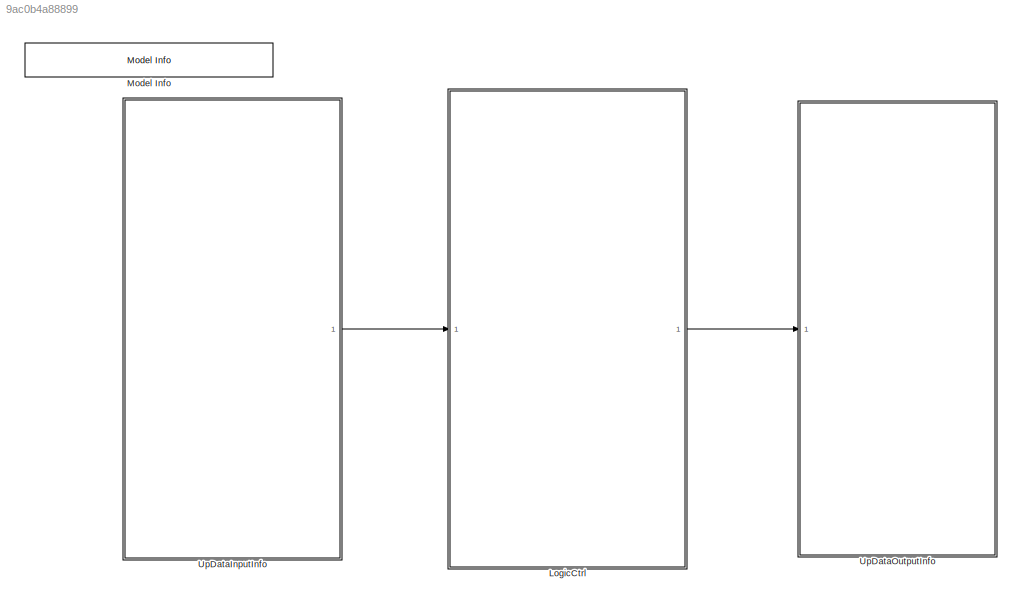
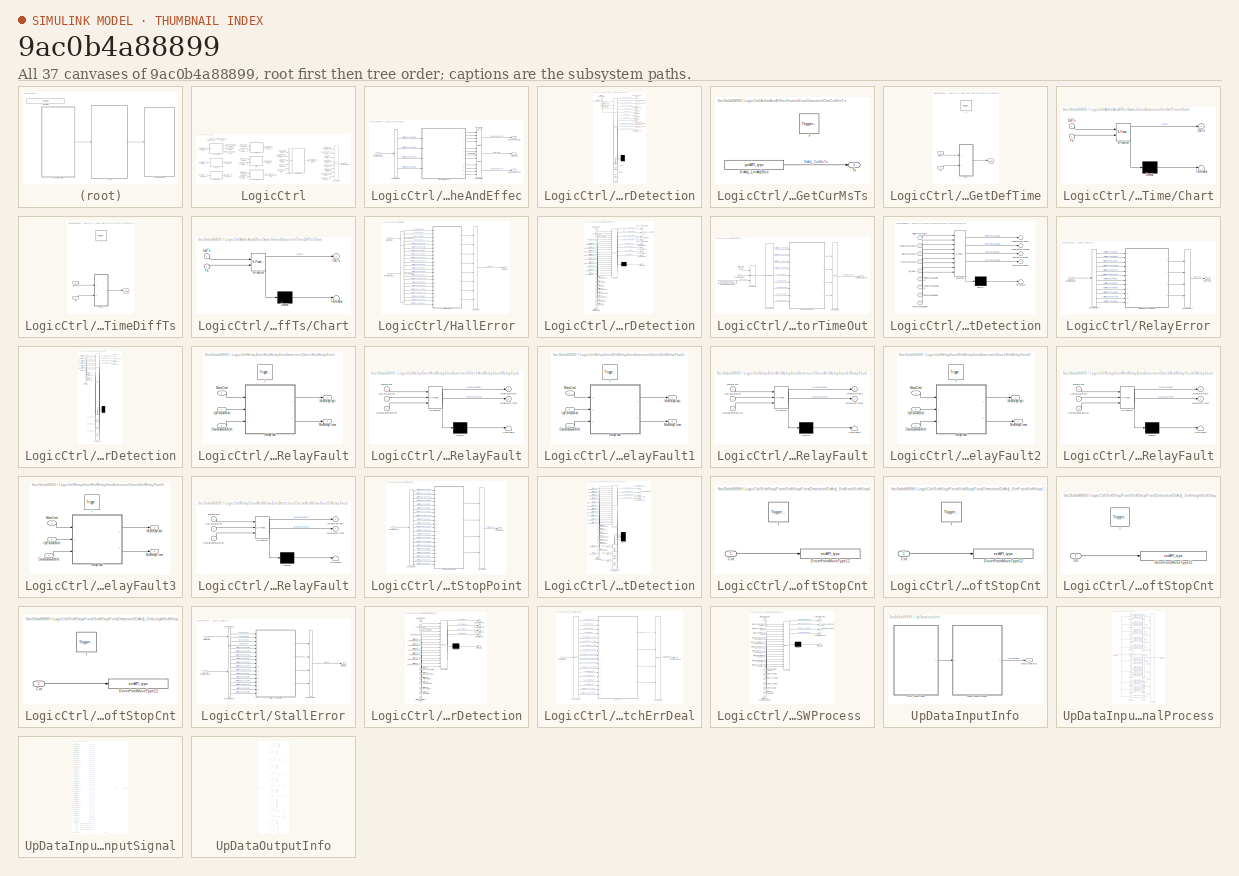
[diagram: thumbnail index - all 37 canvases of the model, root first then tree order]
MODEL slx_9ac0b4a88899
KIND model
BLOCK [SubSystem] LogicCtrl
  Ports = [1, 1]
  RequestExecContextInheritance = off
BLOCK [SubSystem] LogicCtrl/AdheAndEffec
  AttributesFormatString = %<Description>
  Description = 硬线开关粘连与有效检测
  Ports = [1, 3]
  RequestExecContextInheritance = off
BLOCK [BusCreator] LogicCtrl/AdheAndEffec/Bus Creator
  DisplayOption = bar
  InheritFromInputs = on
  Inputs = 4
  Ports = [4, 1]
BLOCK [BusCreator] LogicCtrl/AdheAndEffec/Bus Creator1
  DisplayOption = bar
  InheritFromInputs = on
  Inputs = 4
  Ports = [4, 1]
BLOCK [BusCreator] LogicCtrl/AdheAndEffec/Bus Creator2
  DisplayOption = bar
  InheritFromInputs = on
  Inputs = 4
  Ports = [4, 1]
BLOCK [BusSelector] LogicCtrl/AdheAndEffec/Bus Selector
  OutputAsBus = off
  OutputSignals = SwitchInCmd.MtrCtrlFault_PaHeightSwitch,SwitchInCmd.MtrCtrlFault_PaLengthSwitch,SwitchInCmd.MtrCtrlFault_PaBackSwitch,SwitchInCmd.MtrCtrlFault_PaFrontSwitch
  Ports = [1, 4]
BLOCK [Inport] LogicCtrl/AdheAndEffec/InputSignalBus
  IconDisplay = Port number
BLOCK [Outport] LogicCtrl/AdheAndEffec/SwAdhesionFault
  IconDisplay = Port number
BLOCK [Outport] LogicCtrl/AdheAndEffec/SwAdhesionType
  IconDisplay = Port number
  Port = 3
BLOCK [Outport] LogicCtrl/AdheAndEffec/SwitchCmd
  IconDisplay = Port number
  Port = 2
BLOCK [SubSystem] LogicCtrl/AdheAndEffec/SwitchErrorDetection
  ErrorFcn = Stateflow.Translate.translate
  PermitHierarchicalResolution = ExplicitOnly
  Ports = [4, 12]
  RequestExecContextInheritance = off
  SFBlockType = Chart
  TreatAsAtomicUnit = on
BLOCK [Demux] LogicCtrl/AdheAndEffec/SwitchErrorDetection/ Demux 
  Outputs = 3
  Ports = [1, 3]
BLOCK [S-Function] LogicCtrl/AdheAndEffec/SwitchErrorDetection/ SFunction 
  EnableBusSupport = on
  FunctionName = sf_sfun
  Parameters = CAL_ManualSwValid_90s,FALSE,TRUE
  PortCounts = [7 17]
  Ports = [7, 17]
  SFcnIsStateOwnerBlock = off
  SFunctionDeploymentMode = off
  Tag = Stateflow S-Function APPL_PaFaultDetection 8
BLOCK [Outport] LogicCtrl/AdheAndEffec/SwitchErrorDetection/BackSwAdhesionFault
  IconDisplay = Port number
  Port = 3
BLOCK [Outport] LogicCtrl/AdheAndEffec/SwitchErrorDetection/BackSwCmd
  IconDisplay = Port number
  Port = 7
BLOCK [Outport] LogicCtrl/AdheAndEffec/SwitchErrorDetection/BackSwDownAdhesionFault
  IconDisplay = Port number
  Port = 12
BLOCK [Outport] LogicCtrl/AdheAndEffec/SwitchErrorDetection/BackSwUpAdhesionFault
  IconDisplay = Port number
  Port = 11
BLOCK [Outport] LogicCtrl/AdheAndEffec/SwitchErrorDetection/FrontSwAdhesionFault
  IconDisplay = Port number
  Port = 4
BLOCK [Outport] LogicCtrl/AdheAndEffec/SwitchErrorDetection/FrontSwCmd
  IconDisplay = Port number
  Port = 8
BLOCK [SubSystem] LogicCtrl/AdheAndEffec/SwitchErrorDetection/GetCurMsTs
  Ports = [0, 1, 0, 1]
  PreDeleteFcn = Stateflow.SLINSF.SimulinkMan.removePreDeleteFcn
  RequestExecContextInheritance = off
  UndoDeleteFcn = Stateflow.SLINSF.SimulinkMan.restorePreDeleteFcn
BLOCK [Reference] LogicCtrl/AdheAndEffec/SwitchErrorDetection/GetCurMsTs/DrAdj_LenAdjSize  REF=DareLib/Dare/getAPI_type
  Ports = [0, 1]
  SourceBlock = DareLib/Dare/getAPI_type
  SourceProductName = Dare Library
  SourceType = Dare Custom
BLOCK [Outport] LogicCtrl/AdheAndEffec/SwitchErrorDetection/GetCurMsTs/Ts
  IconDisplay = Port number
BLOCK [TriggerPort] LogicCtrl/AdheAndEffec/SwitchErrorDetection/GetCurMsTs/f
  CopyFcn = Stateflow.SLINSF.SimulinkMan.removeBlockPreDeleteFcn
  Ports = []
  PreDeleteFcn = Stateflow.SLINSF.SimulinkMan.unsafePredeleteFcn
  StatesWhenEnabling = held
  TriggerType = function-call
  VariantControl = (inherit)
BLOCK [SubSystem] LogicCtrl/AdheAndEffec/SwitchErrorDetection/GetDefTime
  Ports = [2, 1, 0, 1]
  PreDeleteFcn = Stateflow.SLINSF.SimulinkMan.removePreDeleteFcn
  RequestExecContextInheritance = off
  UndoDeleteFcn = Stateflow.SLINSF.SimulinkMan.restorePreDeleteFcn
BLOCK [SubSystem] LogicCtrl/AdheAndEffec/SwitchErrorDetection/GetDefTime/Chart
  ErrorFcn = Stateflow.Translate.translate
  PermitHierarchicalResolution = ExplicitOnly
  Ports = [2, 1]
  RequestExecContextInheritance = off
  SFBlockType = Chart
  TreatAsAtomicUnit = on
BLOCK [Demux] LogicCtrl/AdheAndEffec/SwitchErrorDetection/GetDefTime/Chart/ Demux 
  Outputs = 1
  Ports = [1, 1]
BLOCK [S-Function] LogicCtrl/AdheAndEffec/SwitchErrorDetection/GetDefTime/Chart/ SFunction 
  EnableBusSupport = off
  FunctionName = sf_sfun
  PortCounts = [2 2]
  Ports = [2, 2]
  SFcnIsStateOwnerBlock = off
  SFunctionDeploymentMode = off
  Tag = Stateflow S-Function APPL_PaFaultDetection 36
BLOCK [Terminator] LogicCtrl/AdheAndEffec/SwitchErrorDetection/GetDefTime/Chart/ Terminator 
BLOCK [Inport] LogicCtrl/AdheAndEffec/SwitchErrorDetection/GetDefTime/Chart/DefTs
  IconDisplay = Port number
BLOCK [Outport] LogicCtrl/AdheAndEffec/SwitchErrorDetection/GetDefTime/Chart/OutTs
  IconDisplay = Port number
BLOCK [Inport] LogicCtrl/AdheAndEffec/SwitchErrorDetection/GetDefTime/Chart/Ts
  IconDisplay = Port number
  Port = 2
BLOCK [Inport] LogicCtrl/AdheAndEffec/SwitchErrorDetection/GetDefTime/DefTs
  IconDisplay = Port number
BLOCK [Outport] LogicCtrl/AdheAndEffec/SwitchErrorDetection/GetDefTime/OutTs
  IconDisplay = Port number
BLOCK [Inport] LogicCtrl/AdheAndEffec/SwitchErrorDetection/GetDefTime/Ts
  IconDisplay = Port number
  Port = 2
BLOCK [TriggerPort] LogicCtrl/AdheAndEffec/SwitchErrorDetection/GetDefTime/f
  CopyFcn = Stateflow.SLINSF.SimulinkMan.removeBlockPreDeleteFcn
  Ports = []
  PreDeleteFcn = Stateflow.SLINSF.SimulinkMan.unsafePredeleteFcn
  StatesWhenEnabling = held
  TriggerType = function-call
  VariantControl = (inherit)
BLOCK [Outport] LogicCtrl/AdheAndEffec/SwitchErrorDetection/HeightSwAdhesionFault
  IconDisplay = Port number
BLOCK [Outport] LogicCtrl/AdheAndEffec/SwitchErrorDetection/HeightSwCmd
  IconDisplay = Port number
  Port = 5
BLOCK [Outport] LogicCtrl/AdheAndEffec/SwitchErrorDetection/LengthSwAdhesionFault
  IconDisplay = Port number
  Port = 2
BLOCK [Outport] LogicCtrl/AdheAndEffec/SwitchErrorDetection/LengthSwCmd
  IconDisplay = Port number
  Port = 6
BLOCK [Outport] LogicCtrl/AdheAndEffec/SwitchErrorDetection/LengthSwDownAdhesionFault
  IconDisplay = Port number
  Port = 10
BLOCK [Outport] LogicCtrl/AdheAndEffec/SwitchErrorDetection/LengthSwUpAdhesionFault
  IconDisplay = Port number
  Port = 9
BLOCK [Inport] LogicCtrl/AdheAndEffec/SwitchErrorDetection/MtrCtrlFault_DRBackSwitch
  IconDisplay = Port number
  Port = 3
BLOCK [Inport] LogicCtrl/AdheAndEffec/SwitchErrorDetection/MtrCtrlFault_DRFrontSwitch
  IconDisplay = Port number
  Port = 4
BLOCK [Inport] LogicCtrl/AdheAndEffec/SwitchErrorDetection/MtrCtrlFault_DRHeightSwitch
  IconDisplay = Port number
BLOCK [Inport] LogicCtrl/AdheAndEffec/SwitchErrorDetection/MtrCtrlFault_DRLengthSwitch
  IconDisplay = Port number
  Port = 2
BLOCK [SubSystem] LogicCtrl/AdheAndEffec/SwitchErrorDetection/TimeDiffTs
  Ports = [2, 1, 0, 1]
  PreDeleteFcn = Stateflow.SLINSF.SimulinkMan.removePreDeleteFcn
  RequestExecContextInheritance = off
  UndoDeleteFcn = Stateflow.SLINSF.SimulinkMan.restorePreDeleteFcn
BLOCK [SubSystem] LogicCtrl/AdheAndEffec/SwitchErrorDetection/TimeDiffTs/Chart
  ErrorFcn = Stateflow.Translate.translate
  PermitHierarchicalResolution = ExplicitOnly
  Ports = [2, 1]
  RequestExecContextInheritance = off
  SFBlockType = Chart
  TreatAsAtomicUnit = on
BLOCK [Demux] LogicCtrl/AdheAndEffec/SwitchErrorDetection/TimeDiffTs/Chart/ Demux 
  Outputs = 1
  Ports = [1, 1]
BLOCK [S-Function] LogicCtrl/AdheAndEffec/SwitchErrorDetection/TimeDiffTs/Chart/ SFunction 
  EnableBusSupport = off
  FunctionName = sf_sfun
  PortCounts = [2 2]
  Ports = [2, 2]
  SFcnIsStateOwnerBlock = off
  SFunctionDeploymentMode = off
  Tag = Stateflow S-Function APPL_PaFaultDetection 35
BLOCK [Terminator] LogicCtrl/AdheAndEffec/SwitchErrorDetection/TimeDiffTs/Chart/ Terminator 
BLOCK [Outport] LogicCtrl/AdheAndEffec/SwitchErrorDetection/TimeDiffTs/Chart/OutTs
  IconDisplay = Port number
BLOCK [Inport] LogicCtrl/AdheAndEffec/SwitchErrorDetection/TimeDiffTs/Chart/Ts
  IconDisplay = Port number
  Port = 2
BLOCK [Inport] LogicCtrl/AdheAndEffec/SwitchErrorDetection/TimeDiffTs/Chart/lastTs
  IconDisplay = Port number
BLOCK [Outport] LogicCtrl/AdheAndEffec/SwitchErrorDetection/TimeDiffTs/OutTs
  IconDisplay = Port number
BLOCK [Inport] LogicCtrl/AdheAndEffec/SwitchErrorDetection/TimeDiffTs/Ts
  IconDisplay = Port number
  Port = 2
BLOCK [TriggerPort] LogicCtrl/AdheAndEffec/SwitchErrorDetection/TimeDiffTs/f
  CopyFcn = Stateflow.SLINSF.SimulinkMan.removeBlockPreDeleteFcn
  Ports = []
  PreDeleteFcn = Stateflow.SLINSF.SimulinkMan.unsafePredeleteFcn
  StatesWhenEnabling = held
  TriggerType = function-call
  VariantControl = (inherit)
BLOCK [Inport] LogicCtrl/AdheAndEffec/SwitchErrorDetection/TimeDiffTs/lastTs
  IconDisplay = Port number
BLOCK [BusCreator] LogicCtrl/Bus Creator6
  DisplayOption = bar
  InheritFromInputs = on
  Inputs = 8
  Ports = [8, 1]
BLOCK [BusCreator] LogicCtrl/Bus Creator7
  DisplayOption = bar
  InheritFromInputs = on
  Inputs = 5
  Ports = [5, 1]
BLOCK [From] LogicCtrl/From
  GotoTag = SwAdhesionType
BLOCK [From] LogicCtrl/From1
  GotoTag = SwitchCmd
BLOCK [From] LogicCtrl/From10
  GotoTag = HarSwitchReq
BLOCK [From] LogicCtrl/From11
  GotoTag = HallFault
BLOCK [From] LogicCtrl/From12
  GotoTag = RelayFault
BLOCK [From] LogicCtrl/From13
  GotoTag = SoftStopFault
BLOCK [From] LogicCtrl/From14
  GotoTag = SwitchCmd
BLOCK [From] LogicCtrl/From15
  GotoTag = SwAdhesionFault
BLOCK [From] LogicCtrl/From16
  GotoTag = StallFault
BLOCK [From] LogicCtrl/From17
  GotoTag = RelayFault
BLOCK [From] LogicCtrl/From18
  GotoTag = SwitchCmd
BLOCK [From] LogicCtrl/From19
  GotoTag = InputSignalBus
BLOCK [From] LogicCtrl/From2
  GotoTag = InputSignalBus
BLOCK [From] LogicCtrl/From20
  GotoTag = MotorTimeOutFault
BLOCK [From] LogicCtrl/From21
  GotoTag = InputSignalBus
BLOCK [From] LogicCtrl/From3
  GotoTag = SwitchCmd
BLOCK [From] LogicCtrl/From4
  GotoTag = InputSignalBus
BLOCK [From] LogicCtrl/From5
  GotoTag = InputSignalBus
BLOCK [From] LogicCtrl/From6
  GotoTag = InputSignalBus
BLOCK [From] LogicCtrl/From7
  GotoTag = InputSignalBus
BLOCK [From] LogicCtrl/From8
  GotoTag = StallFault
BLOCK [From] LogicCtrl/From9
  GotoTag = SwAdhesionFault
BLOCK [Goto] LogicCtrl/Goto
  GotoTag = SwAdhesionFault
BLOCK [Goto] LogicCtrl/Goto1
  GotoTag = InputSignalBus
BLOCK [Goto] LogicCtrl/Goto12
  GotoTag = SwitchCmd
BLOCK [Goto] LogicCtrl/Goto13
  GotoTag = StallFault
BLOCK [Goto] LogicCtrl/Goto14
  GotoTag = HarSwitchReq
BLOCK [Goto] LogicCtrl/Goto2
  GotoTag = MotorTimeOutFault
BLOCK [Goto] LogicCtrl/Goto3
  GotoTag = SwAdhesionType
BLOCK [Goto] LogicCtrl/Goto5
  GotoTag = HallFault
BLOCK [Goto] LogicCtrl/Goto6
  GotoTag = RelayFault
BLOCK [Goto] LogicCtrl/Goto7
  GotoTag = SoftStopFault
BLOCK [SubSystem] LogicCtrl/HallError
  AttributesFormatString = %<Description>
  Description = 电机霍尔故障检测
  Ports = [2, 1]
  RequestExecContextInheritance = off
BLOCK [BusCreator] LogicCtrl/HallError/Bus Creator3
  DisplayOption = bar
  InheritFromInputs = on
  Inputs = 8
  Ports = [8, 1]
BLOCK [BusSelector] LogicCtrl/HallError/Bus Selector4
  OutputAsBus = off
  OutputSignals = HeightSwCmd,LengthSwCmd,BackSwCmd,FrontSwCmd
  Ports = [1, 4]
BLOCK [BusSelector] LogicCtrl/HallError/Bus Selector5
  OutputAsBus = off
  OutputSignals = RelayVolt.MtrCtrlFault_PaHeightUpVolt,RelayVolt.MtrCtrlFault_PaHeightDownVolt,RelayVolt.MtrCtrlFault_PaLengthForwardVolt,RelayVolt.MtrCtrlFault_PaLengthBackwardVolt,RelayVolt.MtrCtrlFault_PaBackForwardVolt,RelayVolt.MtrCtrlFault_PaBackBackwardVolt,RelayVolt.MtrCtrlFault_PaFrontUpVolt,RelayVolt.MtrCtrlFault_PaFrontDownVolt,HallCnt.MtrCtrlFault_PaHeightHallCnt,HallCnt.MtrCtrlFault_PaLengthHallCnt,Ha...<+285ch>
  Ports = [1, 18]
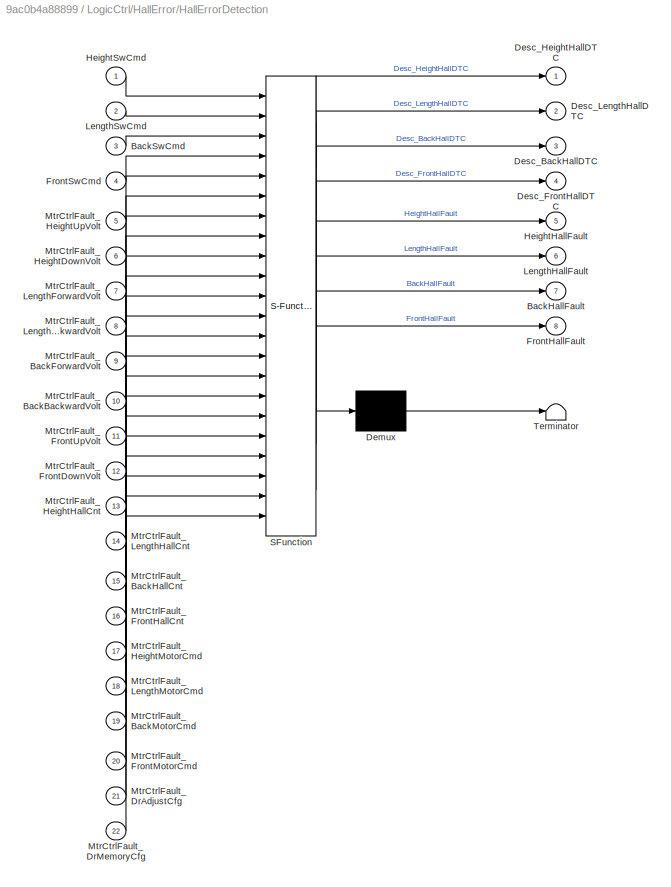
BLOCK [SubSystem] LogicCtrl/HallError/HallErrorDetection
  ErrorFcn = Stateflow.Translate.translate
  PermitHierarchicalResolution = ExplicitOnly
  Ports = [22, 8]
  RequestExecContextInheritance = off
  SFBlockType = Chart
  TreatAsAtomicUnit = on
BLOCK [Demux] LogicCtrl/HallError/HallErrorDetection/ Demux 
  Outputs = 1
  Ports = [1, 1]
BLOCK [S-Function] LogicCtrl/HallError/HallErrorDetection/ SFunction 
  EnableBusSupport = on
  FunctionName = sf_sfun
  Parameters = CAL_MotorHallInvalid_2s,FALSE,TRUE
  PortCounts = [22 9]
  Ports = [22, 9]
  SFcnIsStateOwnerBlock = off
  SFunctionDeploymentMode = off
  Tag = Stateflow S-Function APPL_PaFaultDetection 9
BLOCK [Terminator] LogicCtrl/HallError/HallErrorDetection/ Terminator 
BLOCK [Outport] LogicCtrl/HallError/HallErrorDetection/BackHallFault
  IconDisplay = Port number
  Port = 7
BLOCK [Inport] LogicCtrl/HallError/HallErrorDetection/BackSwCmd
  IconDisplay = Port number
  Port = 3
BLOCK [Outport] LogicCtrl/HallError/HallErrorDetection/Desc_BackHallDTC
  IconDisplay = Port number
  Port = 3
BLOCK [Outport] LogicCtrl/HallError/HallErrorDetection/Desc_FrontHallDTC
  IconDisplay = Port number
  Port = 4
BLOCK [Outport] LogicCtrl/HallError/HallErrorDetection/Desc_HeightHallDTC
  IconDisplay = Port number
BLOCK [Outport] LogicCtrl/HallError/HallErrorDetection/Desc_LengthHallDTC
  IconDisplay = Port number
  Port = 2
BLOCK [Outport] LogicCtrl/HallError/HallErrorDetection/FrontHallFault
  IconDisplay = Port number
  Port = 8
BLOCK [Inport] LogicCtrl/HallError/HallErrorDetection/FrontSwCmd
  IconDisplay = Port number
  Port = 4
BLOCK [Outport] LogicCtrl/HallError/HallErrorDetection/HeightHallFault
  IconDisplay = Port number
  Port = 5
BLOCK [Inport] LogicCtrl/HallError/HallErrorDetection/HeightSwCmd
  IconDisplay = Port number
BLOCK [Outport] LogicCtrl/HallError/HallErrorDetection/LengthHallFault
  IconDisplay = Port number
  Port = 6
BLOCK [Inport] LogicCtrl/HallError/HallErrorDetection/LengthSwCmd
  IconDisplay = Port number
  Port = 2
BLOCK [Inport] LogicCtrl/HallError/HallErrorDetection/MtrCtrlFault_BackBackwardVolt
  IconDisplay = Port number
  Port = 10
BLOCK [Inport] LogicCtrl/HallError/HallErrorDetection/MtrCtrlFault_BackForwardVolt
  IconDisplay = Port number
  Port = 9
BLOCK [Inport] LogicCtrl/HallError/HallErrorDetection/MtrCtrlFault_BackHallCnt
  IconDisplay = Port number
  Port = 15
BLOCK [Inport] LogicCtrl/HallError/HallErrorDetection/MtrCtrlFault_BackMotorCmd
  IconDisplay = Port number
  Port = 19
BLOCK [Inport] LogicCtrl/HallError/HallErrorDetection/MtrCtrlFault_DrAdjustCfg
  IconDisplay = Port number
  Port = 21
BLOCK [Inport] LogicCtrl/HallError/HallErrorDetection/MtrCtrlFault_DrMemoryCfg
  IconDisplay = Port number
  Port = 22
BLOCK [Inport] LogicCtrl/HallError/HallErrorDetection/MtrCtrlFault_FrontDownVolt
  IconDisplay = Port number
  Port = 12
BLOCK [Inport] LogicCtrl/HallError/HallErrorDetection/MtrCtrlFault_FrontHallCnt
  IconDisplay = Port number
  Port = 16
BLOCK [Inport] LogicCtrl/HallError/HallErrorDetection/MtrCtrlFault_FrontMotorCmd
  IconDisplay = Port number
  Port = 20
BLOCK [Inport] LogicCtrl/HallError/HallErrorDetection/MtrCtrlFault_FrontUpVolt
  IconDisplay = Port number
  Port = 11
BLOCK [Inport] LogicCtrl/HallError/HallErrorDetection/MtrCtrlFault_HeightDownVolt
  IconDisplay = Port number
  Port = 6
BLOCK [Inport] LogicCtrl/HallError/HallErrorDetection/MtrCtrlFault_HeightHallCnt
  IconDisplay = Port number
  Port = 13
BLOCK [Inport] LogicCtrl/HallError/HallErrorDetection/MtrCtrlFault_HeightMotorCmd
  IconDisplay = Port number
  Port = 17
BLOCK [Inport] LogicCtrl/HallError/HallErrorDetection/MtrCtrlFault_HeightUpVolt
  IconDisplay = Port number
  Port = 5
BLOCK [Inport] LogicCtrl/HallError/HallErrorDetection/MtrCtrlFault_LengthBackwardVolt
  IconDisplay = Port number
  Port = 8
BLOCK [Inport] LogicCtrl/HallError/HallErrorDetection/MtrCtrlFault_LengthForwardVolt
  IconDisplay = Port number
  Port = 7
BLOCK [Inport] LogicCtrl/HallError/HallErrorDetection/MtrCtrlFault_LengthHallCnt
  IconDisplay = Port number
  Port = 14
BLOCK [Inport] LogicCtrl/HallError/HallErrorDetection/MtrCtrlFault_LengthMotorCmd
  IconDisplay = Port number
  Port = 18
BLOCK [Outport] LogicCtrl/HallError/HallFault
  IconDisplay = Port number
BLOCK [Inport] LogicCtrl/HallError/InputSignalBus
  IconDisplay = Port number
  Port = 2
BLOCK [Inport] LogicCtrl/HallError/SwitchCmd
  IconDisplay = Port number
BLOCK [Inport] LogicCtrl/InputSignalBus
  IconDisplay = Port number
BLOCK [SubSystem] LogicCtrl/MotorTimeOut
  AttributesFormatString = %<Description>
  Description = 电机运行超时检测
  Ports = [2, 1]
  RequestExecContextInheritance = off
BLOCK [BusCreator] LogicCtrl/MotorTimeOut/Bus Creator
  DisplayOption = bar
  InheritFromInputs = on
  Inputs = 3
  Ports = [3, 1]
BLOCK [BusCreator] LogicCtrl/MotorTimeOut/Bus Creator1
  DisplayOption = bar
  InheritFromInputs = on
  Inputs = 4
  Ports = [4, 1]
BLOCK [BusSelector] LogicCtrl/MotorTimeOut/Bus Selector
  OutputAsBus = off
  OutputSignals = InputSignalBus.MotorCmd.MtrCtrlFault_PaHeightMotorCmd,InputSignalBus.MotorCmd.MtrCtrlFault_PaLengthMotorCmd,InputSignalBus.MotorCmd.MtrCtrlFault_PaBackMotorCmd,InputSignalBus.MotorCmd.MtrCtrlFault_PaFrontMotorCmd,EN_NULL,SwitchCmd.HeightSwCmd,SwitchCmd.LengthSwCmd,SwitchCmd.BackSwCmd,SwitchCmd.FrontSwCmd
  Ports = [1, 9]
BLOCK [Reference] LogicCtrl/MotorTimeOut/Enumerated Constant  REF=simulink/Sources/Enumerated
Constant
  Ports = [0, 1]
  SourceBlock = simulink/Sources/Enumerated\nConstant
  SourceProductBaseCode = SL
  SourceProductName = Simulink
  SourceType = Enumerated Constant
BLOCK [Inport] LogicCtrl/MotorTimeOut/InputSignalBus
  IconDisplay = Port number
  Port = 2
BLOCK [SubSystem] LogicCtrl/MotorTimeOut/MotorTimeOutDetection
  ErrorFcn = Stateflow.Translate.translate
  PermitHierarchicalResolution = ExplicitOnly
  Ports = [9, 4]
  RequestExecContextInheritance = off
  SFBlockType = Chart
  TreatAsAtomicUnit = on
BLOCK [Demux] LogicCtrl/MotorTimeOut/MotorTimeOutDetection/ Demux 
  Outputs = 1
  Ports = [1, 1]
BLOCK [S-Function] LogicCtrl/MotorTimeOut/MotorTimeOutDetection/ SFunction 
  EnableBusSupport = on
  FunctionName = sf_sfun
  Parameters = CAL_MotorMaxRunTime_60s,FALSE,TRUE
  PortCounts = [9 5]
  Ports = [9, 5]
  SFcnIsStateOwnerBlock = off
  SFunctionDeploymentMode = off
  Tag = Stateflow S-Function APPL_PaFaultDetection 16
BLOCK [Terminator] LogicCtrl/MotorTimeOut/MotorTimeOutDetection/ Terminator 
BLOCK [Inport] LogicCtrl/MotorTimeOut/MotorTimeOutDetection/BackManualAdjSw
  IconDisplay = Port number
  Port = 8
BLOCK [Inport] LogicCtrl/MotorTimeOut/MotorTimeOutDetection/BackMotorCmd
  IconDisplay = Port number
  Port = 3
BLOCK [Outport] LogicCtrl/MotorTimeOut/MotorTimeOutDetection/BackTimeOutFlag
  IconDisplay = Port number
  Port = 3
BLOCK [Inport] LogicCtrl/MotorTimeOut/MotorTimeOutDetection/EN_NULL
  IconDisplay = Port number
  Port = 5
BLOCK [Inport] LogicCtrl/MotorTimeOut/MotorTimeOutDetection/FrontManualAdjSw
  IconDisplay = Port number
  Port = 9
BLOCK [Inport] LogicCtrl/MotorTimeOut/MotorTimeOutDetection/FrontMotorCmd
  IconDisplay = Port number
  Port = 4
BLOCK [Outport] LogicCtrl/MotorTimeOut/MotorTimeOutDetection/FrontTimeOutFlag
  IconDisplay = Port number
  Port = 4
BLOCK [Inport] LogicCtrl/MotorTimeOut/MotorTimeOutDetection/HeightManualAdjSw
  IconDisplay = Port number
  Port = 6
BLOCK [Inport] LogicCtrl/MotorTimeOut/MotorTimeOutDetection/HeightMotorCmd
  IconDisplay = Port number
BLOCK [Outport] LogicCtrl/MotorTimeOut/MotorTimeOutDetection/HeightTimeOutFlag
  IconDisplay = Port number
BLOCK [Inport] LogicCtrl/MotorTimeOut/MotorTimeOutDetection/LengthManualAdjSw
  IconDisplay = Port number
  Port = 7
BLOCK [Inport] LogicCtrl/MotorTimeOut/MotorTimeOutDetection/LengthMotorCmd
  IconDisplay = Port number
  Port = 2
BLOCK [Outport] LogicCtrl/MotorTimeOut/MotorTimeOutDetection/LengthTimeOutFlag
  IconDisplay = Port number
  Port = 2
BLOCK [Outport] LogicCtrl/MotorTimeOut/MotorTimeOutFault
  IconDisplay = Port number
BLOCK [Inport] LogicCtrl/MotorTimeOut/SwitchCmd
  IconDisplay = Port number
BLOCK [Outport] LogicCtrl/OutputSignalBus
  IconDisplay = Port number
BLOCK [SubSystem] LogicCtrl/RelayError
  AttributesFormatString = %<Description>
  Description = 继电器粘连故障检测
  Ports = [1, 1]
  RequestExecContextInheritance = off
BLOCK [BusCreator] LogicCtrl/RelayError/Bus Creator4
  DisplayOption = bar
  InheritFromInputs = on
  Inputs = 4
  Ports = [4, 1]
BLOCK [BusSelector] LogicCtrl/RelayError/Bus Selector6
  OutputAsBus = off
  OutputSignals = RelayVolt.MtrCtrlFault_PaHeightUpVolt,RelayVolt.MtrCtrlFault_PaHeightDownVolt,RelayVolt.MtrCtrlFault_PaLengthForwardVolt,RelayVolt.MtrCtrlFault_PaLengthBackwardVolt,RelayVolt.MtrCtrlFault_PaBackForwardVolt,RelayVolt.MtrCtrlFault_PaBackBackwardVolt,RelayVolt.MtrCtrlFault_PaFrontUpVolt,RelayVolt.MtrCtrlFault_PaFrontDownVolt,MotorCmd.MtrCtrlFault_PaHeightMotorCmd,MotorCmd.MtrCtrlFault_PaLengthMotorCm...<+76ch>
  Ports = [1, 12]
BLOCK [Inport] LogicCtrl/RelayError/InputSignalBus
  IconDisplay = Port number
BLOCK [SubSystem] LogicCtrl/RelayError/MidRelayErrorDetection
  ErrorFcn = Stateflow.Translate.translate
  PermitHierarchicalResolution = ExplicitOnly
  Ports = [12, 4]
  RequestExecContextInheritance = off
  SFBlockType = Chart
  TreatAsAtomicUnit = on
BLOCK [Demux] LogicCtrl/RelayError/MidRelayErrorDetection/ Demux 
  Ports = [1, 4]
BLOCK [S-Function] LogicCtrl/RelayError/MidRelayErrorDetection/ SFunction 
  EnableBusSupport = on
  FunctionName = sf_sfun
  PortCounts = [20 17]
  Ports = [20, 17]
  SFcnIsStateOwnerBlock = off
  SFunctionDeploymentMode = off
  Tag = Stateflow S-Function APPL_PaFaultDetection 3
BLOCK [Outport] LogicCtrl/RelayError/MidRelayErrorDetection/BackMidRelayFault
  IconDisplay = Port number
  Port = 3
BLOCK [SubSystem] LogicCtrl/RelayError/MidRelayErrorDetection/CheckMidRelayFault
  Ports = [3, 2, 0, 1]
  PreDeleteFcn = Stateflow.SLINSF.SimulinkMan.removePreDeleteFcn
  RequestExecContextInheritance = off
  UndoDeleteFcn = Stateflow.SLINSF.SimulinkMan.restorePreDeleteFcn
BLOCK [Inport] LogicCtrl/RelayError/MidRelayErrorDetection/CheckMidRelayFault/DownBackwardVolt
  IconDisplay = Port number
  OutDataTypeStr = uint8
  Port = 3
  PortDimensions = 1
  SignalType = real
  VarSizeSig = No
BLOCK [Outport] LogicCtrl/RelayError/MidRelayErrorDetection/CheckMidRelayFault/MidRelayFault
  IconDisplay = Port number
  OutDataTypeStr = uint8
BLOCK [Outport] LogicCtrl/RelayError/MidRelayErrorDetection/CheckMidRelayFault/MidRelayTimer
  IconDisplay = Port number
  OutDataTypeStr = uint8
  Port = 2
BLOCK [Inport] LogicCtrl/RelayError/MidRelayErrorDetection/CheckMidRelayFault/MotorCmd
  IconDisplay = Port number
  OutDataTypeStr = uint8
  PortDimensions = 1
  SignalType = real
  VarSizeSig = No
BLOCK [SubSystem] LogicCtrl/RelayError/MidRelayErrorDetection/CheckMidRelayFault/RelayFault
  ErrorFcn = Stateflow.Translate.translate
  PermitHierarchicalResolution = ExplicitOnly
  Ports = [3, 2]
  RequestExecContextInheritance = off
  SFBlockType = Chart
  TreatAsAtomicUnit = on
BLOCK [Demux] LogicCtrl/RelayError/MidRelayErrorDetection/CheckMidRelayFault/RelayFault/ Demux 
  Outputs = 1
  Ports = [1, 1]
BLOCK [S-Function] LogicCtrl/RelayError/MidRelayErrorDetection/CheckMidRelayFault/RelayFault/ SFunction 
  EnableBusSupport = off
  FunctionName = sf_sfun
  Parameters = CAL_MotorRelayErr_2s,D_Relay_DownBackFault,D_Relay_UpFrontFault,FALSE,TRUE
  PortCounts = [3 3]
  Ports = [3, 3]
  SFcnIsStateOwnerBlock = off
  SFunctionDeploymentMode = off
  Tag = Stateflow S-Function APPL_PaFaultDetection 4
BLOCK [Terminator] LogicCtrl/RelayError/MidRelayErrorDetection/CheckMidRelayFault/RelayFault/ Terminator 
BLOCK [Inport] LogicCtrl/RelayError/MidRelayErrorDetection/CheckMidRelayFault/RelayFault/DownBackwardVolt
  IconDisplay = Port number
  Port = 3
BLOCK [Outport] LogicCtrl/RelayError/MidRelayErrorDetection/CheckMidRelayFault/RelayFault/MidRelayFault
  IconDisplay = Port number
BLOCK [Outport] LogicCtrl/RelayError/MidRelayErrorDetection/CheckMidRelayFault/RelayFault/MidRelayTimer
  IconDisplay = Port number
  Port = 2
BLOCK [Inport] LogicCtrl/RelayError/MidRelayErrorDetection/CheckMidRelayFault/RelayFault/MotorCmd
  IconDisplay = Port number
BLOCK [Inport] LogicCtrl/RelayError/MidRelayErrorDetection/CheckMidRelayFault/RelayFault/UpForwardVolt
  IconDisplay = Port number
  Port = 2
BLOCK [Inport] LogicCtrl/RelayError/MidRelayErrorDetection/CheckMidRelayFault/UpForwardVolt
  IconDisplay = Port number
  OutDataTypeStr = uint8
  Port = 2
  PortDimensions = 1
  SignalType = real
  VarSizeSig = No
BLOCK [TriggerPort] LogicCtrl/RelayError/MidRelayErrorDetection/CheckMidRelayFault/f
  CopyFcn = Stateflow.SLINSF.SimulinkMan.removeBlockPreDeleteFcn
  Ports = []
  PreDeleteFcn = Stateflow.SLINSF.SimulinkMan.unsafePredeleteFcn
  StatesWhenEnabling = held
  TriggerType = function-call
  VariantControl = (inherit)
BLOCK [SubSystem] LogicCtrl/RelayError/MidRelayErrorDetection/CheckMidRelayFault1
  Ports = [3, 2, 0, 1]
  PreDeleteFcn = Stateflow.SLINSF.SimulinkMan.removePreDeleteFcn
  RequestExecContextInheritance = off
  UndoDeleteFcn = Stateflow.SLINSF.SimulinkMan.restorePreDeleteFcn
BLOCK [Inport] LogicCtrl/RelayError/MidRelayErrorDetection/CheckMidRelayFault1/DownBackwardVolt
  IconDisplay = Port number
  OutDataTypeStr = uint8
  Port = 3
  PortDimensions = 1
  SignalType = real
  VarSizeSig = No
BLOCK [Outport] LogicCtrl/RelayError/MidRelayErrorDetection/CheckMidRelayFault1/MidRelayFault
  IconDisplay = Port number
  OutDataTypeStr = uint8
BLOCK [Outport] LogicCtrl/RelayError/MidRelayErrorDetection/CheckMidRelayFault1/MidRelayTimer
  IconDisplay = Port number
  OutDataTypeStr = uint8
  Port = 2
BLOCK [Inport] LogicCtrl/RelayError/MidRelayErrorDetection/CheckMidRelayFault1/MotorCmd
  IconDisplay = Port number
  OutDataTypeStr = uint8
  PortDimensions = 1
  SignalType = real
  VarSizeSig = No
BLOCK [SubSystem] LogicCtrl/RelayError/MidRelayErrorDetection/CheckMidRelayFault1/RelayFault
  ErrorFcn = Stateflow.Translate.translate
  PermitHierarchicalResolution = ExplicitOnly
  Ports = [3, 2]
  RequestExecContextInheritance = off
  SFBlockType = Chart
  TreatAsAtomicUnit = on
BLOCK [Demux] LogicCtrl/RelayError/MidRelayErrorDetection/CheckMidRelayFault1/RelayFault/ Demux 
  Outputs = 1
  Ports = [1, 1]
BLOCK [S-Function] LogicCtrl/RelayError/MidRelayErrorDetection/CheckMidRelayFault1/RelayFault/ SFunction 
  EnableBusSupport = off
  FunctionName = sf_sfun
  Parameters = CAL_MotorRelayErr_2s,D_Relay_DownBackFault,D_Relay_UpFrontFault,FALSE,TRUE
  PortCounts = [3 3]
  Ports = [3, 3]
  SFcnIsStateOwnerBlock = off
  SFunctionDeploymentMode = off
  Tag = Stateflow S-Function APPL_PaFaultDetection 13
BLOCK [Terminator] LogicCtrl/RelayError/MidRelayErrorDetection/CheckMidRelayFault1/RelayFault/ Terminator 
BLOCK [Inport] LogicCtrl/RelayError/MidRelayErrorDetection/CheckMidRelayFault1/RelayFault/DownBackwardVolt
  IconDisplay = Port number
  Port = 3
BLOCK [Outport] LogicCtrl/RelayError/MidRelayErrorDetection/CheckMidRelayFault1/RelayFault/MidRelayFault
  IconDisplay = Port number
BLOCK [Outport] LogicCtrl/RelayError/MidRelayErrorDetection/CheckMidRelayFault1/RelayFault/MidRelayTimer
  IconDisplay = Port number
  Port = 2
BLOCK [Inport] LogicCtrl/RelayError/MidRelayErrorDetection/CheckMidRelayFault1/RelayFault/MotorCmd
  IconDisplay = Port number
BLOCK [Inport] LogicCtrl/RelayError/MidRelayErrorDetection/CheckMidRelayFault1/RelayFault/UpForwardVolt
  IconDisplay = Port number
  Port = 2
BLOCK [Inport] LogicCtrl/RelayError/MidRelayErrorDetection/CheckMidRelayFault1/UpForwardVolt
  IconDisplay = Port number
  OutDataTypeStr = uint8
  Port = 2
  PortDimensions = 1
  SignalType = real
  VarSizeSig = No
BLOCK [TriggerPort] LogicCtrl/RelayError/MidRelayErrorDetection/CheckMidRelayFault1/f
  CopyFcn = Stateflow.SLINSF.SimulinkMan.removeBlockPreDeleteFcn
  Ports = []
  PreDeleteFcn = Stateflow.SLINSF.SimulinkMan.unsafePredeleteFcn
  StatesWhenEnabling = held
  TriggerType = function-call
  VariantControl = (inherit)
BLOCK [SubSystem] LogicCtrl/RelayError/MidRelayErrorDetection/CheckMidRelayFault2
  Ports = [3, 2, 0, 1]
  PreDeleteFcn = Stateflow.SLINSF.SimulinkMan.removePreDeleteFcn
  RequestExecContextInheritance = off
  UndoDeleteFcn = Stateflow.SLINSF.SimulinkMan.restorePreDeleteFcn
BLOCK [Inport] LogicCtrl/RelayError/MidRelayErrorDetection/CheckMidRelayFault2/DownBackwardVolt
  IconDisplay = Port number
  OutDataTypeStr = uint8
  Port = 3
  PortDimensions = 1
  SignalType = real
  VarSizeSig = No
BLOCK [Outport] LogicCtrl/RelayError/MidRelayErrorDetection/CheckMidRelayFault2/MidRelayFault
  IconDisplay = Port number
  OutDataTypeStr = uint8
BLOCK [Outport] LogicCtrl/RelayError/MidRelayErrorDetection/CheckMidRelayFault2/MidRelayTimer
  IconDisplay = Port number
  OutDataTypeStr = uint8
  Port = 2
BLOCK [Inport] LogicCtrl/RelayError/MidRelayErrorDetection/CheckMidRelayFault2/MotorCmd
  IconDisplay = Port number
  OutDataTypeStr = uint8
  PortDimensions = 1
  SignalType = real
  VarSizeSig = No
BLOCK [SubSystem] LogicCtrl/RelayError/MidRelayErrorDetection/CheckMidRelayFault2/RelayFault
  ErrorFcn = Stateflow.Translate.translate
  PermitHierarchicalResolution = ExplicitOnly
  Ports = [3, 2]
  RequestExecContextInheritance = off
  SFBlockType = Chart
  TreatAsAtomicUnit = on
BLOCK [Demux] LogicCtrl/RelayError/MidRelayErrorDetection/CheckMidRelayFault2/RelayFault/ Demux 
  Outputs = 1
  Ports = [1, 1]
BLOCK [S-Function] LogicCtrl/RelayError/MidRelayErrorDetection/CheckMidRelayFault2/RelayFault/ SFunction 
  EnableBusSupport = off
  FunctionName = sf_sfun
  Parameters = CAL_MotorRelayErr_2s,D_Relay_DownBackFault,D_Relay_UpFrontFault,FALSE,TRUE
  PortCounts = [3 3]
  Ports = [3, 3]
  SFcnIsStateOwnerBlock = off
  SFunctionDeploymentMode = off
  Tag = Stateflow S-Function APPL_PaFaultDetection 14
BLOCK [Terminator] LogicCtrl/RelayError/MidRelayErrorDetection/CheckMidRelayFault2/RelayFault/ Terminator 
BLOCK [Inport] LogicCtrl/RelayError/MidRelayErrorDetection/CheckMidRelayFault2/RelayFault/DownBackwardVolt
  IconDisplay = Port number
  Port = 3
BLOCK [Outport] LogicCtrl/RelayError/MidRelayErrorDetection/CheckMidRelayFault2/RelayFault/MidRelayFault
  IconDisplay = Port number
BLOCK [Outport] LogicCtrl/RelayError/MidRelayErrorDetection/CheckMidRelayFault2/RelayFault/MidRelayTimer
  IconDisplay = Port number
  Port = 2
BLOCK [Inport] LogicCtrl/RelayError/MidRelayErrorDetection/CheckMidRelayFault2/RelayFault/MotorCmd
  IconDisplay = Port number
BLOCK [Inport] LogicCtrl/RelayError/MidRelayErrorDetection/CheckMidRelayFault2/RelayFault/UpForwardVolt
  IconDisplay = Port number
  Port = 2
BLOCK [Inport] LogicCtrl/RelayError/MidRelayErrorDetection/CheckMidRelayFault2/UpForwardVolt
  IconDisplay = Port number
  OutDataTypeStr = uint8
  Port = 2
  PortDimensions = 1
  SignalType = real
  VarSizeSig = No
BLOCK [TriggerPort] LogicCtrl/RelayError/MidRelayErrorDetection/CheckMidRelayFault2/f
  CopyFcn = Stateflow.SLINSF.SimulinkMan.removeBlockPreDeleteFcn
  Ports = []
  PreDeleteFcn = Stateflow.SLINSF.SimulinkMan.unsafePredeleteFcn
  StatesWhenEnabling = held
  TriggerType = function-call
  VariantControl = (inherit)
BLOCK [SubSystem] LogicCtrl/RelayError/MidRelayErrorDetection/CheckMidRelayFault3
  Ports = [3, 2, 0, 1]
  PreDeleteFcn = Stateflow.SLINSF.SimulinkMan.removePreDeleteFcn
  RequestExecContextInheritance = off
  UndoDeleteFcn = Stateflow.SLINSF.SimulinkMan.restorePreDeleteFcn
BLOCK [Inport] LogicCtrl/RelayError/MidRelayErrorDetection/CheckMidRelayFault3/DownBackwardVolt
  IconDisplay = Port number
  OutDataTypeStr = uint8
  Port = 3
  PortDimensions = 1
  SignalType = real
  VarSizeSig = No
BLOCK [Outport] LogicCtrl/RelayError/MidRelayErrorDetection/CheckMidRelayFault3/MidRelayFault
  IconDisplay = Port number
  OutDataTypeStr = uint8
BLOCK [Outport] LogicCtrl/RelayError/MidRelayErrorDetection/CheckMidRelayFault3/MidRelayTimer
  IconDisplay = Port number
  OutDataTypeStr = uint8
  Port = 2
BLOCK [Inport] LogicCtrl/RelayError/MidRelayErrorDetection/CheckMidRelayFault3/MotorCmd
  IconDisplay = Port number
  OutDataTypeStr = uint8
  PortDimensions = 1
  SignalType = real
  VarSizeSig = No
BLOCK [SubSystem] LogicCtrl/RelayError/MidRelayErrorDetection/CheckMidRelayFault3/RelayFault
  ErrorFcn = Stateflow.Translate.translate
  PermitHierarchicalResolution = ExplicitOnly
  Ports = [3, 2]
  RequestExecContextInheritance = off
  SFBlockType = Chart
  TreatAsAtomicUnit = on
BLOCK [Demux] LogicCtrl/RelayError/MidRelayErrorDetection/CheckMidRelayFault3/RelayFault/ Demux 
  Outputs = 1
  Ports = [1, 1]
BLOCK [S-Function] LogicCtrl/RelayError/MidRelayErrorDetection/CheckMidRelayFault3/RelayFault/ SFunction 
  EnableBusSupport = off
  FunctionName = sf_sfun
  Parameters = CAL_MotorRelayErr_2s,D_Relay_DownBackFault,D_Relay_UpFrontFault,FALSE,TRUE
  PortCounts = [3 3]
  Ports = [3, 3]
  SFcnIsStateOwnerBlock = off
  SFunctionDeploymentMode = off
  Tag = Stateflow S-Function APPL_PaFaultDetection 15
BLOCK [Terminator] LogicCtrl/RelayError/MidRelayErrorDetection/CheckMidRelayFault3/RelayFault/ Terminator 
BLOCK [Inport] LogicCtrl/RelayError/MidRelayErrorDetection/CheckMidRelayFault3/RelayFault/DownBackwardVolt
  IconDisplay = Port number
  Port = 3
BLOCK [Outport] LogicCtrl/RelayError/MidRelayErrorDetection/CheckMidRelayFault3/RelayFault/MidRelayFault
  IconDisplay = Port number
BLOCK [Outport] LogicCtrl/RelayError/MidRelayErrorDetection/CheckMidRelayFault3/RelayFault/MidRelayTimer
  IconDisplay = Port number
  Port = 2
BLOCK [Inport] LogicCtrl/RelayError/MidRelayErrorDetection/CheckMidRelayFault3/RelayFault/MotorCmd
  IconDisplay = Port number
BLOCK [Inport] LogicCtrl/RelayError/MidRelayErrorDetection/CheckMidRelayFault3/RelayFault/UpForwardVolt
  IconDisplay = Port number
  Port = 2
BLOCK [Inport] LogicCtrl/RelayError/MidRelayErrorDetection/CheckMidRelayFault3/UpForwardVolt
  IconDisplay = Port number
  OutDataTypeStr = uint8
  Port = 2
  PortDimensions = 1
  SignalType = real
  VarSizeSig = No
BLOCK [TriggerPort] LogicCtrl/RelayError/MidRelayErrorDetection/CheckMidRelayFault3/f
  CopyFcn = Stateflow.SLINSF.SimulinkMan.removeBlockPreDeleteFcn
  Ports = []
  PreDeleteFcn = Stateflow.SLINSF.SimulinkMan.unsafePredeleteFcn
  StatesWhenEnabling = held
  TriggerType = function-call
  VariantControl = (inherit)
BLOCK [Outport] LogicCtrl/RelayError/MidRelayErrorDetection/FrontMidRelayFault
  IconDisplay = Port number
  Port = 4
BLOCK [Outport] LogicCtrl/RelayError/MidRelayErrorDetection/HeightMidRelayFault
  IconDisplay = Port number
BLOCK [Outport] LogicCtrl/RelayError/MidRelayErrorDetection/LengthMidRelayFault
  IconDisplay = Port number
  Port = 2
BLOCK [Inport] LogicCtrl/RelayError/MidRelayErrorDetection/MtrCtrlFault_BackBackwardVolt
  IconDisplay = Port number
  Port = 6
BLOCK [Inport] LogicCtrl/RelayError/MidRelayErrorDetection/MtrCtrlFault_BackForwardVolt
  IconDisplay = Port number
  Port = 5
BLOCK [Inport] LogicCtrl/RelayError/MidRelayErrorDetection/MtrCtrlFault_BackMotorCmd
  IconDisplay = Port number
  Port = 11
BLOCK [Inport] LogicCtrl/RelayError/MidRelayErrorDetection/MtrCtrlFault_FrontDownVolt
  IconDisplay = Port number
  Port = 8
BLOCK [Inport] LogicCtrl/RelayError/MidRelayErrorDetection/MtrCtrlFault_FrontMotorCmd
  IconDisplay = Port number
  Port = 12
BLOCK [Inport] LogicCtrl/RelayError/MidRelayErrorDetection/MtrCtrlFault_FrontUpVolt
  IconDisplay = Port number
  Port = 7
BLOCK [Inport] LogicCtrl/RelayError/MidRelayErrorDetection/MtrCtrlFault_HeightDownVolt
  IconDisplay = Port number
  Port = 2
BLOCK [Inport] LogicCtrl/RelayError/MidRelayErrorDetection/MtrCtrlFault_HeightMotorCmd
  IconDisplay = Port number
  Port = 9
BLOCK [Inport] LogicCtrl/RelayError/MidRelayErrorDetection/MtrCtrlFault_HeightUpVolt
  IconDisplay = Port number
BLOCK [Inport] LogicCtrl/RelayError/MidRelayErrorDetection/MtrCtrlFault_LengthBackwardVolt
  IconDisplay = Port number
  Port = 4
BLOCK [Inport] LogicCtrl/RelayError/MidRelayErrorDetection/MtrCtrlFault_LengthForwardVolt
  IconDisplay = Port number
  Port = 3
BLOCK [Inport] LogicCtrl/RelayError/MidRelayErrorDetection/MtrCtrlFault_LengthMotorCmd
  IconDisplay = Port number
  Port = 10
BLOCK [Outport] LogicCtrl/RelayError/RelayFault
  IconDisplay = Port number
BLOCK [SubSystem] LogicCtrl/SoftStopPoint
  AttributesFormatString = %<Description>
  Description = 软止点检测
  Ports = [1, 1]
  RequestExecContextInheritance = off
BLOCK [BusCreator] LogicCtrl/SoftStopPoint/Bus Creator5
  DisplayOption = bar
  InheritFromInputs = on
  Inputs = 4
  Ports = [4, 1]
BLOCK [BusSelector] LogicCtrl/SoftStopPoint/Bus Selector7
  OutputAsBus = off
  OutputSignals = MotorCmd.MtrCtrlFault_PaHeightMotorCmd,MotorCmd.MtrCtrlFault_PaLengthMotorCmd,MotorCmd.MtrCtrlFault_PaBackMotorCmd,MotorCmd.MtrCtrlFault_PaFrontMotorCmd,SoftStopCnt.MtrCtrlFault_PaMotorSoftStopCntMax,SoftStopCnt.MtrCtrlFault_PaHeightSoftStopCnt,SoftStopCnt.MtrCtrlFault_PaLengthSoftStopCnt,SoftStopCnt.MtrCtrlFault_PaBackSoftStopCnt,SoftStopCnt.MtrCtrlFault_PaFrontSoftStopCnt,StopPosi.MtrCtrlFault_P...<+435ch>
  Ports = [1, 21]
BLOCK [Inport] LogicCtrl/SoftStopPoint/InputSignalBus
  IconDisplay = Port number
BLOCK [Outport] LogicCtrl/SoftStopPoint/SoftStopFault
  IconDisplay = Port number
BLOCK [SubSystem] LogicCtrl/SoftStopPoint/SoftStopPointDetection
  ErrorFcn = Stateflow.Translate.translate
  PermitHierarchicalResolution = ExplicitOnly
  Ports = [21, 4]
  RequestExecContextInheritance = off
  SFBlockType = Chart
  TreatAsAtomicUnit = on
BLOCK [Demux] LogicCtrl/SoftStopPoint/SoftStopPointDetection/ Demux 
  Ports = [1, 4]
BLOCK [S-Function] LogicCtrl/SoftStopPoint/SoftStopPointDetection/ SFunction 
  EnableBusSupport = on
  FunctionName = sf_sfun
  Parameters = D_DrSoftStopDef_B,D_DrSoftStopDef_F,D_DrSoftStopDef_H,D_DrSoftStopDef_L,FALSE,TRUE
  PortCounts = [21 9]
  Ports = [21, 9]
  SFcnIsStateOwnerBlock = off
  SFunctionDeploymentMode = off
  Tag = Stateflow S-Function APPL_PaFaultDetection 33
BLOCK [Outport] LogicCtrl/SoftStopPoint/SoftStopPointDetection/BackSoftStopFault
  IconDisplay = Port number
  Port = 3
BLOCK [SubSystem] LogicCtrl/SoftStopPoint/SoftStopPointDetection/DrAdj_SetBackSoftStopCnt
  Ports = [1, 0, 0, 1]
  PreDeleteFcn = Stateflow.SLINSF.SimulinkMan.removePreDeleteFcn
  RequestExecContextInheritance = off
  UndoDeleteFcn = Stateflow.SLINSF.SimulinkMan.restorePreDeleteFcn
BLOCK [Inport] LogicCtrl/SoftStopPoint/SoftStopPointDetection/DrAdj_SetBackSoftStopCnt/Cnt
  IconDisplay = Port number
BLOCK [Reference] LogicCtrl/SoftStopPoint/SoftStopPointDetection/DrAdj_SetBackSoftStopCnt/DriverFrontMoveType12  REF=DareLib/Dare/setAPI_type
  AttributesFormatString = %<g_funcname>
  Ports = [1]
  SourceBlock = DareLib/Dare/setAPI_type
  SourceProductName = Dare Library
  SourceType = Dare Custom
BLOCK [TriggerPort] LogicCtrl/SoftStopPoint/SoftStopPointDetection/DrAdj_SetBackSoftStopCnt/f
  CopyFcn = Stateflow.SLINSF.SimulinkMan.removeBlockPreDeleteFcn
  Ports = []
  PreDeleteFcn = Stateflow.SLINSF.SimulinkMan.unsafePredeleteFcn
  StatesWhenEnabling = held
  TriggerType = function-call
  VariantControl = (inherit)
BLOCK [SubSystem] LogicCtrl/SoftStopPoint/SoftStopPointDetection/DrAdj_SetFrontSoftStopCnt
  Ports = [1, 0, 0, 1]
  PreDeleteFcn = Stateflow.SLINSF.SimulinkMan.removePreDeleteFcn
  RequestExecContextInheritance = off
  UndoDeleteFcn = Stateflow.SLINSF.SimulinkMan.restorePreDeleteFcn
BLOCK [Inport] LogicCtrl/SoftStopPoint/SoftStopPointDetection/DrAdj_SetFrontSoftStopCnt/Cnt
  IconDisplay = Port number
BLOCK [Reference] LogicCtrl/SoftStopPoint/SoftStopPointDetection/DrAdj_SetFrontSoftStopCnt/DriverFrontMoveType12  REF=DareLib/Dare/setAPI_type
  AttributesFormatString = %<g_funcname>
  Ports = [1]
  SourceBlock = DareLib/Dare/setAPI_type
  SourceProductName = Dare Library
  SourceType = Dare Custom
BLOCK [TriggerPort] LogicCtrl/SoftStopPoint/SoftStopPointDetection/DrAdj_SetFrontSoftStopCnt/f
  CopyFcn = Stateflow.SLINSF.SimulinkMan.removeBlockPreDeleteFcn
  Ports = []
  PreDeleteFcn = Stateflow.SLINSF.SimulinkMan.unsafePredeleteFcn
  StatesWhenEnabling = held
  TriggerType = function-call
  VariantControl = (inherit)
BLOCK [SubSystem] LogicCtrl/SoftStopPoint/SoftStopPointDetection/DrAdj_SetHeightSoftStopCnt
  Ports = [1, 0, 0, 1]
  PreDeleteFcn = Stateflow.SLINSF.SimulinkMan.removePreDeleteFcn
  RequestExecContextInheritance = off
  UndoDeleteFcn = Stateflow.SLINSF.SimulinkMan.restorePreDeleteFcn
BLOCK [Inport] LogicCtrl/SoftStopPoint/SoftStopPointDetection/DrAdj_SetHeightSoftStopCnt/Cnt
  IconDisplay = Port number
BLOCK [Reference] LogicCtrl/SoftStopPoint/SoftStopPointDetection/DrAdj_SetHeightSoftStopCnt/DriverFrontMoveType12  REF=DareLib/Dare/setAPI_type
  AttributesFormatString = %<g_funcname>
  Ports = [1]
  SourceBlock = DareLib/Dare/setAPI_type
  SourceProductName = Dare Library
  SourceType = Dare Custom
BLOCK [TriggerPort] LogicCtrl/SoftStopPoint/SoftStopPointDetection/DrAdj_SetHeightSoftStopCnt/f
  CopyFcn = Stateflow.SLINSF.SimulinkMan.removeBlockPreDeleteFcn
  Ports = []
  PreDeleteFcn = Stateflow.SLINSF.SimulinkMan.unsafePredeleteFcn
  StatesWhenEnabling = held
  TriggerType = function-call
  VariantControl = (inherit)
BLOCK [SubSystem] LogicCtrl/SoftStopPoint/SoftStopPointDetection/DrAdj_SetLengthSoftStopCnt
  Ports = [1, 0, 0, 1]
  PreDeleteFcn = Stateflow.SLINSF.SimulinkMan.removePreDeleteFcn
  RequestExecContextInheritance = off
  UndoDeleteFcn = Stateflow.SLINSF.SimulinkMan.restorePreDeleteFcn
BLOCK [Inport] LogicCtrl/SoftStopPoint/SoftStopPointDetection/DrAdj_SetLengthSoftStopCnt/Cnt
  IconDisplay = Port number
BLOCK [Reference] LogicCtrl/SoftStopPoint/SoftStopPointDetection/DrAdj_SetLengthSoftStopCnt/DriverFrontMoveType12  REF=DareLib/Dare/setAPI_type
  AttributesFormatString = %<g_funcname>
  Ports = [1]
  SourceBlock = DareLib/Dare/setAPI_type
  SourceProductName = Dare Library
  SourceType = Dare Custom
BLOCK [TriggerPort] LogicCtrl/SoftStopPoint/SoftStopPointDetection/DrAdj_SetLengthSoftStopCnt/f
  CopyFcn = Stateflow.SLINSF.SimulinkMan.removeBlockPreDeleteFcn
  Ports = []
  PreDeleteFcn = Stateflow.SLINSF.SimulinkMan.unsafePredeleteFcn
  StatesWhenEnabling = held
  TriggerType = function-call
  VariantControl = (inherit)
BLOCK [Outport] LogicCtrl/SoftStopPoint/SoftStopPointDetection/FrontSoftStopFault
  IconDisplay = Port number
  Port = 4
BLOCK [Outport] LogicCtrl/SoftStopPoint/SoftStopPointDetection/HeightSoftStopFault
  IconDisplay = Port number
BLOCK [Outport] LogicCtrl/SoftStopPoint/SoftStopPointDetection/LengthSoftStopFault
  IconDisplay = Port number
  Port = 2
BLOCK [Inport] LogicCtrl/SoftStopPoint/SoftStopPointDetection/MtrCtrlFault_BackHallCnt
  IconDisplay = Port number
  Port = 20
BLOCK [Inport] LogicCtrl/SoftStopPoint/SoftStopPointDetection/MtrCtrlFault_BackMotorCmd
  IconDisplay = Port number
  Port = 3
BLOCK [Inport] LogicCtrl/SoftStopPoint/SoftStopPointDetection/MtrCtrlFault_BackMotorSize
  IconDisplay = Port number
  Port = 16
BLOCK [Inport] LogicCtrl/SoftStopPoint/SoftStopPointDetection/MtrCtrlFault_BackSoftStopCnt
  IconDisplay = Port number
  Port = 8
BLOCK [Inport] LogicCtrl/SoftStopPoint/SoftStopPointDetection/MtrCtrlFault_BackStopPosi
  IconDisplay = Port number
  Port = 12
BLOCK [Inport] LogicCtrl/SoftStopPoint/SoftStopPointDetection/MtrCtrlFault_FrontHallCnt
  IconDisplay = Port number
  Port = 21
BLOCK [Inport] LogicCtrl/SoftStopPoint/SoftStopPointDetection/MtrCtrlFault_FrontMotorCmd
  IconDisplay = Port number
  Port = 4
BLOCK [Inport] LogicCtrl/SoftStopPoint/SoftStopPointDetection/MtrCtrlFault_FrontMotorSize
  IconDisplay = Port number
  Port = 17
BLOCK [Inport] LogicCtrl/SoftStopPoint/SoftStopPointDetection/MtrCtrlFault_FrontSoftStopCnt
  IconDisplay = Port number
  Port = 9
BLOCK [Inport] LogicCtrl/SoftStopPoint/SoftStopPointDetection/MtrCtrlFault_FrontStopPosi
  IconDisplay = Port number
  Port = 13
BLOCK [Inport] LogicCtrl/SoftStopPoint/SoftStopPointDetection/MtrCtrlFault_HeightHallCnt
  IconDisplay = Port number
  Port = 18
BLOCK [Inport] LogicCtrl/SoftStopPoint/SoftStopPointDetection/MtrCtrlFault_HeightMotorCmd
  IconDisplay = Port number
BLOCK [Inport] LogicCtrl/SoftStopPoint/SoftStopPointDetection/MtrCtrlFault_HeightMotorSize
  IconDisplay = Port number
  Port = 14
BLOCK [Inport] LogicCtrl/SoftStopPoint/SoftStopPointDetection/MtrCtrlFault_HeightSoftStopCnt
  IconDisplay = Port number
  Port = 6
BLOCK [Inport] LogicCtrl/SoftStopPoint/SoftStopPointDetection/MtrCtrlFault_HeightStopPosi
  IconDisplay = Port number
  Port = 10
BLOCK [Inport] LogicCtrl/SoftStopPoint/SoftStopPointDetection/MtrCtrlFault_LengthHallCnt
  IconDisplay = Port number
  Port = 19
BLOCK [Inport] LogicCtrl/SoftStopPoint/SoftStopPointDetection/MtrCtrlFault_LengthMotorCmd
  IconDisplay = Port number
  Port = 2
BLOCK [Inport] LogicCtrl/SoftStopPoint/SoftStopPointDetection/MtrCtrlFault_LengthMotorSize
  IconDisplay = Port number
  Port = 15
BLOCK [Inport] LogicCtrl/SoftStopPoint/SoftStopPointDetection/MtrCtrlFault_LengthSoftStopCnt
  IconDisplay = Port number
  Port = 7
BLOCK [Inport] LogicCtrl/SoftStopPoint/SoftStopPointDetection/MtrCtrlFault_LengthStopPosi
  IconDisplay = Port number
  Port = 11
BLOCK [Inport] LogicCtrl/SoftStopPoint/SoftStopPointDetection/MtrCtrlFault_MotorSoftStopCntMax
  IconDisplay = Port number
  Port = 5
BLOCK [SubSystem] LogicCtrl/StallError
  AttributesFormatString = %<Description>
  Description = 电机堵转故障检测
  Ports = [2, 1]
  RequestExecContextInheritance = off
BLOCK [BusCreator] LogicCtrl/StallError/Bus Creator1
  DisplayOption = bar
  InheritFromInputs = on
  Inputs = 4
  Ports = [4, 1]
BLOCK [BusSelector] LogicCtrl/StallError/Bus Selector2
  OutputAsBus = off
  OutputSignals = HeightSwCmd,LengthSwCmd,BackSwCmd,FrontSwCmd
  Ports = [1, 4]
BLOCK [BusSelector] LogicCtrl/StallError/Bus Selector3
  OutputAsBus = off
  OutputSignals = MotorCmd.MtrCtrlFault_PaHeightMotorCmd,MotorCmd.MtrCtrlFault_PaLengthMotorCmd,MotorCmd.MtrCtrlFault_PaBackMotorCmd,MotorCmd.MtrCtrlFault_PaFrontMotorCmd,OverCurrentFlag.MtrCtrlFault_PaHeightCurrentOverFlag,OverCurrentFlag.MtrCtrlFault_PaLengthCurrentOverFlag,OverCurrentFlag.MtrCtrlFault_PaBackCurrentOverFlag,OverCurrentFlag.MtrCtrlFault_PaFrontCurrentOverFlag,HallCnt.MtrCtrlFault_PaHeightHallCnt,H...<+137ch>
  Ports = [1, 13]
BLOCK [Inport] LogicCtrl/StallError/InputSignalBus
  IconDisplay = Port number
  Port = 2
BLOCK [SubSystem] LogicCtrl/StallError/StallErrorDetection
  ErrorFcn = Stateflow.Translate.translate
  PermitHierarchicalResolution = ExplicitOnly
  Ports = [17, 4]
  RequestExecContextInheritance = off
  SFBlockType = Chart
  TreatAsAtomicUnit = on
BLOCK [Demux] LogicCtrl/StallError/StallErrorDetection/ Demux 
  Outputs = 1
  Ports = [1, 1]
BLOCK [S-Function] LogicCtrl/StallError/StallErrorDetection/ SFunction 
  EnableBusSupport = on
  FunctionName = sf_sfun
  Parameters = CAL_LockErrNoTime_30ms,CAL_MotorStall_750ms,D_StallCurrent
  PortCounts = [17 5]
  Ports = [17, 5]
  SFcnIsStateOwnerBlock = off
  SFunctionDeploymentMode = off
  Tag = Stateflow S-Function APPL_PaFaultDetection 10
BLOCK [Terminator] LogicCtrl/StallError/StallErrorDetection/ Terminator 
BLOCK [Outport] LogicCtrl/StallError/StallErrorDetection/BackStallFault
  IconDisplay = Port number
  Port = 3
BLOCK [Inport] LogicCtrl/StallError/StallErrorDetection/BackSwCmd
  IconDisplay = Port number
  Port = 3
BLOCK [Outport] LogicCtrl/StallError/StallErrorDetection/FrontStallFault
  IconDisplay = Port number
  Port = 4
BLOCK [Inport] LogicCtrl/StallError/StallErrorDetection/FrontSwCmd
  IconDisplay = Port number
  Port = 4
BLOCK [Outport] LogicCtrl/StallError/StallErrorDetection/HeightStallFault
  IconDisplay = Port number
BLOCK [Inport] LogicCtrl/StallError/StallErrorDetection/HeightSwCmd
  IconDisplay = Port number
BLOCK [Outport] LogicCtrl/StallError/StallErrorDetection/LengthStallFault
  IconDisplay = Port number
  Port = 2
BLOCK [Inport] LogicCtrl/StallError/StallErrorDetection/LengthSwCmd
  IconDisplay = Port number
  Port = 2
BLOCK [Inport] LogicCtrl/StallError/StallErrorDetection/MtrCtrlFault_BackCurrentOverFlag
  IconDisplay = Port number
  Port = 11
BLOCK [Inport] LogicCtrl/StallError/StallErrorDetection/MtrCtrlFault_BackHallCnt
  IconDisplay = Port number
  Port = 15
BLOCK [Inport] LogicCtrl/StallError/StallErrorDetection/MtrCtrlFault_BackMotorCmd
  IconDisplay = Port number
  Port = 7
BLOCK [Inport] LogicCtrl/StallError/StallErrorDetection/MtrCtrlFault_FrontCurrentOverFlag
  IconDisplay = Port number
  Port = 12
BLOCK [Inport] LogicCtrl/StallError/StallErrorDetection/MtrCtrlFault_FrontHallCnt
  IconDisplay = Port number
  Port = 16
BLOCK [Inport] LogicCtrl/StallError/StallErrorDetection/MtrCtrlFault_FrontMotorCmd
  IconDisplay = Port number
  Port = 8
BLOCK [Inport] LogicCtrl/StallError/StallErrorDetection/MtrCtrlFault_HeightCurrentOverFlag
  IconDisplay = Port number
  Port = 9
BLOCK [Inport] LogicCtrl/StallError/StallErrorDetection/MtrCtrlFault_HeightHallCnt
  IconDisplay = Port number
  Port = 13
BLOCK [Inport] LogicCtrl/StallError/StallErrorDetection/MtrCtrlFault_HeightMotorCmd
  IconDisplay = Port number
  Port = 5
BLOCK [Inport] LogicCtrl/StallError/StallErrorDetection/MtrCtrlFault_LengthCurrentOverFlag
  IconDisplay = Port number
  Port = 10
BLOCK [Inport] LogicCtrl/StallError/StallErrorDetection/MtrCtrlFault_LengthHallCnt
  IconDisplay = Port number
  Port = 14
BLOCK [Inport] LogicCtrl/StallError/StallErrorDetection/MtrCtrlFault_LengthMotorCmd
  IconDisplay = Port number
  Port = 6
BLOCK [Inport] LogicCtrl/StallError/StallErrorDetection/MtrCtrl_PowerModeStatus
  IconDisplay = Port number
  Port = 17
BLOCK [Outport] LogicCtrl/StallError/StallFault
  IconDisplay = Port number
BLOCK [Inport] LogicCtrl/StallError/SwitchCmd
  IconDisplay = Port number
BLOCK [SubSystem] LogicCtrl/SwitchErrDeal
  AttributesFormatString = %<Description>
  Description = 硬线开关故障处理
  Ports = [1, 1]
  RequestExecContextInheritance = off
BLOCK [SubSystem] LogicCtrl/SwitchErrDeal/ SWProcess 
  ErrorFcn = Stateflow.Translate.translate
  PermitHierarchicalResolution = ExplicitOnly
  Ports = [18, 4]
  RequestExecContextInheritance = off
  SFBlockType = Chart
  TreatAsAtomicUnit = on
BLOCK [Demux] LogicCtrl/SwitchErrDeal/ SWProcess / Demux 
  Outputs = 1
  Ports = [1, 1]
BLOCK [S-Function] LogicCtrl/SwitchErrDeal/ SWProcess / SFunction 
  EnableBusSupport = on
  FunctionName = sf_sfun
  Parameters = FALSE,TRUE
  PortCounts = [18 5]
  Ports = [18, 5]
  SFcnIsStateOwnerBlock = off
  SFunctionDeploymentMode = off
  Tag = Stateflow S-Function APPL_PaFaultDetection 1
BLOCK [Terminator] LogicCtrl/SwitchErrDeal/ SWProcess / Terminator 
BLOCK [Outport] LogicCtrl/SwitchErrDeal/ SWProcess /CurrentBackSwCmd
  IconDisplay = Port number
  Port = 3
BLOCK [Outport] LogicCtrl/SwitchErrDeal/ SWProcess /CurrentFrontSwCmd
  IconDisplay = Port number
  Port = 4
BLOCK [Outport] LogicCtrl/SwitchErrDeal/ SWProcess /CurrentHeightSwCmd
  IconDisplay = Port number
BLOCK [Outport] LogicCtrl/SwitchErrDeal/ SWProcess /CurrentLengthSwCmd
  IconDisplay = Port number
  Port = 2
BLOCK [Inport] LogicCtrl/SwitchErrDeal/ SWProcess /DrMtr_BackRelayAdhesionErr
  IconDisplay = Port number
  Port = 7
BLOCK [Inport] LogicCtrl/SwitchErrDeal/ SWProcess /DrMtr_BackStallErr
  IconDisplay = Port number
  Port = 15
BLOCK [Inport] LogicCtrl/SwitchErrDeal/ SWProcess /DrMtr_BackSwitchAdheErr
  IconDisplay = Port number
  Port = 11
BLOCK [Inport] LogicCtrl/SwitchErrDeal/ SWProcess /DrMtr_BackSwitchCmd
  IconDisplay = Port number
  Port = 3
BLOCK [Inport] LogicCtrl/SwitchErrDeal/ SWProcess /DrMtr_FrontRelayAdhesionErr
  IconDisplay = Port number
  Port = 8
BLOCK [Inport] LogicCtrl/SwitchErrDeal/ SWProcess /DrMtr_FrontStallErr
  IconDisplay = Port number
  Port = 16
BLOCK [Inport] LogicCtrl/SwitchErrDeal/ SWProcess /DrMtr_FrontSwitchAdheErr
  IconDisplay = Port number
  Port = 12
BLOCK [Inport] LogicCtrl/SwitchErrDeal/ SWProcess /DrMtr_FrontSwitchCmd
  IconDisplay = Port number
  Port = 4
BLOCK [Inport] LogicCtrl/SwitchErrDeal/ SWProcess /DrMtr_HeightRelayAdhesionErr
  IconDisplay = Port number
  Port = 5
BLOCK [Inport] LogicCtrl/SwitchErrDeal/ SWProcess /DrMtr_HeightStallErr
  IconDisplay = Port number
  Port = 13
BLOCK [Inport] LogicCtrl/SwitchErrDeal/ SWProcess /DrMtr_HeightSwitchAdheErr
  IconDisplay = Port number
  Port = 9
BLOCK [Inport] LogicCtrl/SwitchErrDeal/ SWProcess /DrMtr_HeightSwitchCmd
  IconDisplay = Port number
BLOCK [Inport] LogicCtrl/SwitchErrDeal/ SWProcess /DrMtr_LengthRelayAdhesionErr
  IconDisplay = Port number
  Port = 6
BLOCK [Inport] LogicCtrl/SwitchErrDeal/ SWProcess /DrMtr_LengthStallErr
  IconDisplay = Port number
  Port = 14
BLOCK [Inport] LogicCtrl/SwitchErrDeal/ SWProcess /DrMtr_LengthSwitchAdheErr
  IconDisplay = Port number
  Port = 10
BLOCK [Inport] LogicCtrl/SwitchErrDeal/ SWProcess /DrMtr_LengthSwitchCmd
  IconDisplay = Port number
  Port = 2
BLOCK [Inport] LogicCtrl/SwitchErrDeal/ SWProcess /MtrCtrlFault_DrAdjustCfg
  IconDisplay = Port number
  Port = 17
BLOCK [Inport] LogicCtrl/SwitchErrDeal/ SWProcess /MtrCtrlFault_PowerModeStatus
  IconDisplay = Port number
  Port = 18
BLOCK [BusCreator] LogicCtrl/SwitchErrDeal/Bus Creator7
  DisplayOption = bar
  InheritFromInputs = on
  Inputs = 4
  Ports = [4, 1]
BLOCK [BusSelector] LogicCtrl/SwitchErrDeal/Bus Selector1
  OutputAsBus = off
  OutputSignals = SwitchCmd.HeightSwCmd,SwitchCmd.LengthSwCmd,SwitchCmd.BackSwCmd,SwitchCmd.FrontSwCmd,RelayFault.HeightMidRelayFault,RelayFault.LengthMidRelayFault,RelayFault.BackMidRelayFault,RelayFault.FrontMidRelayFault,SwAdhesionFault.HeightSwAdhesionFault,SwAdhesionFault.LengthSwAdhesionFault,SwAdhesionFault.BackSwAdhesionFault,SwAdhesionFault.FrontSwAdhesionFault,StallFault.HeightStallFault,StallFault.Length...<+156ch>
  Ports = [1, 18]
BLOCK [Outport] LogicCtrl/SwitchErrDeal/HarSwitchReqOut
  IconDisplay = Port number
BLOCK [Inport] LogicCtrl/SwitchErrDeal/SwitchErrInput
  IconDisplay = Port number
BLOCK [Reference] Model Info  REF=simulink/Model-Wide
Utilities/Model Info
  Ports = []
  SourceBlock = simulink/Model-Wide\nUtilities/Model Info
  SourceProductBaseCode = SL
  SourceProductName = Simulink
  SourceType = CMBlock
BLOCK [SubSystem] UpDataInputInfo
  Ports = [0, 1]
  Priority = 0
  RTWFcnNameOpts = Use subsystem name
  RTWFileName = WiperCtrl
  RTWSystemCode = Nonreusable function
  RequestExecContextInheritance = off
  TreatAsAtomicUnit = on
BLOCK [Outport] UpDataInputInfo/InputSignalBus
  IconDisplay = Port number
BLOCK [SubSystem] UpDataInputInfo/InputSignalProcess
  AttributesFormatString = %<Description>
  Description = 数据处理
  Ports = [1, 1]
  RTWFcnNameOpts = Use subsystem name
  RTWSystemCode = Nonreusable function
  RequestExecContextInheritance = off
BLOCK [BusCreator] UpDataInputInfo/InputSignalProcess/Bus Creator
  DisplayOption = bar
  InheritFromInputs = on
  Inputs = 4
  Ports = [4, 1]
BLOCK [BusCreator] UpDataInputInfo/InputSignalProcess/Bus Creator1
  DisplayOption = bar
  InheritFromInputs = on
  Inputs = 4
  Ports = [4, 1]
BLOCK [BusCreator] UpDataInputInfo/InputSignalProcess/Bus Creator10
  DisplayOption = bar
  InheritFromInputs = on
  Inputs = 2
  Ports = [2, 1]
BLOCK [BusCreator] UpDataInputInfo/InputSignalProcess/Bus Creator2
  DisplayOption = bar
  InheritFromInputs = on
  Inputs = 4
  Ports = [4, 1]
BLOCK [BusCreator] UpDataInputInfo/InputSignalProcess/Bus Creator3
  DisplayOption = bar
  InheritFromInputs = on
  Inputs = 4
  Ports = [4, 1]
BLOCK [BusCreator] UpDataInputInfo/InputSignalProcess/Bus Creator4
  DisplayOption = bar
  InheritFromInputs = on
  Inputs = 5
  Ports = [5, 1]
BLOCK [BusCreator] UpDataInputInfo/InputSignalProcess/Bus Creator5
  DisplayOption = bar
  InheritFromInputs = on
  Inputs = 8
  Ports = [8, 1]
BLOCK [BusCreator] UpDataInputInfo/InputSignalProcess/Bus Creator6
  DisplayOption = bar
  InheritFromInputs = on
  Inputs = 4
  Ports = [4, 1]
BLOCK [BusCreator] UpDataInputInfo/InputSignalProcess/Bus Creator7
  DisplayOption = bar
  InheritFromInputs = on
  Inputs = 4
  Ports = [4, 1]
BLOCK [BusCreator] UpDataInputInfo/InputSignalProcess/Bus Creator8
  DisplayOption = bar
  InheritFromInputs = on
  Inputs = 11
  Ports = [11, 1]
BLOCK [BusCreator] UpDataInputInfo/InputSignalProcess/Bus Creator9
  DisplayOption = bar
  InheritFromInputs = on
  Inputs = 4
  Ports = [4, 1]
BLOCK [BusSelector] UpDataInputInfo/InputSignalProcess/Bus Selector
  OutputAsBus = off
  OutputSignals = MtrCtrlFault_PaHeightMotorCmd,MtrCtrlFault_PaLengthMotorCmd,MtrCtrlFault_PaBackMotorCmd,MtrCtrlFault_PaFrontMotorCmd
  Ports = [1, 4]
BLOCK [BusSelector] UpDataInputInfo/InputSignalProcess/Bus Selector1
  OutputAsBus = off
  OutputSignals = MtrCtrlFault_PaHeightHallCnt,MtrCtrlFault_PaLengthHallCnt,MtrCtrlFault_PaBackHallCnt,MtrCtrlFault_PaFrontHallCnt
  Ports = [1, 4]
BLOCK [BusSelector] UpDataInputInfo/InputSignalProcess/Bus Selector10
  OutputAsBus = off
  OutputSignals = MtrCtrlFault_PaHeightMotorSize,MtrCtrlFault_PaLengthMotorSize,MtrCtrlFault_PaBackMotorSize,MtrCtrlFault_PaFrontMotorSize
  Ports = [1, 4]
BLOCK [BusSelector] UpDataInputInfo/InputSignalProcess/Bus Selector11
  OutputAsBus = off
  OutputSignals = MtrCtrlFault_PaAdjustCfg,MtrCtrlFault_PaMemoryCfg
  Ports = [1, 2]
BLOCK [BusSelector] UpDataInputInfo/InputSignalProcess/Bus Selector2
  OutputAsBus = off
  OutputSignals = MtrCtrlFault_PaHeightLearnFlag,MtrCtrlFault_PaLengthLearnFlag,MtrCtrlFault_PaBackLearnFlag,MtrCtrlFault_PaFrontLearnFlag
  Ports = [1, 4]
BLOCK [BusSelector] UpDataInputInfo/InputSignalProcess/Bus Selector3
  OutputAsBus = off
  OutputSignals = MtrCtrlFault_PaPowerModeStatus
  Ports = [1, 1]
BLOCK [BusSelector] UpDataInputInfo/InputSignalProcess/Bus Selector4
  OutputAsBus = off
  OutputSignals = MtrCtrlFault_PaPowerModeStatus
  Ports = [1, 1]
BLOCK [BusSelector] UpDataInputInfo/InputSignalProcess/Bus Selector5
  OutputAsBus = off
  OutputSignals = MtrCtrlFault_PaMotorSoftStopCntMax,MtrCtrlFault_PaHeightSoftStopCnt,MtrCtrlFault_PaLengthSoftStopCnt,MtrCtrlFault_PaBackSoftStopCnt,MtrCtrlFault_PaFrontSoftStopCnt
  Ports = [1, 5]
BLOCK [BusSelector] UpDataInputInfo/InputSignalProcess/Bus Selector6
  OutputAsBus = off
  OutputSignals = MtrCtrlFault_PaHeightUpVolt,MtrCtrlFault_PaHeightDownVolt,MtrCtrlFault_PaLengthForwardVolt,MtrCtrlFault_PaLengthBackwardVolt,MtrCtrlFault_PaBackForwardVolt,MtrCtrlFault_PaBackBackwardVolt,MtrCtrlFault_PaFrontUpVolt,MtrCtrlFault_PaFrontDownVolt
  Ports = [1, 8]
BLOCK [BusSelector] UpDataInputInfo/InputSignalProcess/Bus Selector7
  OutputAsBus = off
  OutputSignals = MtrCtrlFault_PaHeightSwitch,MtrCtrlFault_PaLengthSwitch,MtrCtrlFault_PaBackSwitch,MtrCtrlFault_PaFrontSwitch
  Ports = [1, 4]
BLOCK [BusSelector] UpDataInputInfo/InputSignalProcess/Bus Selector8
  OutputAsBus = off
  OutputSignals = MtrCtrlFault_PaHeightCurrentOverFlag,MtrCtrlFault_PaLengthCurrentOverFlag,MtrCtrlFault_PaBackCurrentOverFlag,MtrCtrlFault_PaFrontCurrentOverFlag
  Ports = [1, 4]
BLOCK [BusSelector] UpDataInputInfo/InputSignalProcess/Bus Selector9
  OutputAsBus = off
  OutputSignals = MtrCtrlFault_PaHeightStopPosi,MtrCtrlFault_PaLengthStopPosi,MtrCtrlFault_PaBackStopPosi,MtrCtrlFault_PaFrontStopPosi
  Ports = [1, 4]
BLOCK [Outport] UpDataInputInfo/InputSignalProcess/InputSignalBus
  IconDisplay = Port number
BLOCK [Inport] UpDataInputInfo/InputSignalProcess/Rte_SignalBUs
  IconDisplay = Port number
BLOCK [SubSystem] UpDataInputInfo/RTE_InputSignal
  AttributesFormatString = %<Description>
  Description = 接口自动生成
  Ports = [0, 1]
  RTWFcnNameOpts = Use subsystem name
  RTWSystemCode = Nonreusable function
  RequestExecContextInheritance = off
  TreatAsAtomicUnit = on
BLOCK [BusCreator] UpDataInputInfo/RTE_InputSignal/Bus Creator5
  DisplayOption = bar
  InheritFromInputs = on
  Inputs = 44
  Ports = [44, 1]
BLOCK [Reference] UpDataInputInfo/RTE_InputSignal/MtrCtrlFault_PaAdjustCfg  REF=DareLib/Dare/getAPI_type
  AttributesFormatString = %<g_funcname>
  Ports = [0, 1]
  SourceBlock = DareLib/Dare/getAPI_type
  SourceProductName = Dare Library
  SourceType = Dare Custom
BLOCK [Reference] UpDataInputInfo/RTE_InputSignal/MtrCtrlFault_PaBackBackwardVolt  REF=DareLib/Dare/getAPI_type
  AttributesFormatString = %<g_funcname>
  Ports = [0, 1]
  SourceBlock = DareLib/Dare/getAPI_type
  SourceProductName = Dare Library
  SourceType = Dare Custom
BLOCK [Reference] UpDataInputInfo/RTE_InputSignal/MtrCtrlFault_PaBackCurrentOverFlag  REF=DareLib/Dare/getAPI_type
  AttributesFormatString = %<g_funcname>
  Ports = [0, 1]
  SourceBlock = DareLib/Dare/getAPI_type
  SourceProductName = Dare Library
  SourceType = Dare Custom
BLOCK [Reference] UpDataInputInfo/RTE_InputSignal/MtrCtrlFault_PaBackForwardVolt  REF=DareLib/Dare/getAPI_type
  AttributesFormatString = %<g_funcname>
  Ports = [0, 1]
  SourceBlock = DareLib/Dare/getAPI_type
  SourceProductName = Dare Library
  SourceType = Dare Custom
BLOCK [Reference] UpDataInputInfo/RTE_InputSignal/MtrCtrlFault_PaBackHallCnt  REF=DareLib/Dare/getAPI_type
  AttributesFormatString = %<g_funcname>
  Ports = [0, 1]
  SourceBlock = DareLib/Dare/getAPI_type
  SourceProductName = Dare Library
  SourceType = Dare Custom
BLOCK [Reference] UpDataInputInfo/RTE_InputSignal/MtrCtrlFault_PaBackLearnFlag  REF=DareLib/Dare/getAPI_type
  AttributesFormatString = %<g_funcname>
  Ports = [0, 1]
  SourceBlock = DareLib/Dare/getAPI_type
  SourceProductName = Dare Library
  SourceType = Dare Custom
BLOCK [Reference] UpDataInputInfo/RTE_InputSignal/MtrCtrlFault_PaBackMotorCmd  REF=DareLib/Dare/getAPI_type
  AttributesFormatString = %<g_funcname>
  Ports = [0, 1]
  SourceBlock = DareLib/Dare/getAPI_type
  SourceProductName = Dare Library
  SourceType = Dare Custom
BLOCK [Reference] UpDataInputInfo/RTE_InputSignal/MtrCtrlFault_PaBackMotorSize  REF=DareLib/Dare/getAPI_type
  AttributesFormatString = %<g_funcname>
  Ports = [0, 1]
  SourceBlock = DareLib/Dare/getAPI_type
  SourceProductName = Dare Library
  SourceType = Dare Custom
BLOCK [Reference] UpDataInputInfo/RTE_InputSignal/MtrCtrlFault_PaBackSoftStopCnt  REF=DareLib/Dare/getAPI_type
  AttributesFormatString = %<g_funcname>
  Ports = [0, 1]
  SourceBlock = DareLib/Dare/getAPI_type
  SourceProductName = Dare Library
  SourceType = Dare Custom
BLOCK [Reference] UpDataInputInfo/RTE_InputSignal/MtrCtrlFault_PaBackStopPosi  REF=DareLib/Dare/getAPI_type
  AttributesFormatString = %<g_funcname>
  Ports = [0, 1]
  SourceBlock = DareLib/Dare/getAPI_type
  SourceProductName = Dare Library
  SourceType = Dare Custom
BLOCK [Reference] UpDataInputInfo/RTE_InputSignal/MtrCtrlFault_PaBackSwitch  REF=DareLib/Dare/getAPI_type
  AttributesFormatString = %<g_funcname>
  Ports = [0, 1]
  SourceBlock = DareLib/Dare/getAPI_type
  SourceProductName = Dare Library
  SourceType = Dare Custom
BLOCK [Reference] UpDataInputInfo/RTE_InputSignal/MtrCtrlFault_PaFrontCurrentOverFlag  REF=DareLib/Dare/getAPI_type
  AttributesFormatString = %<g_funcname>
  Ports = [0, 1]
  SourceBlock = DareLib/Dare/getAPI_type
  SourceProductName = Dare Library
  SourceType = Dare Custom
BLOCK [Reference] UpDataInputInfo/RTE_InputSignal/MtrCtrlFault_PaFrontDownVolt  REF=DareLib/Dare/getAPI_type
  AttributesFormatString = %<g_funcname>
  Ports = [0, 1]
  SourceBlock = DareLib/Dare/getAPI_type
  SourceProductName = Dare Library
  SourceType = Dare Custom
BLOCK [Reference] UpDataInputInfo/RTE_InputSignal/MtrCtrlFault_PaFrontHallCnt  REF=DareLib/Dare/getAPI_type
  AttributesFormatString = %<g_funcname>
  Ports = [0, 1]
  SourceBlock = DareLib/Dare/getAPI_type
  SourceProductName = Dare Library
  SourceType = Dare Custom
BLOCK [Reference] UpDataInputInfo/RTE_InputSignal/MtrCtrlFault_PaFrontLearnFlag  REF=DareLib/Dare/getAPI_type
  AttributesFormatString = %<g_funcname>
  Ports = [0, 1]
  SourceBlock = DareLib/Dare/getAPI_type
  SourceProductName = Dare Library
  SourceType = Dare Custom
BLOCK [Reference] UpDataInputInfo/RTE_InputSignal/MtrCtrlFault_PaFrontMotorCmd  REF=DareLib/Dare/getAPI_type
  AttributesFormatString = %<g_funcname>
  Ports = [0, 1]
  SourceBlock = DareLib/Dare/getAPI_type
  SourceProductName = Dare Library
  SourceType = Dare Custom
BLOCK [Reference] UpDataInputInfo/RTE_InputSignal/MtrCtrlFault_PaFrontMotorSize  REF=DareLib/Dare/getAPI_type
  AttributesFormatString = %<g_funcname>
  Ports = [0, 1]
  SourceBlock = DareLib/Dare/getAPI_type
  SourceProductName = Dare Library
  SourceType = Dare Custom
BLOCK [Reference] UpDataInputInfo/RTE_InputSignal/MtrCtrlFault_PaFrontSoftStopCnt  REF=DareLib/Dare/getAPI_type
  AttributesFormatString = %<g_funcname>
  Ports = [0, 1]
  SourceBlock = DareLib/Dare/getAPI_type
  SourceProductName = Dare Library
  SourceType = Dare Custom
BLOCK [Reference] UpDataInputInfo/RTE_InputSignal/MtrCtrlFault_PaFrontStopPosi  REF=DareLib/Dare/getAPI_type
  AttributesFormatString = %<g_funcname>
  Ports = [0, 1]
  SourceBlock = DareLib/Dare/getAPI_type
  SourceProductName = Dare Library
  SourceType = Dare Custom
BLOCK [Reference] UpDataInputInfo/RTE_InputSignal/MtrCtrlFault_PaFrontSwitch  REF=DareLib/Dare/getAPI_type
  AttributesFormatString = %<g_funcname>
  Ports = [0, 1]
  SourceBlock = DareLib/Dare/getAPI_type
  SourceProductName = Dare Library
  SourceType = Dare Custom
BLOCK [Reference] UpDataInputInfo/RTE_InputSignal/MtrCtrlFault_PaFrontUpVolt  REF=DareLib/Dare/getAPI_type
  AttributesFormatString = %<g_funcname>
  Ports = [0, 1]
  SourceBlock = DareLib/Dare/getAPI_type
  SourceProductName = Dare Library
  SourceType = Dare Custom
BLOCK [Reference] UpDataInputInfo/RTE_InputSignal/MtrCtrlFault_PaHeightCurrentOverFlag  REF=DareLib/Dare/getAPI_type
  AttributesFormatString = %<g_funcname>
  Ports = [0, 1]
  SourceBlock = DareLib/Dare/getAPI_type
  SourceProductName = Dare Library
  SourceType = Dare Custom
BLOCK [Reference] UpDataInputInfo/RTE_InputSignal/MtrCtrlFault_PaHeightDownVolt  REF=DareLib/Dare/getAPI_type
  AttributesFormatString = %<g_funcname>
  Ports = [0, 1]
  SourceBlock = DareLib/Dare/getAPI_type
  SourceProductName = Dare Library
  SourceType = Dare Custom
BLOCK [Reference] UpDataInputInfo/RTE_InputSignal/MtrCtrlFault_PaHeightHallCnt  REF=DareLib/Dare/getAPI_type
  AttributesFormatString = %<g_funcname>
  Ports = [0, 1]
  SourceBlock = DareLib/Dare/getAPI_type
  SourceProductName = Dare Library
  SourceType = Dare Custom
BLOCK [Reference] UpDataInputInfo/RTE_InputSignal/MtrCtrlFault_PaHeightLearnFlag  REF=DareLib/Dare/getAPI_type
  AttributesFormatString = %<g_funcname>
  Ports = [0, 1]
  SourceBlock = DareLib/Dare/getAPI_type
  SourceProductName = Dare Library
  SourceType = Dare Custom
BLOCK [Reference] UpDataInputInfo/RTE_InputSignal/MtrCtrlFault_PaHeightMotorCmd  REF=DareLib/Dare/getAPI_type
  AttributesFormatString = %<g_funcname>
  Ports = [0, 1]
  SourceBlock = DareLib/Dare/getAPI_type
  SourceProductName = Dare Library
  SourceType = Dare Custom
BLOCK [Reference] UpDataInputInfo/RTE_InputSignal/MtrCtrlFault_PaHeightMotorSize  REF=DareLib/Dare/getAPI_type
  AttributesFormatString = %<g_funcname>
  Ports = [0, 1]
  SourceBlock = DareLib/Dare/getAPI_type
  SourceProductName = Dare Library
  SourceType = Dare Custom
BLOCK [Reference] UpDataInputInfo/RTE_InputSignal/MtrCtrlFault_PaHeightSoftStopCnt  REF=DareLib/Dare/getAPI_type
  AttributesFormatString = %<g_funcname>
  Ports = [0, 1]
  SourceBlock = DareLib/Dare/getAPI_type
  SourceProductName = Dare Library
  SourceType = Dare Custom
BLOCK [Reference] UpDataInputInfo/RTE_InputSignal/MtrCtrlFault_PaHeightStopPosi  REF=DareLib/Dare/getAPI_type
  AttributesFormatString = %<g_funcname>
  Ports = [0, 1]
  SourceBlock = DareLib/Dare/getAPI_type
  SourceProductName = Dare Library
  SourceType = Dare Custom
BLOCK [Reference] UpDataInputInfo/RTE_InputSignal/MtrCtrlFault_PaHeightSwitch  REF=DareLib/Dare/getAPI_type
  AttributesFormatString = %<g_funcname>
  Ports = [0, 1]
  SourceBlock = DareLib/Dare/getAPI_type
  SourceProductName = Dare Library
  SourceType = Dare Custom
BLOCK [Reference] UpDataInputInfo/RTE_InputSignal/MtrCtrlFault_PaHeightUpVolt  REF=DareLib/Dare/getAPI_type
  AttributesFormatString = %<g_funcname>
  Ports = [0, 1]
  SourceBlock = DareLib/Dare/getAPI_type
  SourceProductName = Dare Library
  SourceType = Dare Custom
BLOCK [Reference] UpDataInputInfo/RTE_InputSignal/MtrCtrlFault_PaLengthBackwardVolt  REF=DareLib/Dare/getAPI_type
  AttributesFormatString = %<g_funcname>
  Ports = [0, 1]
  SourceBlock = DareLib/Dare/getAPI_type
  SourceProductName = Dare Library
  SourceType = Dare Custom
BLOCK [Reference] UpDataInputInfo/RTE_InputSignal/MtrCtrlFault_PaLengthCurrentOverFlag  REF=DareLib/Dare/getAPI_type
  AttributesFormatString = %<g_funcname>
  Ports = [0, 1]
  SourceBlock = DareLib/Dare/getAPI_type
  SourceProductName = Dare Library
  SourceType = Dare Custom
BLOCK [Reference] UpDataInputInfo/RTE_InputSignal/MtrCtrlFault_PaLengthForwardVolt  REF=DareLib/Dare/getAPI_type
  AttributesFormatString = %<g_funcname>
  Ports = [0, 1]
  SourceBlock = DareLib/Dare/getAPI_type
  SourceProductName = Dare Library
  SourceType = Dare Custom
BLOCK [Reference] UpDataInputInfo/RTE_InputSignal/MtrCtrlFault_PaLengthHallCnt  REF=DareLib/Dare/getAPI_type
  AttributesFormatString = %<g_funcname>
  Ports = [0, 1]
  SourceBlock = DareLib/Dare/getAPI_type
  SourceProductName = Dare Library
  SourceType = Dare Custom
BLOCK [Reference] UpDataInputInfo/RTE_InputSignal/MtrCtrlFault_PaLengthLearnFlag  REF=DareLib/Dare/getAPI_type
  AttributesFormatString = %<g_funcname>
  Ports = [0, 1]
  SourceBlock = DareLib/Dare/getAPI_type
  SourceProductName = Dare Library
  SourceType = Dare Custom
BLOCK [Reference] UpDataInputInfo/RTE_InputSignal/MtrCtrlFault_PaLengthMotorCmd  REF=DareLib/Dare/getAPI_type
  AttributesFormatString = %<g_funcname>
  Ports = [0, 1]
  SourceBlock = DareLib/Dare/getAPI_type
  SourceProductName = Dare Library
  SourceType = Dare Custom
BLOCK [Reference] UpDataInputInfo/RTE_InputSignal/MtrCtrlFault_PaLengthMotorSize  REF=DareLib/Dare/getAPI_type
  AttributesFormatString = %<g_funcname>
  Ports = [0, 1]
  SourceBlock = DareLib/Dare/getAPI_type
  SourceProductName = Dare Library
  SourceType = Dare Custom
BLOCK [Reference] UpDataInputInfo/RTE_InputSignal/MtrCtrlFault_PaLengthSoftStopCnt  REF=DareLib/Dare/getAPI_type
  AttributesFormatString = %<g_funcname>
  Ports = [0, 1]
  SourceBlock = DareLib/Dare/getAPI_type
  SourceProductName = Dare Library
  SourceType = Dare Custom
BLOCK [Reference] UpDataInputInfo/RTE_InputSignal/MtrCtrlFault_PaLengthStopPosi  REF=DareLib/Dare/getAPI_type
  AttributesFormatString = %<g_funcname>
  Ports = [0, 1]
  SourceBlock = DareLib/Dare/getAPI_type
  SourceProductName = Dare Library
  SourceType = Dare Custom
BLOCK [Reference] UpDataInputInfo/RTE_InputSignal/MtrCtrlFault_PaLengthSwitch  REF=DareLib/Dare/getAPI_type
  AttributesFormatString = %<g_funcname>
  Ports = [0, 1]
  SourceBlock = DareLib/Dare/getAPI_type
  SourceProductName = Dare Library
  SourceType = Dare Custom
BLOCK [Reference] UpDataInputInfo/RTE_InputSignal/MtrCtrlFault_PaMemoryCfg  REF=DareLib/Dare/getAPI_type
  AttributesFormatString = %<g_funcname>
  Ports = [0, 1]
  SourceBlock = DareLib/Dare/getAPI_type
  SourceProductName = Dare Library
  SourceType = Dare Custom
BLOCK [Reference] UpDataInputInfo/RTE_InputSignal/MtrCtrlFault_PaMotorSoftStopCntMax  REF=DareLib/Dare/getAPI_type
  AttributesFormatString = %<g_funcname>
  Ports = [0, 1]
  SourceBlock = DareLib/Dare/getAPI_type
  SourceProductName = Dare Library
  SourceType = Dare Custom
BLOCK [Reference] UpDataInputInfo/RTE_InputSignal/MtrCtrlFault_PaPowerModeStatus  REF=DareLib/Dare/getAPI_type
  AttributesFormatString = %<g_funcname>
  Ports = [0, 1]
  SourceBlock = DareLib/Dare/getAPI_type
  SourceProductName = Dare Library
  SourceType = Dare Custom
BLOCK [Outport] UpDataInputInfo/RTE_InputSignal/RTE_SignalBus
  IconDisplay = Port number
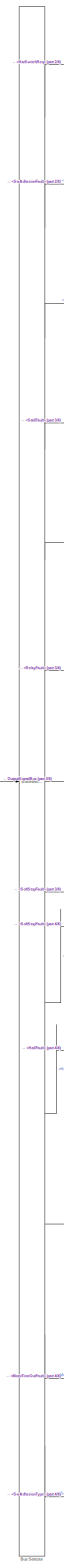
[diagram: UpDataOutputInfo - part 1/4, left side, full height]
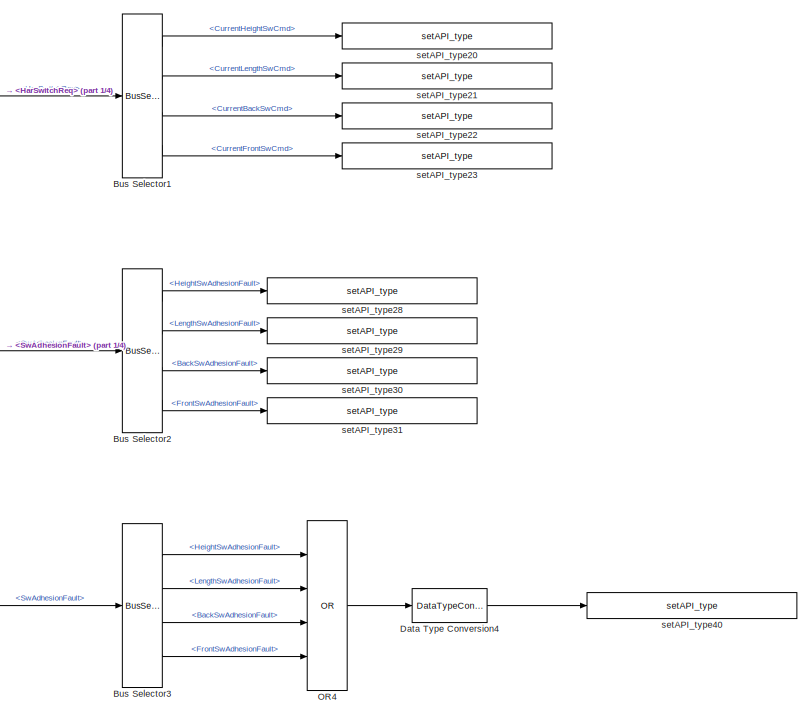
[diagram: UpDataOutputInfo - part 2/4, top center region]
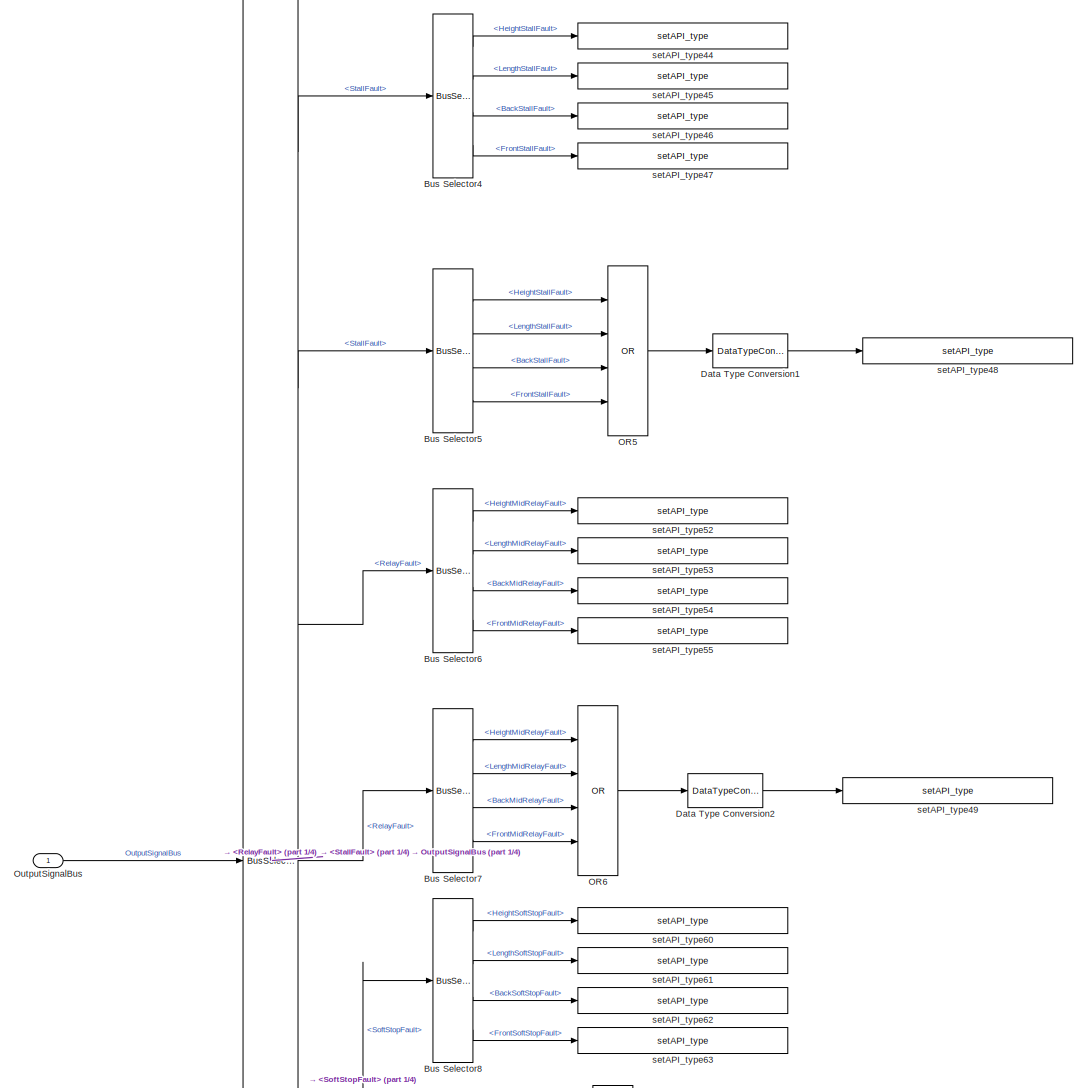
[diagram: UpDataOutputInfo - part 3/4, full width, middle band]
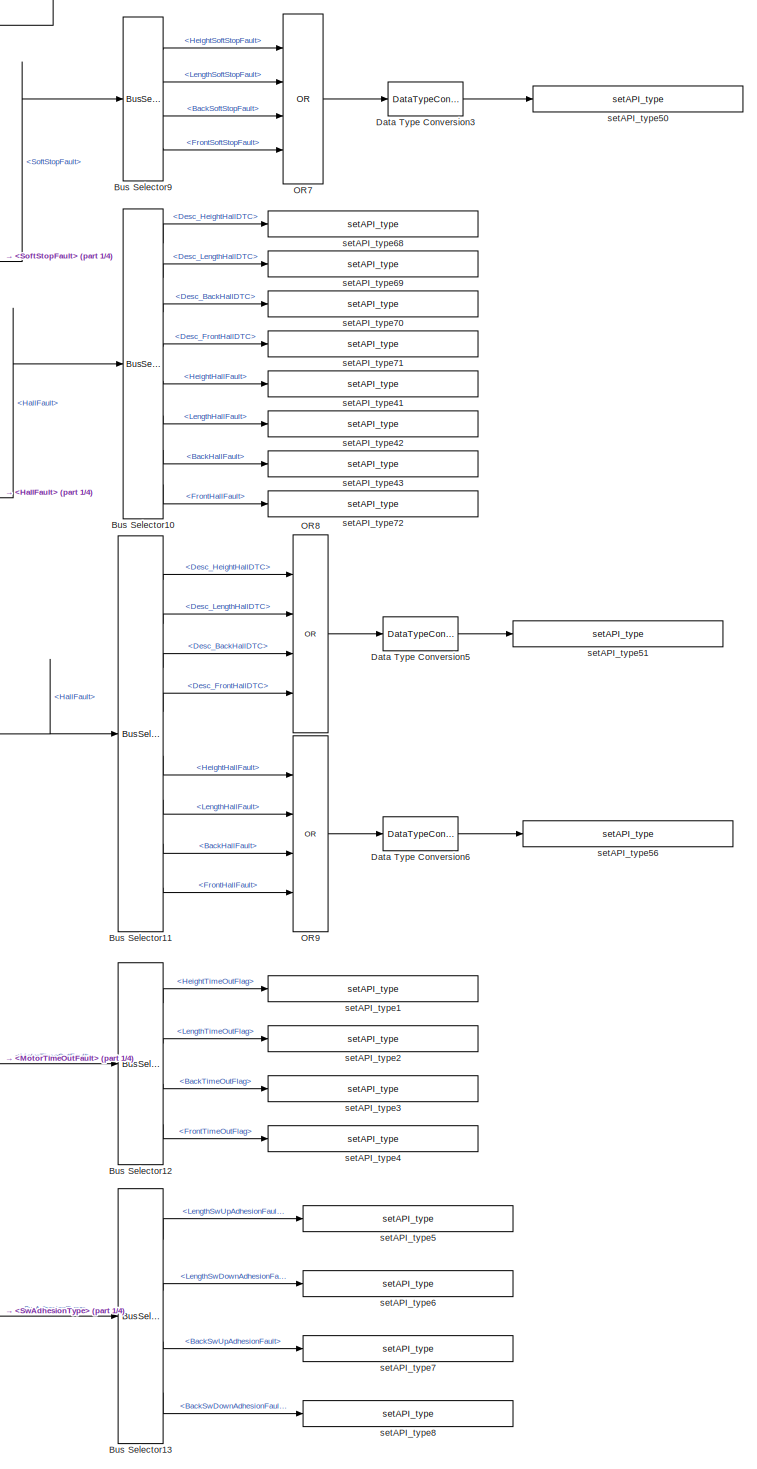
[diagram: UpDataOutputInfo - part 4/4, bottom center region]
BLOCK [SubSystem] UpDataOutputInfo
  Ports = [1]
  Priority = 2
  RTWFcnNameOpts = Use subsystem name
  RTWFileName = WiperCtrl
  RTWSystemCode = Nonreusable function
  RequestExecContextInheritance = off
  TreatAsAtomicUnit = on
BLOCK [BusSelector] UpDataOutputInfo/Bus Selector
  OutputAsBus = off
  OutputSignals = HarSwitchReq,SwAdhesionFault,SwAdhesionFault,StallFault,StallFault,RelayFault,RelayFault,SoftStopFault,SoftStopFault,HallFault,HallFault,MotorTimeOutFault,SwAdhesionType
  Ports = [1, 13]
BLOCK [BusSelector] UpDataOutputInfo/Bus Selector1
  OutputAsBus = off
  OutputSignals = CurrentHeightSwCmd,CurrentLengthSwCmd,CurrentBackSwCmd,CurrentFrontSwCmd
  Ports = [1, 4]
BLOCK [BusSelector] UpDataOutputInfo/Bus Selector10
  OutputAsBus = off
  OutputSignals = Desc_HeightHallDTC,Desc_LengthHallDTC,Desc_BackHallDTC,Desc_FrontHallDTC,HeightHallFault,LengthHallFault,BackHallFault,FrontHallFault
  Ports = [1, 8]
BLOCK [BusSelector] UpDataOutputInfo/Bus Selector11
  OutputAsBus = off
  OutputSignals = Desc_HeightHallDTC,Desc_LengthHallDTC,Desc_BackHallDTC,Desc_FrontHallDTC,HeightHallFault,LengthHallFault,BackHallFault,FrontHallFault
  Ports = [1, 8]
BLOCK [BusSelector] UpDataOutputInfo/Bus Selector12
  OutputAsBus = off
  OutputSignals = HeightTimeOutFlag,LengthTimeOutFlag,BackTimeOutFlag,FrontTimeOutFlag
  Ports = [1, 4]
BLOCK [BusSelector] UpDataOutputInfo/Bus Selector13
  OutputAsBus = off
  OutputSignals = LengthSwUpAdhesionFault,LengthSwDownAdhesionFault,BackSwUpAdhesionFault,BackSwDownAdhesionFault
  Ports = [1, 4]
BLOCK [BusSelector] UpDataOutputInfo/Bus Selector2
  OutputAsBus = off
  OutputSignals = HeightSwAdhesionFault,LengthSwAdhesionFault,BackSwAdhesionFault,FrontSwAdhesionFault
  Ports = [1, 4]
BLOCK [BusSelector] UpDataOutputInfo/Bus Selector3
  OutputAsBus = off
  OutputSignals = HeightSwAdhesionFault,LengthSwAdhesionFault,BackSwAdhesionFault,FrontSwAdhesionFault
  Ports = [1, 4]
BLOCK [BusSelector] UpDataOutputInfo/Bus Selector4
  OutputAsBus = off
  OutputSignals = HeightStallFault,LengthStallFault,BackStallFault,FrontStallFault
  Ports = [1, 4]
BLOCK [BusSelector] UpDataOutputInfo/Bus Selector5
  OutputAsBus = off
  OutputSignals = HeightStallFault,LengthStallFault,BackStallFault,FrontStallFault
  Ports = [1, 4]
BLOCK [BusSelector] UpDataOutputInfo/Bus Selector6
  OutputAsBus = off
  OutputSignals = HeightMidRelayFault,LengthMidRelayFault,BackMidRelayFault,FrontMidRelayFault
  Ports = [1, 4]
BLOCK [BusSelector] UpDataOutputInfo/Bus Selector7
  OutputAsBus = off
  OutputSignals = HeightMidRelayFault,LengthMidRelayFault,BackMidRelayFault,FrontMidRelayFault
  Ports = [1, 4]
BLOCK [BusSelector] UpDataOutputInfo/Bus Selector8
  OutputAsBus = off
  OutputSignals = HeightSoftStopFault,LengthSoftStopFault,BackSoftStopFault,FrontSoftStopFault
  Ports = [1, 4]
BLOCK [BusSelector] UpDataOutputInfo/Bus Selector9
  OutputAsBus = off
  OutputSignals = HeightSoftStopFault,LengthSoftStopFault,BackSoftStopFault,FrontSoftStopFault
  Ports = [1, 4]
BLOCK [DataTypeConversion] UpDataOutputInfo/Data Type Conversion1
  OutDataTypeStr = uint8
  RndMeth = Floor
  SaturateOnIntegerOverflow = off
BLOCK [DataTypeConversion] UpDataOutputInfo/Data Type Conversion2
  OutDataTypeStr = uint8
  RndMeth = Floor
  SaturateOnIntegerOverflow = off
BLOCK [DataTypeConversion] UpDataOutputInfo/Data Type Conversion3
  OutDataTypeStr = uint8
  RndMeth = Floor
  SaturateOnIntegerOverflow = off
BLOCK [DataTypeConversion] UpDataOutputInfo/Data Type Conversion4
  OutDataTypeStr = uint8
  RndMeth = Floor
  SaturateOnIntegerOverflow = off
BLOCK [DataTypeConversion] UpDataOutputInfo/Data Type Conversion5
  OutDataTypeStr = uint8
  RndMeth = Floor
  SaturateOnIntegerOverflow = off
BLOCK [DataTypeConversion] UpDataOutputInfo/Data Type Conversion6
  OutDataTypeStr = uint8
  RndMeth = Floor
  SaturateOnIntegerOverflow = off
BLOCK [Logic] UpDataOutputInfo/OR4
  AllPortsSameDT = off
  Inputs = 4
  Operator = OR
  OutDataTypeStr = boolean
  Ports = [4, 1]
BLOCK [Logic] UpDataOutputInfo/OR5
  AllPortsSameDT = off
  Inputs = 4
  Operator = OR
  OutDataTypeStr = boolean
  Ports = [4, 1]
BLOCK [Logic] UpDataOutputInfo/OR6
  AllPortsSameDT = off
  Inputs = 4
  Operator = OR
  OutDataTypeStr = boolean
  Ports = [4, 1]
BLOCK [Logic] UpDataOutputInfo/OR7
  AllPortsSameDT = off
  Inputs = 4
  Operator = OR
  OutDataTypeStr = boolean
  Ports = [4, 1]
BLOCK [Logic] UpDataOutputInfo/OR8
  AllPortsSameDT = off
  Inputs = 4
  Operator = OR
  OutDataTypeStr = boolean
  Ports = [4, 1]
BLOCK [Logic] UpDataOutputInfo/OR9
  AllPortsSameDT = off
  Inputs = 4
  Operator = OR
  OutDataTypeStr = boolean
  Ports = [4, 1]
BLOCK [Inport] UpDataOutputInfo/OutputSignalBus
  IconDisplay = Port number
BLOCK [Reference] UpDataOutputInfo/setAPI_type1  REF=DareLib/Dare/setAPI_type
  AttributesFormatString = %<g_funcname>
  Ports = [1]
  SourceBlock = DareLib/Dare/setAPI_type
  SourceProductName = Dare Library
  SourceType = Dare Custom
BLOCK [Reference] UpDataOutputInfo/setAPI_type2  REF=DareLib/Dare/setAPI_type
  AttributesFormatString = %<g_funcname>
  Ports = [1]
  SourceBlock = DareLib/Dare/setAPI_type
  SourceProductName = Dare Library
  SourceType = Dare Custom
BLOCK [Reference] UpDataOutputInfo/setAPI_type20  REF=DareLib/Dare/setAPI_type
  AttributesFormatString = %<g_funcname>
  Ports = [1]
  SourceBlock = DareLib/Dare/setAPI_type
  SourceProductName = Dare Library
  SourceType = Dare Custom
BLOCK [Reference] UpDataOutputInfo/setAPI_type21  REF=DareLib/Dare/setAPI_type
  AttributesFormatString = %<g_funcname>
  Ports = [1]
  SourceBlock = DareLib/Dare/setAPI_type
  SourceProductName = Dare Library
  SourceType = Dare Custom
BLOCK [Reference] UpDataOutputInfo/setAPI_type22  REF=DareLib/Dare/setAPI_type
  AttributesFormatString = %<g_funcname>
  Ports = [1]
  SourceBlock = DareLib/Dare/setAPI_type
  SourceProductName = Dare Library
  SourceType = Dare Custom
BLOCK [Reference] UpDataOutputInfo/setAPI_type23  REF=DareLib/Dare/setAPI_type
  AttributesFormatString = %<g_funcname>
  Ports = [1]
  SourceBlock = DareLib/Dare/setAPI_type
  SourceProductName = Dare Library
  SourceType = Dare Custom
BLOCK [Reference] UpDataOutputInfo/setAPI_type28  REF=DareLib/Dare/setAPI_type
  AttributesFormatString = %<g_funcname>
  Ports = [1]
  SourceBlock = DareLib/Dare/setAPI_type
  SourceProductName = Dare Library
  SourceType = Dare Custom
BLOCK [Reference] UpDataOutputInfo/setAPI_type29  REF=DareLib/Dare/setAPI_type
  AttributesFormatString = %<g_funcname>
  Ports = [1]
  SourceBlock = DareLib/Dare/setAPI_type
  SourceProductName = Dare Library
  SourceType = Dare Custom
BLOCK [Reference] UpDataOutputInfo/setAPI_type3  REF=DareLib/Dare/setAPI_type
  AttributesFormatString = %<g_funcname>
  Ports = [1]
  SourceBlock = DareLib/Dare/setAPI_type
  SourceProductName = Dare Library
  SourceType = Dare Custom
BLOCK [Reference] UpDataOutputInfo/setAPI_type30  REF=DareLib/Dare/setAPI_type
  AttributesFormatString = %<g_funcname>
  Ports = [1]
  SourceBlock = DareLib/Dare/setAPI_type
  SourceProductName = Dare Library
  SourceType = Dare Custom
BLOCK [Reference] UpDataOutputInfo/setAPI_type31  REF=DareLib/Dare/setAPI_type
  AttributesFormatString = %<g_funcname>
  Ports = [1]
  SourceBlock = DareLib/Dare/setAPI_type
  SourceProductName = Dare Library
  SourceType = Dare Custom
BLOCK [Reference] UpDataOutputInfo/setAPI_type4  REF=DareLib/Dare/setAPI_type
  AttributesFormatString = %<g_funcname>
  Ports = [1]
  SourceBlock = DareLib/Dare/setAPI_type
  SourceProductName = Dare Library
  SourceType = Dare Custom
BLOCK [Reference] UpDataOutputInfo/setAPI_type40  REF=DareLib/Dare/setAPI_type
  AttributesFormatString = %<g_funcname>
  Ports = [1]
  SourceBlock = DareLib/Dare/setAPI_type
  SourceProductName = Dare Library
  SourceType = Dare Custom
BLOCK [Reference] UpDataOutputInfo/setAPI_type41  REF=DareLib/Dare/setAPI_type
  AttributesFormatString = %<g_funcname>
  Ports = [1]
  SourceBlock = DareLib/Dare/setAPI_type
  SourceProductName = Dare Library
  SourceType = Dare Custom
BLOCK [Reference] UpDataOutputInfo/setAPI_type42  REF=DareLib/Dare/setAPI_type
  AttributesFormatString = %<g_funcname>
  Ports = [1]
  SourceBlock = DareLib/Dare/setAPI_type
  SourceProductName = Dare Library
  SourceType = Dare Custom
BLOCK [Reference] UpDataOutputInfo/setAPI_type43  REF=DareLib/Dare/setAPI_type
  AttributesFormatString = %<g_funcname>
  Ports = [1]
  SourceBlock = DareLib/Dare/setAPI_type
  SourceProductName = Dare Library
  SourceType = Dare Custom
BLOCK [Reference] UpDataOutputInfo/setAPI_type44  REF=DareLib/Dare/setAPI_type
  AttributesFormatString = %<g_funcname>
  Ports = [1]
  SourceBlock = DareLib/Dare/setAPI_type
  SourceProductName = Dare Library
  SourceType = Dare Custom
BLOCK [Reference] UpDataOutputInfo/setAPI_type45  REF=DareLib/Dare/setAPI_type
  AttributesFormatString = %<g_funcname>
  Ports = [1]
  SourceBlock = DareLib/Dare/setAPI_type
  SourceProductName = Dare Library
  SourceType = Dare Custom
BLOCK [Reference] UpDataOutputInfo/setAPI_type46  REF=DareLib/Dare/setAPI_type
  AttributesFormatString = %<g_funcname>
  Ports = [1]
  SourceBlock = DareLib/Dare/setAPI_type
  SourceProductName = Dare Library
  SourceType = Dare Custom
BLOCK [Reference] UpDataOutputInfo/setAPI_type47  REF=DareLib/Dare/setAPI_type
  AttributesFormatString = %<g_funcname>
  Ports = [1]
  SourceBlock = DareLib/Dare/setAPI_type
  SourceProductName = Dare Library
  SourceType = Dare Custom
BLOCK [Reference] UpDataOutputInfo/setAPI_type48  REF=DareLib/Dare/setAPI_type
  AttributesFormatString = %<g_funcname>
  Ports = [1]
  SourceBlock = DareLib/Dare/setAPI_type
  SourceProductName = Dare Library
  SourceType = Dare Custom
BLOCK [Reference] UpDataOutputInfo/setAPI_type49  REF=DareLib/Dare/setAPI_type
  AttributesFormatString = %<g_funcname>
  Ports = [1]
  SourceBlock = DareLib/Dare/setAPI_type
  SourceProductName = Dare Library
  SourceType = Dare Custom
BLOCK [Reference] UpDataOutputInfo/setAPI_type5  REF=DareLib/Dare/setAPI_type
  AttributesFormatString = %<g_funcname>
  Ports = [1]
  SourceBlock = DareLib/Dare/setAPI_type
  SourceProductName = Dare Library
  SourceType = Dare Custom
BLOCK [Reference] UpDataOutputInfo/setAPI_type50  REF=DareLib/Dare/setAPI_type
  AttributesFormatString = %<g_funcname>
  Ports = [1]
  SourceBlock = DareLib/Dare/setAPI_type
  SourceProductName = Dare Library
  SourceType = Dare Custom
BLOCK [Reference] UpDataOutputInfo/setAPI_type51  REF=DareLib/Dare/setAPI_type
  AttributesFormatString = %<g_funcname>
  Ports = [1]
  SourceBlock = DareLib/Dare/setAPI_type
  SourceProductName = Dare Library
  SourceType = Dare Custom
BLOCK [Reference] UpDataOutputInfo/setAPI_type52  REF=DareLib/Dare/setAPI_type
  AttributesFormatString = %<g_funcname>
  Ports = [1]
  SourceBlock = DareLib/Dare/setAPI_type
  SourceProductName = Dare Library
  SourceType = Dare Custom
BLOCK [Reference] UpDataOutputInfo/setAPI_type53  REF=DareLib/Dare/setAPI_type
  AttributesFormatString = %<g_funcname>
  Ports = [1]
  SourceBlock = DareLib/Dare/setAPI_type
  SourceProductName = Dare Library
  SourceType = Dare Custom
BLOCK [Reference] UpDataOutputInfo/setAPI_type54  REF=DareLib/Dare/setAPI_type
  AttributesFormatString = %<g_funcname>
  Ports = [1]
  SourceBlock = DareLib/Dare/setAPI_type
  SourceProductName = Dare Library
  SourceType = Dare Custom
BLOCK [Reference] UpDataOutputInfo/setAPI_type55  REF=DareLib/Dare/setAPI_type
  AttributesFormatString = %<g_funcname>
  Ports = [1]
  SourceBlock = DareLib/Dare/setAPI_type
  SourceProductName = Dare Library
  SourceType = Dare Custom
BLOCK [Reference] UpDataOutputInfo/setAPI_type56  REF=DareLib/Dare/setAPI_type
  AttributesFormatString = %<g_funcname>
  Ports = [1]
  SourceBlock = DareLib/Dare/setAPI_type
  SourceProductName = Dare Library
  SourceType = Dare Custom
BLOCK [Reference] UpDataOutputInfo/setAPI_type6  REF=DareLib/Dare/setAPI_type
  AttributesFormatString = %<g_funcname>
  Ports = [1]
  SourceBlock = DareLib/Dare/setAPI_type
  SourceProductName = Dare Library
  SourceType = Dare Custom
BLOCK [Reference] UpDataOutputInfo/setAPI_type60  REF=DareLib/Dare/setAPI_type
  AttributesFormatString = %<g_funcname>
  Ports = [1]
  SourceBlock = DareLib/Dare/setAPI_type
  SourceProductName = Dare Library
  SourceType = Dare Custom
BLOCK [Reference] UpDataOutputInfo/setAPI_type61  REF=DareLib/Dare/setAPI_type
  AttributesFormatString = %<g_funcname>
  Ports = [1]
  SourceBlock = DareLib/Dare/setAPI_type
  SourceProductName = Dare Library
  SourceType = Dare Custom
BLOCK [Reference] UpDataOutputInfo/setAPI_type62  REF=DareLib/Dare/setAPI_type
  AttributesFormatString = %<g_funcname>
  Ports = [1]
  SourceBlock = DareLib/Dare/setAPI_type
  SourceProductName = Dare Library
  SourceType = Dare Custom
BLOCK [Reference] UpDataOutputInfo/setAPI_type63  REF=DareLib/Dare/setAPI_type
  AttributesFormatString = %<g_funcname>
  Ports = [1]
  SourceBlock = DareLib/Dare/setAPI_type
  SourceProductName = Dare Library
  SourceType = Dare Custom
BLOCK [Reference] UpDataOutputInfo/setAPI_type68  REF=DareLib/Dare/setAPI_type
  AttributesFormatString = %<g_funcname>
  Ports = [1]
  SourceBlock = DareLib/Dare/setAPI_type
  SourceProductName = Dare Library
  SourceType = Dare Custom
BLOCK [Reference] UpDataOutputInfo/setAPI_type69  REF=DareLib/Dare/setAPI_type
  AttributesFormatString = %<g_funcname>
  Ports = [1]
  SourceBlock = DareLib/Dare/setAPI_type
  SourceProductName = Dare Library
  SourceType = Dare Custom
BLOCK [Reference] UpDataOutputInfo/setAPI_type7  REF=DareLib/Dare/setAPI_type
  AttributesFormatString = %<g_funcname>
  Ports = [1]
  SourceBlock = DareLib/Dare/setAPI_type
  SourceProductName = Dare Library
  SourceType = Dare Custom
BLOCK [Reference] UpDataOutputInfo/setAPI_type70  REF=DareLib/Dare/setAPI_type
  AttributesFormatString = %<g_funcname>
  Ports = [1]
  SourceBlock = DareLib/Dare/setAPI_type
  SourceProductName = Dare Library
  SourceType = Dare Custom
BLOCK [Reference] UpDataOutputInfo/setAPI_type71  REF=DareLib/Dare/setAPI_type
  AttributesFormatString = %<g_funcname>
  Ports = [1]
  SourceBlock = DareLib/Dare/setAPI_type
  SourceProductName = Dare Library
  SourceType = Dare Custom
BLOCK [Reference] UpDataOutputInfo/setAPI_type72  REF=DareLib/Dare/setAPI_type
  AttributesFormatString = %<g_funcname>
  Ports = [1]
  SourceBlock = DareLib/Dare/setAPI_type
  SourceProductName = Dare Library
  SourceType = Dare Custom
BLOCK [Reference] UpDataOutputInfo/setAPI_type8  REF=DareLib/Dare/setAPI_type
  AttributesFormatString = %<g_funcname>
  Ports = [1]
  SourceBlock = DareLib/Dare/setAPI_type
  SourceProductName = Dare Library
  SourceType = Dare Custom
LINE LogicCtrl/AdheAndEffec/Bus Creator1:1 -> LogicCtrl/AdheAndEffec/SwAdhesionType:1
LINE LogicCtrl/AdheAndEffec/Bus Creator2:1 -> LogicCtrl/AdheAndEffec/SwAdhesionFault:1
LINE LogicCtrl/AdheAndEffec/Bus Creator:1 -> LogicCtrl/AdheAndEffec/SwitchCmd:1
LINE LogicCtrl/AdheAndEffec/Bus Selector:1 -> LogicCtrl/AdheAndEffec/SwitchErrorDetection:1
LINE LogicCtrl/AdheAndEffec/Bus Selector:2 -> LogicCtrl/AdheAndEffec/SwitchErrorDetection:2
LINE LogicCtrl/AdheAndEffec/Bus Selector:3 -> LogicCtrl/AdheAndEffec/SwitchErrorDetection:3
LINE LogicCtrl/AdheAndEffec/Bus Selector:4 -> LogicCtrl/AdheAndEffec/SwitchErrorDetection:4
LINE LogicCtrl/AdheAndEffec/InputSignalBus:1 -> LogicCtrl/AdheAndEffec/Bus Selector:1
LINE LogicCtrl/AdheAndEffec/SwitchErrorDetection:1 -> LogicCtrl/AdheAndEffec/Bus Creator2:1
LINE LogicCtrl/AdheAndEffec/SwitchErrorDetection:10 -> LogicCtrl/AdheAndEffec/Bus Creator1:2
LINE LogicCtrl/AdheAndEffec/SwitchErrorDetection:11 -> LogicCtrl/AdheAndEffec/Bus Creator1:3
LINE LogicCtrl/AdheAndEffec/SwitchErrorDetection:12 -> LogicCtrl/AdheAndEffec/Bus Creator1:4
LINE LogicCtrl/AdheAndEffec/SwitchErrorDetection:2 -> LogicCtrl/AdheAndEffec/Bus Creator2:2
LINE LogicCtrl/AdheAndEffec/SwitchErrorDetection:3 -> LogicCtrl/AdheAndEffec/Bus Creator2:3
LINE LogicCtrl/AdheAndEffec/SwitchErrorDetection:4 -> LogicCtrl/AdheAndEffec/Bus Creator2:4
LINE LogicCtrl/AdheAndEffec/SwitchErrorDetection:5 -> LogicCtrl/AdheAndEffec/Bus Creator:1
LINE LogicCtrl/AdheAndEffec/SwitchErrorDetection:6 -> LogicCtrl/AdheAndEffec/Bus Creator:2
LINE LogicCtrl/AdheAndEffec/SwitchErrorDetection:7 -> LogicCtrl/AdheAndEffec/Bus Creator:3
LINE LogicCtrl/AdheAndEffec/SwitchErrorDetection:8 -> LogicCtrl/AdheAndEffec/Bus Creator:4
LINE LogicCtrl/AdheAndEffec/SwitchErrorDetection:9 -> LogicCtrl/AdheAndEffec/Bus Creator1:1
LINE LogicCtrl/AdheAndEffec:1 -> LogicCtrl/Goto:1
LINE LogicCtrl/AdheAndEffec:2 -> LogicCtrl/Goto12:1
LINE LogicCtrl/AdheAndEffec:3 -> LogicCtrl/Goto3:1
LINE LogicCtrl/Bus Creator6:1 -> LogicCtrl/OutputSignalBus:1
LINE LogicCtrl/Bus Creator7:1 -> LogicCtrl/SwitchErrDeal:1
LINE LogicCtrl/From10:1 -> LogicCtrl/Bus Creator6:1
LINE LogicCtrl/From11:1 -> LogicCtrl/Bus Creator6:4
LINE LogicCtrl/From12:1 -> LogicCtrl/Bus Creator6:5
LINE LogicCtrl/From13:1 -> LogicCtrl/Bus Creator6:6
LINE LogicCtrl/From14:1 -> LogicCtrl/Bus Creator7:1
LINE LogicCtrl/From15:1 -> LogicCtrl/Bus Creator7:2
LINE LogicCtrl/From16:1 -> LogicCtrl/Bus Creator7:3
LINE LogicCtrl/From17:1 -> LogicCtrl/Bus Creator7:4
LINE LogicCtrl/From18:1 -> LogicCtrl/MotorTimeOut:1
LINE LogicCtrl/From19:1 -> LogicCtrl/MotorTimeOut:2
LINE LogicCtrl/From1:1 -> LogicCtrl/StallError:1
LINE LogicCtrl/From20:1 -> LogicCtrl/Bus Creator6:7
LINE LogicCtrl/From21:1 -> LogicCtrl/Bus Creator7:5
LINE LogicCtrl/From2:1 -> LogicCtrl/StallError:2
LINE LogicCtrl/From3:1 -> LogicCtrl/HallError:1
LINE LogicCtrl/From4:1 -> LogicCtrl/HallError:2
LINE LogicCtrl/From5:1 -> LogicCtrl/RelayError:1
LINE LogicCtrl/From6:1 -> LogicCtrl/SoftStopPoint:1
LINE LogicCtrl/From7:1 -> LogicCtrl/AdheAndEffec:1
LINE LogicCtrl/From8:1 -> LogicCtrl/Bus Creator6:3
LINE LogicCtrl/From9:1 -> LogicCtrl/Bus Creator6:2
LINE LogicCtrl/From:1 -> LogicCtrl/Bus Creator6:8
LINE LogicCtrl/HallError/Bus Creator3:1 -> LogicCtrl/HallError/HallFault:1
LINE LogicCtrl/HallError/Bus Selector4:1 -> LogicCtrl/HallError/HallErrorDetection:1
LINE LogicCtrl/HallError/Bus Selector4:2 -> LogicCtrl/HallError/HallErrorDetection:2
LINE LogicCtrl/HallError/Bus Selector4:3 -> LogicCtrl/HallError/HallErrorDetection:3
LINE LogicCtrl/HallError/Bus Selector4:4 -> LogicCtrl/HallError/HallErrorDetection:4
LINE LogicCtrl/HallError/Bus Selector5:1 -> LogicCtrl/HallError/HallErrorDetection:5
LINE LogicCtrl/HallError/Bus Selector5:10 -> LogicCtrl/HallError/HallErrorDetection:14
LINE LogicCtrl/HallError/Bus Selector5:11 -> LogicCtrl/HallError/HallErrorDetection:15
LINE LogicCtrl/HallError/Bus Selector5:12 -> LogicCtrl/HallError/HallErrorDetection:16
LINE LogicCtrl/HallError/Bus Selector5:13 -> LogicCtrl/HallError/HallErrorDetection:17
LINE LogicCtrl/HallError/Bus Selector5:14 -> LogicCtrl/HallError/HallErrorDetection:18
LINE LogicCtrl/HallError/Bus Selector5:15 -> LogicCtrl/HallError/HallErrorDetection:19
LINE LogicCtrl/HallError/Bus Selector5:16 -> LogicCtrl/HallError/HallErrorDetection:20
LINE LogicCtrl/HallError/Bus Selector5:17 -> LogicCtrl/HallError/HallErrorDetection:21
LINE LogicCtrl/HallError/Bus Selector5:18 -> LogicCtrl/HallError/HallErrorDetection:22
LINE LogicCtrl/HallError/Bus Selector5:2 -> LogicCtrl/HallError/HallErrorDetection:6
LINE LogicCtrl/HallError/Bus Selector5:3 -> LogicCtrl/HallError/HallErrorDetection:7
LINE LogicCtrl/HallError/Bus Selector5:4 -> LogicCtrl/HallError/HallErrorDetection:8
LINE LogicCtrl/HallError/Bus Selector5:5 -> LogicCtrl/HallError/HallErrorDetection:9
LINE LogicCtrl/HallError/Bus Selector5:6 -> LogicCtrl/HallError/HallErrorDetection:10
LINE LogicCtrl/HallError/Bus Selector5:7 -> LogicCtrl/HallError/HallErrorDetection:11
LINE LogicCtrl/HallError/Bus Selector5:8 -> LogicCtrl/HallError/HallErrorDetection:12
LINE LogicCtrl/HallError/Bus Selector5:9 -> LogicCtrl/HallError/HallErrorDetection:13
LINE LogicCtrl/HallError/HallErrorDetection:1 -> LogicCtrl/HallError/Bus Creator3:1
LINE LogicCtrl/HallError/HallErrorDetection:2 -> LogicCtrl/HallError/Bus Creator3:2
LINE LogicCtrl/HallError/HallErrorDetection:3 -> LogicCtrl/HallError/Bus Creator3:3
LINE LogicCtrl/HallError/HallErrorDetection:4 -> LogicCtrl/HallError/Bus Creator3:4
LINE LogicCtrl/HallError/HallErrorDetection:5 -> LogicCtrl/HallError/Bus Creator3:5
LINE LogicCtrl/HallError/HallErrorDetection:6 -> LogicCtrl/HallError/Bus Creator3:6
LINE LogicCtrl/HallError/HallErrorDetection:7 -> LogicCtrl/HallError/Bus Creator3:7
LINE LogicCtrl/HallError/HallErrorDetection:8 -> LogicCtrl/HallError/Bus Creator3:8
LINE LogicCtrl/HallError/InputSignalBus:1 -> LogicCtrl/HallError/Bus Selector5:1
LINE LogicCtrl/HallError/SwitchCmd:1 -> LogicCtrl/HallError/Bus Selector4:1
LINE LogicCtrl/HallError:1 -> LogicCtrl/Goto5:1
LINE LogicCtrl/InputSignalBus:1 -> LogicCtrl/Goto1:1
LINE LogicCtrl/MotorTimeOut/Bus Creator1:1 -> LogicCtrl/MotorTimeOut/MotorTimeOutFault:1
LINE LogicCtrl/MotorTimeOut/Bus Creator:1 -> LogicCtrl/MotorTimeOut/Bus Selector:1
LINE LogicCtrl/MotorTimeOut/Bus Selector:1 -> LogicCtrl/MotorTimeOut/MotorTimeOutDetection:1
LINE LogicCtrl/MotorTimeOut/Bus Selector:2 -> LogicCtrl/MotorTimeOut/MotorTimeOutDetection:2
LINE LogicCtrl/MotorTimeOut/Bus Selector:3 -> LogicCtrl/MotorTimeOut/MotorTimeOutDetection:3
LINE LogicCtrl/MotorTimeOut/Bus Selector:4 -> LogicCtrl/MotorTimeOut/MotorTimeOutDetection:4
LINE LogicCtrl/MotorTimeOut/Bus Selector:5 -> LogicCtrl/MotorTimeOut/MotorTimeOutDetection:5
LINE LogicCtrl/MotorTimeOut/Bus Selector:6 -> LogicCtrl/MotorTimeOut/MotorTimeOutDetection:6
LINE LogicCtrl/MotorTimeOut/Bus Selector:7 -> LogicCtrl/MotorTimeOut/MotorTimeOutDetection:7
LINE LogicCtrl/MotorTimeOut/Bus Selector:8 -> LogicCtrl/MotorTimeOut/MotorTimeOutDetection:8
LINE LogicCtrl/MotorTimeOut/Bus Selector:9 -> LogicCtrl/MotorTimeOut/MotorTimeOutDetection:9
LINE LogicCtrl/MotorTimeOut/Enumerated Constant:1 -> LogicCtrl/MotorTimeOut/Bus Creator:3
LINE LogicCtrl/MotorTimeOut/InputSignalBus:1 -> LogicCtrl/MotorTimeOut/Bus Creator:2
LINE LogicCtrl/MotorTimeOut/MotorTimeOutDetection:1 -> LogicCtrl/MotorTimeOut/Bus Creator1:1
LINE LogicCtrl/MotorTimeOut/MotorTimeOutDetection:2 -> LogicCtrl/MotorTimeOut/Bus Creator1:2
LINE LogicCtrl/MotorTimeOut/MotorTimeOutDetection:3 -> LogicCtrl/MotorTimeOut/Bus Creator1:3
LINE LogicCtrl/MotorTimeOut/MotorTimeOutDetection:4 -> LogicCtrl/MotorTimeOut/Bus Creator1:4
LINE LogicCtrl/MotorTimeOut/SwitchCmd:1 -> LogicCtrl/MotorTimeOut/Bus Creator:1
LINE LogicCtrl/MotorTimeOut:1 -> LogicCtrl/Goto2:1
LINE LogicCtrl/RelayError/Bus Creator4:1 -> LogicCtrl/RelayError/RelayFault:1
LINE LogicCtrl/RelayError/Bus Selector6:1 -> LogicCtrl/RelayError/MidRelayErrorDetection:1
LINE LogicCtrl/RelayError/Bus Selector6:10 -> LogicCtrl/RelayError/MidRelayErrorDetection:10
LINE LogicCtrl/RelayError/Bus Selector6:11 -> LogicCtrl/RelayError/MidRelayErrorDetection:11
LINE LogicCtrl/RelayError/Bus Selector6:12 -> LogicCtrl/RelayError/MidRelayErrorDetection:12
LINE LogicCtrl/RelayError/Bus Selector6:2 -> LogicCtrl/RelayError/MidRelayErrorDetection:2
LINE LogicCtrl/RelayError/Bus Selector6:3 -> LogicCtrl/RelayError/MidRelayErrorDetection:3
LINE LogicCtrl/RelayError/Bus Selector6:4 -> LogicCtrl/RelayError/MidRelayErrorDetection:4
LINE LogicCtrl/RelayError/Bus Selector6:5 -> LogicCtrl/RelayError/MidRelayErrorDetection:5
LINE LogicCtrl/RelayError/Bus Selector6:6 -> LogicCtrl/RelayError/MidRelayErrorDetection:6
LINE LogicCtrl/RelayError/Bus Selector6:7 -> LogicCtrl/RelayError/MidRelayErrorDetection:7
LINE LogicCtrl/RelayError/Bus Selector6:8 -> LogicCtrl/RelayError/MidRelayErrorDetection:8
LINE LogicCtrl/RelayError/Bus Selector6:9 -> LogicCtrl/RelayError/MidRelayErrorDetection:9
LINE LogicCtrl/RelayError/InputSignalBus:1 -> LogicCtrl/RelayError/Bus Selector6:1
LINE LogicCtrl/RelayError/MidRelayErrorDetection:1 -> LogicCtrl/RelayError/Bus Creator4:1
LINE LogicCtrl/RelayError/MidRelayErrorDetection:2 -> LogicCtrl/RelayError/Bus Creator4:2
LINE LogicCtrl/RelayError/MidRelayErrorDetection:3 -> LogicCtrl/RelayError/Bus Creator4:3
LINE LogicCtrl/RelayError/MidRelayErrorDetection:4 -> LogicCtrl/RelayError/Bus Creator4:4
LINE LogicCtrl/RelayError:1 -> LogicCtrl/Goto6:1
LINE LogicCtrl/SoftStopPoint/Bus Creator5:1 -> LogicCtrl/SoftStopPoint/SoftStopFault:1
LINE LogicCtrl/SoftStopPoint/Bus Selector7:1 -> LogicCtrl/SoftStopPoint/SoftStopPointDetection:1
LINE LogicCtrl/SoftStopPoint/Bus Selector7:10 -> LogicCtrl/SoftStopPoint/SoftStopPointDetection:10
LINE LogicCtrl/SoftStopPoint/Bus Selector7:11 -> LogicCtrl/SoftStopPoint/SoftStopPointDetection:11
LINE LogicCtrl/SoftStopPoint/Bus Selector7:12 -> LogicCtrl/SoftStopPoint/SoftStopPointDetection:12
LINE LogicCtrl/SoftStopPoint/Bus Selector7:13 -> LogicCtrl/SoftStopPoint/SoftStopPointDetection:13
LINE LogicCtrl/SoftStopPoint/Bus Selector7:14 -> LogicCtrl/SoftStopPoint/SoftStopPointDetection:14
LINE LogicCtrl/SoftStopPoint/Bus Selector7:15 -> LogicCtrl/SoftStopPoint/SoftStopPointDetection:15
LINE LogicCtrl/SoftStopPoint/Bus Selector7:16 -> LogicCtrl/SoftStopPoint/SoftStopPointDetection:16
LINE LogicCtrl/SoftStopPoint/Bus Selector7:17 -> LogicCtrl/SoftStopPoint/SoftStopPointDetection:17
LINE LogicCtrl/SoftStopPoint/Bus Selector7:18 -> LogicCtrl/SoftStopPoint/SoftStopPointDetection:18
LINE LogicCtrl/SoftStopPoint/Bus Selector7:19 -> LogicCtrl/SoftStopPoint/SoftStopPointDetection:19
LINE LogicCtrl/SoftStopPoint/Bus Selector7:2 -> LogicCtrl/SoftStopPoint/SoftStopPointDetection:2
LINE LogicCtrl/SoftStopPoint/Bus Selector7:20 -> LogicCtrl/SoftStopPoint/SoftStopPointDetection:20
LINE LogicCtrl/SoftStopPoint/Bus Selector7:21 -> LogicCtrl/SoftStopPoint/SoftStopPointDetection:21
LINE LogicCtrl/SoftStopPoint/Bus Selector7:3 -> LogicCtrl/SoftStopPoint/SoftStopPointDetection:3
LINE LogicCtrl/SoftStopPoint/Bus Selector7:4 -> LogicCtrl/SoftStopPoint/SoftStopPointDetection:4
LINE LogicCtrl/SoftStopPoint/Bus Selector7:5 -> LogicCtrl/SoftStopPoint/SoftStopPointDetection:5
LINE LogicCtrl/SoftStopPoint/Bus Selector7:6 -> LogicCtrl/SoftStopPoint/SoftStopPointDetection:6
LINE LogicCtrl/SoftStopPoint/Bus Selector7:7 -> LogicCtrl/SoftStopPoint/SoftStopPointDetection:7
LINE LogicCtrl/SoftStopPoint/Bus Selector7:8 -> LogicCtrl/SoftStopPoint/SoftStopPointDetection:8
LINE LogicCtrl/SoftStopPoint/Bus Selector7:9 -> LogicCtrl/SoftStopPoint/SoftStopPointDetection:9
LINE LogicCtrl/SoftStopPoint/InputSignalBus:1 -> LogicCtrl/SoftStopPoint/Bus Selector7:1
LINE LogicCtrl/SoftStopPoint/SoftStopPointDetection:1 -> LogicCtrl/SoftStopPoint/Bus Creator5:1
LINE LogicCtrl/SoftStopPoint/SoftStopPointDetection:2 -> LogicCtrl/SoftStopPoint/Bus Creator5:2
LINE LogicCtrl/SoftStopPoint/SoftStopPointDetection:3 -> LogicCtrl/SoftStopPoint/Bus Creator5:3
LINE LogicCtrl/SoftStopPoint/SoftStopPointDetection:4 -> LogicCtrl/SoftStopPoint/Bus Creator5:4
LINE LogicCtrl/SoftStopPoint:1 -> LogicCtrl/Goto7:1
LINE LogicCtrl/StallError/Bus Creator1:1 -> LogicCtrl/StallError/StallFault:1
LINE LogicCtrl/StallError/Bus Selector2:1 -> LogicCtrl/StallError/StallErrorDetection:1
LINE LogicCtrl/StallError/Bus Selector2:2 -> LogicCtrl/StallError/StallErrorDetection:2
LINE LogicCtrl/StallError/Bus Selector2:3 -> LogicCtrl/StallError/StallErrorDetection:3
LINE LogicCtrl/StallError/Bus Selector2:4 -> LogicCtrl/StallError/StallErrorDetection:4
LINE LogicCtrl/StallError/Bus Selector3:1 -> LogicCtrl/StallError/StallErrorDetection:5
LINE LogicCtrl/StallError/Bus Selector3:10 -> LogicCtrl/StallError/StallErrorDetection:14
LINE LogicCtrl/StallError/Bus Selector3:11 -> LogicCtrl/StallError/StallErrorDetection:15
LINE LogicCtrl/StallError/Bus Selector3:12 -> LogicCtrl/StallError/StallErrorDetection:16
LINE LogicCtrl/StallError/Bus Selector3:13 -> LogicCtrl/StallError/StallErrorDetection:17
LINE LogicCtrl/StallError/Bus Selector3:2 -> LogicCtrl/StallError/StallErrorDetection:6
LINE LogicCtrl/StallError/Bus Selector3:3 -> LogicCtrl/StallError/StallErrorDetection:7
LINE LogicCtrl/StallError/Bus Selector3:4 -> LogicCtrl/StallError/StallErrorDetection:8
LINE LogicCtrl/StallError/Bus Selector3:5 -> LogicCtrl/StallError/StallErrorDetection:9
LINE LogicCtrl/StallError/Bus Selector3:6 -> LogicCtrl/StallError/StallErrorDetection:10
LINE LogicCtrl/StallError/Bus Selector3:7 -> LogicCtrl/StallError/StallErrorDetection:11
LINE LogicCtrl/StallError/Bus Selector3:8 -> LogicCtrl/StallError/StallErrorDetection:12
LINE LogicCtrl/StallError/Bus Selector3:9 -> LogicCtrl/StallError/StallErrorDetection:13
LINE LogicCtrl/StallError/InputSignalBus:1 -> LogicCtrl/StallError/Bus Selector3:1
LINE LogicCtrl/StallError/StallErrorDetection:1 -> LogicCtrl/StallError/Bus Creator1:1
LINE LogicCtrl/StallError/StallErrorDetection:2 -> LogicCtrl/StallError/Bus Creator1:2
LINE LogicCtrl/StallError/StallErrorDetection:3 -> LogicCtrl/StallError/Bus Creator1:3
LINE LogicCtrl/StallError/StallErrorDetection:4 -> LogicCtrl/StallError/Bus Creator1:4
LINE LogicCtrl/StallError/SwitchCmd:1 -> LogicCtrl/StallError/Bus Selector2:1
LINE LogicCtrl/StallError:1 -> LogicCtrl/Goto13:1
LINE LogicCtrl/SwitchErrDeal/ SWProcess :1 -> LogicCtrl/SwitchErrDeal/Bus Creator7:1
LINE LogicCtrl/SwitchErrDeal/ SWProcess :2 -> LogicCtrl/SwitchErrDeal/Bus Creator7:2
LINE LogicCtrl/SwitchErrDeal/ SWProcess :3 -> LogicCtrl/SwitchErrDeal/Bus Creator7:3
LINE LogicCtrl/SwitchErrDeal/ SWProcess :4 -> LogicCtrl/SwitchErrDeal/Bus Creator7:4
LINE LogicCtrl/SwitchErrDeal/Bus Creator7:1 -> LogicCtrl/SwitchErrDeal/HarSwitchReqOut:1
LINE LogicCtrl/SwitchErrDeal/Bus Selector1:1 -> LogicCtrl/SwitchErrDeal/ SWProcess :1
LINE LogicCtrl/SwitchErrDeal/Bus Selector1:10 -> LogicCtrl/SwitchErrDeal/ SWProcess :10
LINE LogicCtrl/SwitchErrDeal/Bus Selector1:11 -> LogicCtrl/SwitchErrDeal/ SWProcess :11
LINE LogicCtrl/SwitchErrDeal/Bus Selector1:12 -> LogicCtrl/SwitchErrDeal/ SWProcess :12
LINE LogicCtrl/SwitchErrDeal/Bus Selector1:13 -> LogicCtrl/SwitchErrDeal/ SWProcess :13
LINE LogicCtrl/SwitchErrDeal/Bus Selector1:14 -> LogicCtrl/SwitchErrDeal/ SWProcess :14
LINE LogicCtrl/SwitchErrDeal/Bus Selector1:15 -> LogicCtrl/SwitchErrDeal/ SWProcess :15
LINE LogicCtrl/SwitchErrDeal/Bus Selector1:16 -> LogicCtrl/SwitchErrDeal/ SWProcess :16
LINE LogicCtrl/SwitchErrDeal/Bus Selector1:17 -> LogicCtrl/SwitchErrDeal/ SWProcess :17
LINE LogicCtrl/SwitchErrDeal/Bus Selector1:18 -> LogicCtrl/SwitchErrDeal/ SWProcess :18
LINE LogicCtrl/SwitchErrDeal/Bus Selector1:2 -> LogicCtrl/SwitchErrDeal/ SWProcess :2
LINE LogicCtrl/SwitchErrDeal/Bus Selector1:3 -> LogicCtrl/SwitchErrDeal/ SWProcess :3
LINE LogicCtrl/SwitchErrDeal/Bus Selector1:4 -> LogicCtrl/SwitchErrDeal/ SWProcess :4
LINE LogicCtrl/SwitchErrDeal/Bus Selector1:5 -> LogicCtrl/SwitchErrDeal/ SWProcess :5
LINE LogicCtrl/SwitchErrDeal/Bus Selector1:6 -> LogicCtrl/SwitchErrDeal/ SWProcess :6
LINE LogicCtrl/SwitchErrDeal/Bus Selector1:7 -> LogicCtrl/SwitchErrDeal/ SWProcess :7
LINE LogicCtrl/SwitchErrDeal/Bus Selector1:8 -> LogicCtrl/SwitchErrDeal/ SWProcess :8
LINE LogicCtrl/SwitchErrDeal/Bus Selector1:9 -> LogicCtrl/SwitchErrDeal/ SWProcess :9
LINE LogicCtrl/SwitchErrDeal/SwitchErrInput:1 -> LogicCtrl/SwitchErrDeal/Bus Selector1:1
LINE LogicCtrl/SwitchErrDeal:1 -> LogicCtrl/Goto14:1
LINE LogicCtrl:1 -> UpDataOutputInfo:1
LINE UpDataInputInfo/InputSignalProcess/Bus Creator10:1 -> UpDataInputInfo/InputSignalProcess/Bus Creator8:11
LINE UpDataInputInfo/InputSignalProcess/Bus Creator1:1 -> UpDataInputInfo/InputSignalProcess/Bus Creator8:4
LINE UpDataInputInfo/InputSignalProcess/Bus Creator2:1 -> UpDataInputInfo/InputSignalProcess/Bus Creator8:2
LINE UpDataInputInfo/InputSignalProcess/Bus Creator3:1 -> UpDataInputInfo/InputSignalProcess/Bus Creator8:3
LINE UpDataInputInfo/InputSignalProcess/Bus Creator4:1 -> UpDataInputInfo/InputSignalProcess/Bus Creator8:7
LINE UpDataInputInfo/InputSignalProcess/Bus Creator5:1 -> UpDataInputInfo/InputSignalProcess/Bus Creator8:8
LINE UpDataInputInfo/InputSignalProcess/Bus Creator6:1 -> UpDataInputInfo/InputSignalProcess/Bus Creator8:9
LINE UpDataInputInfo/InputSignalProcess/Bus Creator7:1 -> UpDataInputInfo/InputSignalProcess/Bus Creator8:10
LINE UpDataInputInfo/InputSignalProcess/Bus Creator8:1 -> UpDataInputInfo/InputSignalProcess/InputSignalBus:1
LINE UpDataInputInfo/InputSignalProcess/Bus Creator9:1 -> UpDataInputInfo/InputSignalProcess/Bus Creator8:5
LINE UpDataInputInfo/InputSignalProcess/Bus Creator:1 -> UpDataInputInfo/InputSignalProcess/Bus Creator8:1
LINE UpDataInputInfo/InputSignalProcess/Bus Selector10:1 -> UpDataInputInfo/InputSignalProcess/Bus Creator9:1
LINE UpDataInputInfo/InputSignalProcess/Bus Selector10:2 -> UpDataInputInfo/InputSignalProcess/Bus Creator9:2
LINE UpDataInputInfo/InputSignalProcess/Bus Selector10:3 -> UpDataInputInfo/InputSignalProcess/Bus Creator9:3
LINE UpDataInputInfo/InputSignalProcess/Bus Selector10:4 -> UpDataInputInfo/InputSignalProcess/Bus Creator9:4
LINE UpDataInputInfo/InputSignalProcess/Bus Selector11:1 -> UpDataInputInfo/InputSignalProcess/Bus Creator10:1
LINE UpDataInputInfo/InputSignalProcess/Bus Selector11:2 -> UpDataInputInfo/InputSignalProcess/Bus Creator10:2
LINE UpDataInputInfo/InputSignalProcess/Bus Selector1:1 -> UpDataInputInfo/InputSignalProcess/Bus Creator2:1
LINE UpDataInputInfo/InputSignalProcess/Bus Selector1:2 -> UpDataInputInfo/InputSignalProcess/Bus Creator2:2
LINE UpDataInputInfo/InputSignalProcess/Bus Selector1:3 -> UpDataInputInfo/InputSignalProcess/Bus Creator2:3
LINE UpDataInputInfo/InputSignalProcess/Bus Selector1:4 -> UpDataInputInfo/InputSignalProcess/Bus Creator2:4
LINE UpDataInputInfo/InputSignalProcess/Bus Selector2:1 -> UpDataInputInfo/InputSignalProcess/Bus Creator3:1
LINE UpDataInputInfo/InputSignalProcess/Bus Selector2:2 -> UpDataInputInfo/InputSignalProcess/Bus Creator3:2
LINE UpDataInputInfo/InputSignalProcess/Bus Selector2:3 -> UpDataInputInfo/InputSignalProcess/Bus Creator3:3
LINE UpDataInputInfo/InputSignalProcess/Bus Selector2:4 -> UpDataInputInfo/InputSignalProcess/Bus Creator3:4
LINE UpDataInputInfo/InputSignalProcess/Bus Selector3:1 -> UpDataInputInfo/InputSignalProcess/Bus Selector4:1
LINE UpDataInputInfo/InputSignalProcess/Bus Selector4:1 -> UpDataInputInfo/InputSignalProcess/Bus Creator8:6
LINE UpDataInputInfo/InputSignalProcess/Bus Selector5:1 -> UpDataInputInfo/InputSignalProcess/Bus Creator4:1
LINE UpDataInputInfo/InputSignalProcess/Bus Selector5:2 -> UpDataInputInfo/InputSignalProcess/Bus Creator4:2
LINE UpDataInputInfo/InputSignalProcess/Bus Selector5:3 -> UpDataInputInfo/InputSignalProcess/Bus Creator4:3
LINE UpDataInputInfo/InputSignalProcess/Bus Selector5:4 -> UpDataInputInfo/InputSignalProcess/Bus Creator4:4
LINE UpDataInputInfo/InputSignalProcess/Bus Selector5:5 -> UpDataInputInfo/InputSignalProcess/Bus Creator4:5
LINE UpDataInputInfo/InputSignalProcess/Bus Selector6:1 -> UpDataInputInfo/InputSignalProcess/Bus Creator5:1
LINE UpDataInputInfo/InputSignalProcess/Bus Selector6:2 -> UpDataInputInfo/InputSignalProcess/Bus Creator5:2
LINE UpDataInputInfo/InputSignalProcess/Bus Selector6:3 -> UpDataInputInfo/InputSignalProcess/Bus Creator5:3
LINE UpDataInputInfo/InputSignalProcess/Bus Selector6:4 -> UpDataInputInfo/InputSignalProcess/Bus Creator5:4
LINE UpDataInputInfo/InputSignalProcess/Bus Selector6:5 -> UpDataInputInfo/InputSignalProcess/Bus Creator5:5
LINE UpDataInputInfo/InputSignalProcess/Bus Selector6:6 -> UpDataInputInfo/InputSignalProcess/Bus Creator5:6
LINE UpDataInputInfo/InputSignalProcess/Bus Selector6:7 -> UpDataInputInfo/InputSignalProcess/Bus Creator5:7
LINE UpDataInputInfo/InputSignalProcess/Bus Selector6:8 -> UpDataInputInfo/InputSignalProcess/Bus Creator5:8
LINE UpDataInputInfo/InputSignalProcess/Bus Selector7:1 -> UpDataInputInfo/InputSignalProcess/Bus Creator6:1
LINE UpDataInputInfo/InputSignalProcess/Bus Selector7:2 -> UpDataInputInfo/InputSignalProcess/Bus Creator6:2
LINE UpDataInputInfo/InputSignalProcess/Bus Selector7:3 -> UpDataInputInfo/InputSignalProcess/Bus Creator6:3
LINE UpDataInputInfo/InputSignalProcess/Bus Selector7:4 -> UpDataInputInfo/InputSignalProcess/Bus Creator6:4
LINE UpDataInputInfo/InputSignalProcess/Bus Selector8:1 -> UpDataInputInfo/InputSignalProcess/Bus Creator7:1
LINE UpDataInputInfo/InputSignalProcess/Bus Selector8:2 -> UpDataInputInfo/InputSignalProcess/Bus Creator7:2
LINE UpDataInputInfo/InputSignalProcess/Bus Selector8:3 -> UpDataInputInfo/InputSignalProcess/Bus Creator7:3
LINE UpDataInputInfo/InputSignalProcess/Bus Selector8:4 -> UpDataInputInfo/InputSignalProcess/Bus Creator7:4
LINE UpDataInputInfo/InputSignalProcess/Bus Selector9:1 -> UpDataInputInfo/InputSignalProcess/Bus Creator1:1
LINE UpDataInputInfo/InputSignalProcess/Bus Selector9:2 -> UpDataInputInfo/InputSignalProcess/Bus Creator1:2
LINE UpDataInputInfo/InputSignalProcess/Bus Selector9:3 -> UpDataInputInfo/InputSignalProcess/Bus Creator1:3
LINE UpDataInputInfo/InputSignalProcess/Bus Selector9:4 -> UpDataInputInfo/InputSignalProcess/Bus Creator1:4
LINE UpDataInputInfo/InputSignalProcess/Bus Selector:1 -> UpDataInputInfo/InputSignalProcess/Bus Creator:1
LINE UpDataInputInfo/InputSignalProcess/Bus Selector:2 -> UpDataInputInfo/InputSignalProcess/Bus Creator:2
LINE UpDataInputInfo/InputSignalProcess/Bus Selector:3 -> UpDataInputInfo/InputSignalProcess/Bus Creator:3
LINE UpDataInputInfo/InputSignalProcess/Bus Selector:4 -> UpDataInputInfo/InputSignalProcess/Bus Creator:4
NET UpDataInputInfo/InputSignalProcess/Rte_SignalBUs:1 -> UpDataInputInfo/InputSignalProcess/Bus Selector10:1, UpDataInputInfo/InputSignalProcess/Bus Selector11:1, UpDataInputInfo/InputSignalProcess/Bus Selector1:1, UpDataInputInfo/InputSignalProcess/Bus Selector2:1, UpDataInputInfo/InputSignalProcess/Bus Selector3:1, UpDataInputInfo/InputSignalProcess/Bus Selector5:1, UpDataInputInfo/InputSignalProcess/Bus Selector6:1, UpDataInputInfo/InputSignalProcess/Bus Selector7:1, UpDataInputInfo/InputSignalProcess/Bus Selector8:1, UpDataInputInfo/InputSignalProcess/Bus Selector9:1, UpDataInputInfo/InputSignalProcess/Bus Selector:1
LINE UpDataInputInfo/InputSignalProcess:1 -> UpDataInputInfo/InputSignalBus:1
LINE UpDataInputInfo/RTE_InputSignal/Bus Creator5:1 -> UpDataInputInfo/RTE_InputSignal/RTE_SignalBus:1
LINE UpDataInputInfo/RTE_InputSignal/MtrCtrlFault_PaAdjustCfg:1 -> UpDataInputInfo/RTE_InputSignal/Bus Creator5:26
LINE UpDataInputInfo/RTE_InputSignal/MtrCtrlFault_PaBackBackwardVolt:1 -> UpDataInputInfo/RTE_InputSignal/Bus Creator5:33
LINE UpDataInputInfo/RTE_InputSignal/MtrCtrlFault_PaBackCurrentOverFlag:1 -> UpDataInputInfo/RTE_InputSignal/Bus Creator5:42
LINE UpDataInputInfo/RTE_InputSignal/MtrCtrlFault_PaBackForwardVolt:1 -> UpDataInputInfo/RTE_InputSignal/Bus Creator5:32
LINE UpDataInputInfo/RTE_InputSignal/MtrCtrlFault_PaBackHallCnt:1 -> UpDataInputInfo/RTE_InputSignal/Bus Creator5:7
LINE UpDataInputInfo/RTE_InputSignal/MtrCtrlFault_PaBackLearnFlag:1 -> UpDataInputInfo/RTE_InputSignal/Bus Creator5:11
LINE UpDataInputInfo/RTE_InputSignal/MtrCtrlFault_PaBackMotorCmd:1 -> UpDataInputInfo/RTE_InputSignal/Bus Creator5:3
LINE UpDataInputInfo/RTE_InputSignal/MtrCtrlFault_PaBackMotorSize:1 -> UpDataInputInfo/RTE_InputSignal/Bus Creator5:19
LINE UpDataInputInfo/RTE_InputSignal/MtrCtrlFault_PaBackSoftStopCnt:1 -> UpDataInputInfo/RTE_InputSignal/Bus Creator5:24
LINE UpDataInputInfo/RTE_InputSignal/MtrCtrlFault_PaBackStopPosi:1 -> UpDataInputInfo/RTE_InputSignal/Bus Creator5:15
LINE UpDataInputInfo/RTE_InputSignal/MtrCtrlFault_PaBackSwitch:1 -> UpDataInputInfo/RTE_InputSignal/Bus Creator5:38
LINE UpDataInputInfo/RTE_InputSignal/MtrCtrlFault_PaFrontCurrentOverFlag:1 -> UpDataInputInfo/RTE_InputSignal/Bus Creator5:43
LINE UpDataInputInfo/RTE_InputSignal/MtrCtrlFault_PaFrontDownVolt:1 -> UpDataInputInfo/RTE_InputSignal/Bus Creator5:35
LINE UpDataInputInfo/RTE_InputSignal/MtrCtrlFault_PaFrontHallCnt:1 -> UpDataInputInfo/RTE_InputSignal/Bus Creator5:8
LINE UpDataInputInfo/RTE_InputSignal/MtrCtrlFault_PaFrontLearnFlag:1 -> UpDataInputInfo/RTE_InputSignal/Bus Creator5:12
LINE UpDataInputInfo/RTE_InputSignal/MtrCtrlFault_PaFrontMotorCmd:1 -> UpDataInputInfo/RTE_InputSignal/Bus Creator5:4
LINE UpDataInputInfo/RTE_InputSignal/MtrCtrlFault_PaFrontMotorSize:1 -> UpDataInputInfo/RTE_InputSignal/Bus Creator5:20
LINE UpDataInputInfo/RTE_InputSignal/MtrCtrlFault_PaFrontSoftStopCnt:1 -> UpDataInputInfo/RTE_InputSignal/Bus Creator5:25
LINE UpDataInputInfo/RTE_InputSignal/MtrCtrlFault_PaFrontStopPosi:1 -> UpDataInputInfo/RTE_InputSignal/Bus Creator5:16
LINE UpDataInputInfo/RTE_InputSignal/MtrCtrlFault_PaFrontSwitch:1 -> UpDataInputInfo/RTE_InputSignal/Bus Creator5:39
LINE UpDataInputInfo/RTE_InputSignal/MtrCtrlFault_PaFrontUpVolt:1 -> UpDataInputInfo/RTE_InputSignal/Bus Creator5:34
LINE UpDataInputInfo/RTE_InputSignal/MtrCtrlFault_PaHeightCurrentOverFlag:1 -> UpDataInputInfo/RTE_InputSignal/Bus Creator5:40
LINE UpDataInputInfo/RTE_InputSignal/MtrCtrlFault_PaHeightDownVolt:1 -> UpDataInputInfo/RTE_InputSignal/Bus Creator5:29
LINE UpDataInputInfo/RTE_InputSignal/MtrCtrlFault_PaHeightHallCnt:1 -> UpDataInputInfo/RTE_InputSignal/Bus Creator5:5
LINE UpDataInputInfo/RTE_InputSignal/MtrCtrlFault_PaHeightLearnFlag:1 -> UpDataInputInfo/RTE_InputSignal/Bus Creator5:9
LINE UpDataInputInfo/RTE_InputSignal/MtrCtrlFault_PaHeightMotorCmd:1 -> UpDataInputInfo/RTE_InputSignal/Bus Creator5:1
LINE UpDataInputInfo/RTE_InputSignal/MtrCtrlFault_PaHeightMotorSize:1 -> UpDataInputInfo/RTE_InputSignal/Bus Creator5:17
LINE UpDataInputInfo/RTE_InputSignal/MtrCtrlFault_PaHeightSoftStopCnt:1 -> UpDataInputInfo/RTE_InputSignal/Bus Creator5:22
LINE UpDataInputInfo/RTE_InputSignal/MtrCtrlFault_PaHeightStopPosi:1 -> UpDataInputInfo/RTE_InputSignal/Bus Creator5:13
LINE UpDataInputInfo/RTE_InputSignal/MtrCtrlFault_PaHeightSwitch:1 -> UpDataInputInfo/RTE_InputSignal/Bus Creator5:36
LINE UpDataInputInfo/RTE_InputSignal/MtrCtrlFault_PaHeightUpVolt:1 -> UpDataInputInfo/RTE_InputSignal/Bus Creator5:28
LINE UpDataInputInfo/RTE_InputSignal/MtrCtrlFault_PaLengthBackwardVolt:1 -> UpDataInputInfo/RTE_InputSignal/Bus Creator5:31
LINE UpDataInputInfo/RTE_InputSignal/MtrCtrlFault_PaLengthCurrentOverFlag:1 -> UpDataInputInfo/RTE_InputSignal/Bus Creator5:41
LINE UpDataInputInfo/RTE_InputSignal/MtrCtrlFault_PaLengthForwardVolt:1 -> UpDataInputInfo/RTE_InputSignal/Bus Creator5:30
LINE UpDataInputInfo/RTE_InputSignal/MtrCtrlFault_PaLengthHallCnt:1 -> UpDataInputInfo/RTE_InputSignal/Bus Creator5:6
LINE UpDataInputInfo/RTE_InputSignal/MtrCtrlFault_PaLengthLearnFlag:1 -> UpDataInputInfo/RTE_InputSignal/Bus Creator5:10
LINE UpDataInputInfo/RTE_InputSignal/MtrCtrlFault_PaLengthMotorCmd:1 -> UpDataInputInfo/RTE_InputSignal/Bus Creator5:2
LINE UpDataInputInfo/RTE_InputSignal/MtrCtrlFault_PaLengthMotorSize:1 -> UpDataInputInfo/RTE_InputSignal/Bus Creator5:18
LINE UpDataInputInfo/RTE_InputSignal/MtrCtrlFault_PaLengthSoftStopCnt:1 -> UpDataInputInfo/RTE_InputSignal/Bus Creator5:23
LINE UpDataInputInfo/RTE_InputSignal/MtrCtrlFault_PaLengthStopPosi:1 -> UpDataInputInfo/RTE_InputSignal/Bus Creator5:14
LINE UpDataInputInfo/RTE_InputSignal/MtrCtrlFault_PaLengthSwitch:1 -> UpDataInputInfo/RTE_InputSignal/Bus Creator5:37
LINE UpDataInputInfo/RTE_InputSignal/MtrCtrlFault_PaMemoryCfg:1 -> UpDataInputInfo/RTE_InputSignal/Bus Creator5:27
LINE UpDataInputInfo/RTE_InputSignal/MtrCtrlFault_PaMotorSoftStopCntMax:1 -> UpDataInputInfo/RTE_InputSignal/Bus Creator5:21
LINE UpDataInputInfo/RTE_InputSignal/MtrCtrlFault_PaPowerModeStatus:1 -> UpDataInputInfo/RTE_InputSignal/Bus Creator5:44
LINE UpDataInputInfo/RTE_InputSignal:1 -> UpDataInputInfo/InputSignalProcess:1
LINE UpDataInputInfo:1 -> LogicCtrl:1
LINE UpDataOutputInfo/Bus Selector10:1 -> UpDataOutputInfo/setAPI_type68:1
LINE UpDataOutputInfo/Bus Selector10:2 -> UpDataOutputInfo/setAPI_type69:1
LINE UpDataOutputInfo/Bus Selector10:3 -> UpDataOutputInfo/setAPI_type70:1
LINE UpDataOutputInfo/Bus Selector10:4 -> UpDataOutputInfo/setAPI_type71:1
LINE UpDataOutputInfo/Bus Selector10:5 -> UpDataOutputInfo/setAPI_type41:1
LINE UpDataOutputInfo/Bus Selector10:6 -> UpDataOutputInfo/setAPI_type42:1
LINE UpDataOutputInfo/Bus Selector10:7 -> UpDataOutputInfo/setAPI_type43:1
LINE UpDataOutputInfo/Bus Selector10:8 -> UpDataOutputInfo/setAPI_type72:1
LINE UpDataOutputInfo/Bus Selector11:1 -> UpDataOutputInfo/OR8:1
LINE UpDataOutputInfo/Bus Selector11:2 -> UpDataOutputInfo/OR8:2
LINE UpDataOutputInfo/Bus Selector11:3 -> UpDataOutputInfo/OR8:3
LINE UpDataOutputInfo/Bus Selector11:4 -> UpDataOutputInfo/OR8:4
LINE UpDataOutputInfo/Bus Selector11:5 -> UpDataOutputInfo/OR9:1
LINE UpDataOutputInfo/Bus Selector11:6 -> UpDataOutputInfo/OR9:2
LINE UpDataOutputInfo/Bus Selector11:7 -> UpDataOutputInfo/OR9:3
LINE UpDataOutputInfo/Bus Selector11:8 -> UpDataOutputInfo/OR9:4
LINE UpDataOutputInfo/Bus Selector12:1 -> UpDataOutputInfo/setAPI_type1:1
LINE UpDataOutputInfo/Bus Selector12:2 -> UpDataOutputInfo/setAPI_type2:1
LINE UpDataOutputInfo/Bus Selector12:3 -> UpDataOutputInfo/setAPI_type3:1
LINE UpDataOutputInfo/Bus Selector12:4 -> UpDataOutputInfo/setAPI_type4:1
LINE UpDataOutputInfo/Bus Selector13:1 -> UpDataOutputInfo/setAPI_type5:1
LINE UpDataOutputInfo/Bus Selector13:2 -> UpDataOutputInfo/setAPI_type6:1
LINE UpDataOutputInfo/Bus Selector13:3 -> UpDataOutputInfo/setAPI_type7:1
LINE UpDataOutputInfo/Bus Selector13:4 -> UpDataOutputInfo/setAPI_type8:1
LINE UpDataOutputInfo/Bus Selector1:1 -> UpDataOutputInfo/setAPI_type20:1
LINE UpDataOutputInfo/Bus Selector1:2 -> UpDataOutputInfo/setAPI_type21:1
LINE UpDataOutputInfo/Bus Selector1:3 -> UpDataOutputInfo/setAPI_type22:1
LINE UpDataOutputInfo/Bus Selector1:4 -> UpDataOutputInfo/setAPI_type23:1
LINE UpDataOutputInfo/Bus Selector2:1 -> UpDataOutputInfo/setAPI_type28:1
LINE UpDataOutputInfo/Bus Selector2:2 -> UpDataOutputInfo/setAPI_type29:1
LINE UpDataOutputInfo/Bus Selector2:3 -> UpDataOutputInfo/setAPI_type30:1
LINE UpDataOutputInfo/Bus Selector2:4 -> UpDataOutputInfo/setAPI_type31:1
LINE UpDataOutputInfo/Bus Selector3:1 -> UpDataOutputInfo/OR4:1
LINE UpDataOutputInfo/Bus Selector3:2 -> UpDataOutputInfo/OR4:2
LINE UpDataOutputInfo/Bus Selector3:3 -> UpDataOutputInfo/OR4:3
LINE UpDataOutputInfo/Bus Selector3:4 -> UpDataOutputInfo/OR4:4
LINE UpDataOutputInfo/Bus Selector4:1 -> UpDataOutputInfo/setAPI_type44:1
LINE UpDataOutputInfo/Bus Selector4:2 -> UpDataOutputInfo/setAPI_type45:1
LINE UpDataOutputInfo/Bus Selector4:3 -> UpDataOutputInfo/setAPI_type46:1
LINE UpDataOutputInfo/Bus Selector4:4 -> UpDataOutputInfo/setAPI_type47:1
LINE UpDataOutputInfo/Bus Selector5:1 -> UpDataOutputInfo/OR5:1
LINE UpDataOutputInfo/Bus Selector5:2 -> UpDataOutputInfo/OR5:2
LINE UpDataOutputInfo/Bus Selector5:3 -> UpDataOutputInfo/OR5:3
LINE UpDataOutputInfo/Bus Selector5:4 -> UpDataOutputInfo/OR5:4
LINE UpDataOutputInfo/Bus Selector6:1 -> UpDataOutputInfo/setAPI_type52:1
LINE UpDataOutputInfo/Bus Selector6:2 -> UpDataOutputInfo/setAPI_type53:1
LINE UpDataOutputInfo/Bus Selector6:3 -> UpDataOutputInfo/setAPI_type54:1
LINE UpDataOutputInfo/Bus Selector6:4 -> UpDataOutputInfo/setAPI_type55:1
LINE UpDataOutputInfo/Bus Selector7:1 -> UpDataOutputInfo/OR6:1
LINE UpDataOutputInfo/Bus Selector7:2 -> UpDataOutputInfo/OR6:2
LINE UpDataOutputInfo/Bus Selector7:3 -> UpDataOutputInfo/OR6:3
LINE UpDataOutputInfo/Bus Selector7:4 -> UpDataOutputInfo/OR6:4
LINE UpDataOutputInfo/Bus Selector8:1 -> UpDataOutputInfo/setAPI_type60:1
LINE UpDataOutputInfo/Bus Selector8:2 -> UpDataOutputInfo/setAPI_type61:1
LINE UpDataOutputInfo/Bus Selector8:3 -> UpDataOutputInfo/setAPI_type62:1
LINE UpDataOutputInfo/Bus Selector8:4 -> UpDataOutputInfo/setAPI_type63:1
LINE UpDataOutputInfo/Bus Selector9:1 -> UpDataOutputInfo/OR7:1
LINE UpDataOutputInfo/Bus Selector9:2 -> UpDataOutputInfo/OR7:2
LINE UpDataOutputInfo/Bus Selector9:3 -> UpDataOutputInfo/OR7:3
LINE UpDataOutputInfo/Bus Selector9:4 -> UpDataOutputInfo/OR7:4
LINE UpDataOutputInfo/Bus Selector:1 -> UpDataOutputInfo/Bus Selector1:1
LINE UpDataOutputInfo/Bus Selector:10 -> UpDataOutputInfo/Bus Selector10:1
LINE UpDataOutputInfo/Bus Selector:11 -> UpDataOutputInfo/Bus Selector11:1
LINE UpDataOutputInfo/Bus Selector:12 -> UpDataOutputInfo/Bus Selector12:1
LINE UpDataOutputInfo/Bus Selector:13 -> UpDataOutputInfo/Bus Selector13:1
LINE UpDataOutputInfo/Bus Selector:2 -> UpDataOutputInfo/Bus Selector2:1
LINE UpDataOutputInfo/Bus Selector:3 -> UpDataOutputInfo/Bus Selector3:1
LINE UpDataOutputInfo/Bus Selector:4 -> UpDataOutputInfo/Bus Selector4:1
LINE UpDataOutputInfo/Bus Selector:5 -> UpDataOutputInfo/Bus Selector5:1
LINE UpDataOutputInfo/Bus Selector:6 -> UpDataOutputInfo/Bus Selector6:1
LINE UpDataOutputInfo/Bus Selector:7 -> UpDataOutputInfo/Bus Selector7:1
LINE UpDataOutputInfo/Bus Selector:8 -> UpDataOutputInfo/Bus Selector8:1
LINE UpDataOutputInfo/Bus Selector:9 -> UpDataOutputInfo/Bus Selector9:1
LINE UpDataOutputInfo/Data Type Conversion1:1 -> UpDataOutputInfo/setAPI_type48:1
LINE UpDataOutputInfo/Data Type Conversion2:1 -> UpDataOutputInfo/setAPI_type49:1
LINE UpDataOutputInfo/Data Type Conversion3:1 -> UpDataOutputInfo/setAPI_type50:1
LINE UpDataOutputInfo/Data Type Conversion4:1 -> UpDataOutputInfo/setAPI_type40:1
LINE UpDataOutputInfo/Data Type Conversion5:1 -> UpDataOutputInfo/setAPI_type51:1
LINE UpDataOutputInfo/Data Type Conversion6:1 -> UpDataOutputInfo/setAPI_type56:1
LINE UpDataOutputInfo/OR4:1 -> UpDataOutputInfo/Data Type Conversion4:1
LINE UpDataOutputInfo/OR5:1 -> UpDataOutputInfo/Data Type Conversion1:1
LINE UpDataOutputInfo/OR6:1 -> UpDataOutputInfo/Data Type Conversion2:1
LINE UpDataOutputInfo/OR7:1 -> UpDataOutputInfo/Data Type Conversion3:1
LINE UpDataOutputInfo/OR8:1 -> UpDataOutputInfo/Data Type Conversion5:1
LINE UpDataOutputInfo/OR9:1 -> UpDataOutputInfo/Data Type Conversion6:1
LINE UpDataOutputInfo/OutputSignalBus:1 -> UpDataOutputInfo/Bus Selector:1
note: NET lines group one-source signal fan-out (src -> all destinations, sorted); 1:1 wires keep LINE
CHART LogicCtrl/SwitchErrDeal/ SWProcess
 states=14 transitions=15
  STATE_LABEL 'DSM_SWAdjust'
  STATE_LABEL 'HeightSWProcess\n'
  STATE_LABEL 'Enable\nen:\nCurrentHeightSwCmd =DrMtr_HeightSwitchCmd;\ndu:\nCurrentHeightSwCmd =DrMtr_HeightSwitchCmd;'
  STATE_LABEL 'Disable\nen:\nCurrentHeightSwCmd = FALSE;'
  STATE_LABEL '/* 高度本地开关命令故障处理 */\n[DrMtr_HeightSwitchCmd !=FALSE ...\n&&FALSE == DrMtr_HeightSwitchAdheErr ...\n&& FALSE ==DrMtr_HeightRelayAdhesionErr ...\n&&FALSE == DrMtr_HeightStallErr]'
  STATE_LABEL '[DrMtr_HeightSwitchCmd ==FALSE ...\n|| FALSE != DrMtr_HeightSwitchAdheErr ...\n|| TRUE == DrMtr_HeightRelayAdhesionErr ...\n|| TRUE == DrMtr_HeightStallErr]'
  STATE_LABEL 'LengthSWProcess\n'
  STATE_LABEL 'Enable\nen:\nCurrentLengthSwCmd =DrMtr_LengthSwitchCmd;\ndu:\nCurrentLengthSwCmd =DrMtr_LengthSwitchCmd;'
  STATE_LABEL 'Disable\nen:\nCurrentLengthSwCmd = FALSE;'
  STATE_LABEL '/* 纵向本地开关命令故障处理 */\n[DrMtr_LengthSwitchCmd !=FALSE ...\n&&FALSE == DrMtr_LengthSwitchAdheErr...\n&& FALSE ==DrMtr_LengthRelayAdhesionErr ...\n&&FALSE == DrMtr_LengthStallErr]'
  STATE_LABEL '[DrMtr_LengthSwitchCmd ==FALSE ...\n|| FALSE !=  DrMtr_LengthSwitchAdheErr...\n|| TRUE == DrMtr_LengthRelayAdhesionErr ...\n|| TRUE == DrMtr_LengthStallErr]'
  STATE_LABEL 'BackSWProcess\n'
  STATE_LABEL 'Enable\nen:\nCurrentBackSwCmd =DrMtr_BackSwitchCmd;\ndu:\nCurrentBackSwCmd =DrMtr_BackSwitchCmd;'
  STATE_LABEL 'Disable\nen:\nCurrentBackSwCmd = FALSE;'
  STATE_LABEL '/* 靠背本地开关命令故障处理 */\n[DrMtr_BackSwitchCmd !=FALSE ...\n&&FALSE == DrMtr_BackRelayAdhesionErr ...\n&&FALSE == DrMtr_BackSwitchAdheErr...\n&&FALSE == DrMtr_BackStallErr]'
  STATE_LABEL '[DrMtr_BackSwitchCmd ==FALSE ...\n|| FALSE != DrMtr_BackRelayAdhesionErr ...\n|| TRUE == DrMtr_BackSwitchAdheErr...\n|| TRUE == DrMtr_BackStallErr]'
  STATE_LABEL 'FrontSWProcess'
  STATE_LABEL 'Enable\nen:\nCurrentFrontSwCmd =DrMtr_FrontSwitchCmd;\ndu:\nCurrentFrontSwCmd =DrMtr_FrontSwitchCmd;'
  STATE_LABEL 'Disable\nen:\nCurrentFrontSwCmd = FALSE;'
  STATE_LABEL '/* 腿托本地开关命令故障处理 && 配置字满足*/\n[DrMtr_FrontSwitchCmd !=FALSE ...\n&& FALSE == DrMtr_FrontSwitchAdheErr...\n&& FALSE ==DrMtr_FrontRelayAdhesionErr ...\n&& FALSE == DrMtr_FrontStallErr ...\n&& EN_DrTwelveWayMotor == MtrCtrlFault_DrAdjustCfg]'
  STATE_LABEL '[DrMtr_FrontSwitchCmd ==FALSE ...\n|| FALSE !=  DrMtr_FrontSwitchAdheErr...\n|| TRUE == DrMtr_FrontRelayAdhesionErr ...\n|| TRUE == DrMtr_FrontStallErr...\n|| EN_DrTwelveWayMotor != MtrCtrlFault_DrAdjustCfg]'
  STATE_LABEL 'HeightSWProcess\n'
  STATE_LABEL 'Enable\nen:\nCurrentHeightSwCmd =DrMtr_HeightSwitchCmd;\ndu:\nCurrentHeightSwCmd =DrMtr_HeightSwitchCmd;'
  STATE_LABEL 'Disable\nen:\nCurrentHeightSwCmd = FALSE;'
  STATE_LABEL '/* 高度本地开关命令故障处理 */\n[DrMtr_HeightSwitchCmd !=FALSE ...\n&&FALSE == DrMtr_HeightSwitchAdheErr ...\n&& FALSE ==DrMtr_HeightRelayAdhesionErr ...\n&&FALSE == DrMtr_HeightStallErr]'
  STATE_LABEL '[DrMtr_HeightSwitchCmd ==FALSE ...\n|| FALSE != DrMtr_HeightSwitchAdheErr ...\n|| TRUE == DrMtr_HeightRelayAdhesionErr ...\n|| TRUE == DrMtr_HeightStallErr]'
  STATE_LABEL 'Enable\nen:\nCurrentHeightSwCmd =DrMtr_HeightSwitchCmd;\ndu:\nCurrentHeightSwCmd =DrMtr_HeightSwitchCmd;'
  STATE_LABEL 'Disable\nen:\nCurrentHeightSwCmd = FALSE;'
  STATE_LABEL 'LengthSWProcess\n'
  STATE_LABEL 'Enable\nen:\nCurrentLengthSwCmd =DrMtr_LengthSwitchCmd;\ndu:\nCurrentLengthSwCmd =DrMtr_LengthSwitchCmd;'
  STATE_LABEL 'Disable\nen:\nCurrentLengthSwCmd = FALSE;'
  STATE_LABEL '/* 纵向本地开关命令故障处理 */\n[DrMtr_LengthSwitchCmd !=FALSE ...\n&&FALSE == DrMtr_LengthSwitchAdheErr...\n&& FALSE ==DrMtr_LengthRelayAdhesionErr ...\n&&FALSE == DrMtr_LengthStallErr]'
  STATE_LABEL '[DrMtr_LengthSwitchCmd ==FALSE ...\n|| FALSE !=  DrMtr_LengthSwitchAdheErr...\n|| TRUE == DrMtr_LengthRelayAdhesionErr ...\n|| TRUE == DrMtr_LengthStallErr]'
  STATE_LABEL 'Enable\nen:\nCurrentLengthSwCmd =DrMtr_LengthSwitchCmd;\ndu:\nCurrentLengthSwCmd =DrMtr_LengthSwitchCmd;'
  STATE_LABEL 'Disable\nen:\nCurrentLengthSwCmd = FALSE;'
  STATE_LABEL 'BackSWProcess\n'
  STATE_LABEL 'Enable\nen:\nCurrentBackSwCmd =DrMtr_BackSwitchCmd;\ndu:\nCurrentBackSwCmd =DrMtr_BackSwitchCmd;'
  STATE_LABEL 'Disable\nen:\nCurrentBackSwCmd = FALSE;'
  STATE_LABEL '/* 靠背本地开关命令故障处理 */\n[DrMtr_BackSwitchCmd !=FALSE ...\n&&FALSE == DrMtr_BackRelayAdhesionErr ...\n&&FALSE == DrMtr_BackSwitchAdheErr...\n&&FALSE == DrMtr_BackStallErr]'
  STATE_LABEL '[DrMtr_BackSwitchCmd ==FALSE ...\n|| FALSE != DrMtr_BackRelayAdhesionErr ...\n|| TRUE == DrMtr_BackSwitchAdheErr...\n|| TRUE == DrMtr_BackStallErr]'
CHART LogicCtrl/RelayError/MidRelayErrorDetection states=6 transitions=3
  STATE_LABEL '[MidRelayFault,MidRelayTimer]  = CheckMidRelayFault(MotorCmd,UpForwardVolt,DownBackwardVolt)'
  STATE_LABEL '[MidRelayFault,MidRelayTimer] = CheckMidRelayFault1(MotorCmd,UpForwardVolt,DownBackwardVolt)'
  STATE_LABEL '[MidRelayFault,MidRelayTimer]  = CheckMidRelayFault2(MotorCmd,UpForwardVolt,DownBackwardVolt)'
  STATE_LABEL '[MidRelayFault,MidRelayTimer]  = CheckMidRelayFault3(MotorCmd,UpForwardVolt,DownBackwardVolt)'
  STATE_LABEL 'MidRelayError'
  STATE_LABEL '{/*[HeightMidRelayFault, HeightMidRelayTimer] = CheckMidRelayFault(MtrCtrlFault_HeightMotorCmd,MtrCtrlFault_HeightUpVolt,MtrCtrlFault_HeightDownVolt);*/\n[LengthMidRelayFault, LengthMidRelayTimer] = CheckMidRelayFault1(MtrCtrlFault_LengthMotorCmd,MtrCtrlFault_LengthForwardVolt,MtrCtrlFault_LengthBackwardVolt);\n[BackMidRelayFault, BackMidRelayTimer] = CheckMidRelayFault2(MtrCtrlFault_BackMotorCmd,Mt...<+207ch>'
  STATE_LABEL '<!DOCTYPE HTML PUBLIC "-//W3C//DTD HTML 4.0//EN" "http://www.w3.org/TR/REC-html40/strict.dtd">\n<html><head><meta name="qrichtext" content="1" /><style type="text/css">\np, li { white-space: pre-wrap; }\n</style></head><body style=" font-family:\'Helvetica\'; font-size:12px; font-weight:400; font-style:normal;">\n<p style=" margin-top:0px; margin-bottom:0px; margin-left:0px; margin-right:0px; -qt-block-...<+93ch>'
CHART LogicCtrl/RelayError/MidRelayErrorDetection/CheckMidRelayFault/RelayFault states=2 transitions=20
  STATE_LABEL 'Judge\nex:\nMidRelayTimer = 0;'
  STATE_LABEL '[CAL_MotorRelayErr_2s <= MidRelayTimer]'
  STATE_LABEL '{MidRelayTimer ++;}'
  STATE_LABEL '{MidRelayTimer = CAL_MotorRelayErr_2s;}'
  STATE_LABEL '[enSeatMoveCmd.EN_UP_FORWARD != MotorCmd ...\n&& FALSE != UpForwardVolt]'
  STATE_LABEL '{MidRelayFault = D_Relay_UpFrontFault;}'
  STATE_LABEL '[enSeatMoveCmd.EN_DN_BACKWARD != MotorCmd ...\n&& FALSE != DownBackwardVolt]'
  STATE_LABEL '{MidRelayFault = D_Relay_DownBackFault;}'
  STATE_LABEL 'Normal\nen:\nMidRelayFault = FALSE;\nMidRelayTimer = 0;'
CHART LogicCtrl/AdheAndEffec/SwitchErrorDetection states=15 transitions=56
  STATE_LABEL 'Ts = GetCurMsTs'
  STATE_LABEL 'OutTs = TimeDiffTs(lastTs,Ts)'
  STATE_LABEL 'OutTs = GetDefTime(DefTs,Ts)'
  STATE_LABEL 'HeightSwitchErrorDeal'
  STATE_LABEL 'Valid\n'
  STATE_LABEL '/*持续有效时间超过90s，则诊断为开关粘滞故障*/\n[TimeDiffTs(HeightSwTimer,GetCurMsTs()) >= CAL_ManualSwValid_90s]'
  STATE_LABEL '{HeightSwCmd = MtrCtrlFault_DRHeightSwitch;\nHeightSwUpAdhesionFault = FALSE;\nHeightSwDownAdhesionFault = FALSE;}'
  STATE_LABEL '{HeightSwCmd = enSeatMoveCmd.EN_NULL;\nHeightSwTimer = GetDefTime(CAL_ManualSwValid_90s,GetCurMsTs());\nHeightSwAdhesionFault = TRUE;}'
  STATE_LABEL '[enSeatMoveCmd.EN_UP_FORWARD == MtrCtrlFault_DRHeightSwitch]'
  STATE_LABEL '{HeightSwDownAdhesionFault = TRUE;}'
  STATE_LABEL '{HeightSwUpAdhesionFault = TRUE;}'
  STATE_LABEL 'Invalid\nen:\nHeightSwTimer = GetCurMsTs();\nHeightSwAdhesionFault = FALSE;\nHeightSwCmd = enSeatMoveCmd.EN_NULL;\nHeightSwUpAdhesionFault = FALSE;\nHeightSwDownAdhesionFault = FALSE;\ndu:\nHeightSwTimer = GetCurMsTs();'
  STATE_LABEL '/*开关有效 */\n[enSeatMoveCmd.EN_NULL != MtrCtrlFault_DRHeightSwitch]'
  STATE_LABEL '/* 跳变 无效 */\n[enSeatMoveCmd.EN_NULL == MtrCtrlFault_DRHeightSwitch ...\n|| hasChanged(MtrCtrlFault_DRHeightSwitch)]'
  STATE_LABEL 'Valid\n'
  STATE_LABEL '/*持续有效时间超过90s，则诊断为开关粘滞故障*/\n[TimeDiffTs(HeightSwTimer,GetCurMsTs()) >= CAL_ManualSwValid_90s]'
  STATE_LABEL '{HeightSwCmd = MtrCtrlFault_DRHeightSwitch;\nHeightSwUpAdhesionFault = FALSE;\nHeightSwDownAdhesionFault = FALSE;}'
  STATE_LABEL '{HeightSwCmd = enSeatMoveCmd.EN_NULL;\nHeightSwTimer = GetDefTime(CAL_ManualSwValid_90s,GetCurMsTs());\nHeightSwAdhesionFault = TRUE;}'
  STATE_LABEL '[enSeatMoveCmd.EN_UP_FORWARD == MtrCtrlFault_DRHeightSwitch]'
  STATE_LABEL '{HeightSwDownAdhesionFault = TRUE;}'
  STATE_LABEL '{HeightSwUpAdhesionFault = TRUE;}'
  STATE_LABEL 'Invalid\nen:\nHeightSwTimer = GetCurMsTs();\nHeightSwAdhesionFault = FALSE;\nHeightSwCmd = enSeatMoveCmd.EN_NULL;\nHeightSwUpAdhesionFault = FALSE;\nHeightSwDownAdhesionFault = FALSE;\ndu:\nHeightSwTimer = GetCurMsTs();'
  STATE_LABEL 'LengthSwitchErrorDeal'
  STATE_LABEL 'Valid\n'
  STATE_LABEL '/*持续有效时间超过90s，则诊断为开关粘滞故障*/\n[TimeDiffTs(LengthSwTimer,GetCurMsTs()) >= CAL_ManualSwValid_90s]'
  STATE_LABEL '{LengthSwCmd = enSeatMoveCmd.EN_NULL;\nLengthSwTimer = GetDefTime(CAL_ManualSwValid_90s,GetCurMsTs());\nLengthSwAdhesionFault = TRUE;}'
  STATE_LABEL '{LengthSwCmd = MtrCtrlFault_DRLengthSwitch;\nLengthSwUpAdhesionFault = FALSE;\nLengthSwDownAdhesionFault = FALSE;}'
  STATE_LABEL '[enSeatMoveCmd.EN_UP_FORWARD == MtrCtrlFault_DRLengthSwitch]'
  STATE_LABEL '{LengthSwDownAdhesionFault = TRUE;}'
  STATE_LABEL '{LengthSwUpAdhesionFault = TRUE;}'
  STATE_LABEL 'Invalid\nen:\nLengthSwTimer = GetCurMsTs();\nLengthSwAdhesionFault = FALSE;\nLengthSwCmd = enSeatMoveCmd.EN_NULL;\nLengthSwUpAdhesionFault = FALSE;\nLengthSwDownAdhesionFault = FALSE;\ndu:\nLengthSwTimer = GetCurMsTs();'
  STATE_LABEL '/*开关有效  */\n[enSeatMoveCmd.EN_NULL != MtrCtrlFault_DRLengthSwitch]'
  STATE_LABEL '/* 跳变 无效 */\n[enSeatMoveCmd.EN_NULL == MtrCtrlFault_DRLengthSwitch ...\n|| hasChanged(MtrCtrlFault_DRLengthSwitch)]'
  STATE_LABEL 'Valid\n'
  STATE_LABEL '/*持续有效时间超过90s，则诊断为开关粘滞故障*/\n[TimeDiffTs(LengthSwTimer,GetCurMsTs()) >= CAL_ManualSwValid_90s]'
  STATE_LABEL '{LengthSwCmd = enSeatMoveCmd.EN_NULL;\nLengthSwTimer = GetDefTime(CAL_ManualSwValid_90s,GetCurMsTs());\nLengthSwAdhesionFault = TRUE;}'
  STATE_LABEL '{LengthSwCmd = MtrCtrlFault_DRLengthSwitch;\nLengthSwUpAdhesionFault = FALSE;\nLengthSwDownAdhesionFault = FALSE;}'
  STATE_LABEL '[enSeatMoveCmd.EN_UP_FORWARD == MtrCtrlFault_DRLengthSwitch]'
  STATE_LABEL '{LengthSwDownAdhesionFault = TRUE;}'
  STATE_LABEL '{LengthSwUpAdhesionFault = TRUE;}'
CHART LogicCtrl/HallError/HallErrorDetection states=19 transitions=90
  STATE_LABEL '#后期需要增加2F诊断判断20230510'
  STATE_LABEL 'MotorHallDetect'
  STATE_LABEL 'HeightHallError'
  STATE_LABEL 'Judge\nex:\nHeightHallTimer = 0;'
  STATE_LABEL '/*2s超时检测*/\n[CAL_MotorHallInvalid_2s > HeightHallTimer]'
  STATE_LABEL '{HeightHallTimer = CAL_MotorHallInvalid_2s;\nHeightHallFault = 1;\nDesc_HeightHallDTC = 1;}'
  STATE_LABEL '/* 粘连或无电机动作 */\n[MtrCtrlFault_HeightUpVolt == MtrCtrlFault_HeightDownVolt ...\n|| enSeatMoveCmd.EN_NULL == MtrCtrlFault_HeightMotorCmd]'
  STATE_LABEL '{HeightHallTimer ++;}'
  STATE_LABEL '{HeightHallTimer = 0;}'
  STATE_LABEL '/*霍尔计数变化*/\n[hasChanged(MtrCtrlFault_HeightHallCnt)]'
  STATE_LABEL '{HeightHallTimer = 0;\nHeightHallFault = 0;\nDesc_HeightHallDTC = 0;}'
  STATE_LABEL 'Normal\nen:\nHeightHallFault = 0;'
  STATE_LABEL 'Init\nen:\nHeightHallFault = 0;\nDesc_HeightHallDTC = 0;'
  STATE_LABEL '/*有调节动作*/\n[enSeatMoveCmd.EN_NULL != MtrCtrlFault_HeightMotorCmd]'
  STATE_LABEL '/* */\n[(hasChanged(HeightSwCmd) ... \n|| enSeatMoveCmd.EN_NULL == HeightSwCmd) ...\n&& enSeatMoveCmd.EN_NULL == MtrCtrlFault_HeightMotorCmd]'
  STATE_LABEL '/* 不满足前置条件 */\n[FALSE == DrAdj_Dtc_HeatingMat1SC]'
  STATE_LABEL '/* 满足前置条件 */\n[TRUE == DrAdj_Dtc_HeatingMat1SC]'
  STATE_LABEL '/* 不满足前置条件 */\n[FALSE == DrAdj_Dtc_HeatingMat1SC]'
  STATE_LABEL 'LengthHallError'
  STATE_LABEL 'Normal\nen:\nLengthHallFault = 0;'
  STATE_LABEL 'Judge\nex:\nLengthHallTimer = 0;'
  STATE_LABEL '/*2s超时检测*/\n[CAL_MotorHallInvalid_2s > LengthHallTimer]'
  STATE_LABEL '{LengthHallTimer = CAL_MotorHallInvalid_2s;\nLengthHallFault = 1;\nDesc_LengthHallDTC = 1;}'
  STATE_LABEL '/*粘连或无电机动作*/\n[MtrCtrlFault_LengthForwardVolt == MtrCtrlFault_LengthBackwardVolt ...\n|| enSeatMoveCmd.EN_NULL == MtrCtrlFault_LengthMotorCmd]'
  STATE_LABEL '{LengthHallTimer ++;}'
  STATE_LABEL '{LengthHallTimer = 0;}'
  STATE_LABEL '/*霍尔计数变化*/\n[hasChanged(MtrCtrlFault_LengthHallCnt)]'
  STATE_LABEL '{LengthHallTimer = 0;\nLengthHallFault = 0;\nDesc_LengthHallDTC = 0;}'
  STATE_LABEL 'Init\nen:\nLengthHallFault = 0;\nDesc_LengthHallDTC = 0;'
  STATE_LABEL '/*有调节动作*/\n[enSeatMoveCmd.EN_NULL != MtrCtrlFault_LengthMotorCmd]'
  STATE_LABEL '/*无调节动作*/\n[(hasChanged(LengthSwCmd) ...\n|| enSeatMoveCmd.EN_NULL == LengthSwCmd) ...\n&& enSeatMoveCmd.EN_NULL == MtrCtrlFault_LengthMotorCmd]'
  STATE_LABEL '/* 不满足前置条件 */\n[FALSE == DrAdj_Dtc_HeatingMat1SC]'
  STATE_LABEL '/* 满足前置条件 */\n[TRUE == DrAdj_Dtc_HeatingMat1SC]'
  STATE_LABEL '/* 不满足前置条件 */\n[FALSE == DrAdj_Dtc_HeatingMat1SC]'
  STATE_LABEL 'BackHallError'
  STATE_LABEL 'Judge\nex:\nBackHallTimer = 0;'
  STATE_LABEL '/*2s超时检测*/\n[CAL_MotorHallInvalid_2s > BackHallTimer]'
  STATE_LABEL '{BackHallTimer = CAL_MotorHallInvalid_2s;\nBackHallFault = 1;\nDesc_BackHallDTC = 1;}'
  STATE_LABEL '/*粘连或无电机动作*/\n[MtrCtrlFault_BackForwardVolt == MtrCtrlFault_BackBackwardVolt ...\n|| enSeatMoveCmd.EN_NULL == MtrCtrlFault_BackMotorCmd]'
  STATE_LABEL '{BackHallTimer ++;}'
CHART LogicCtrl/StallError/StallErrorDetection states=12 transitions=97
  STATE_LABEL 'HeightStallError'
  STATE_LABEL 'Judge\nex:\nHeightStallTimer = 0;\nHeightStallNoTimer = 0;'
  STATE_LABEL '/*达到堵转电流 且无霍尔变化 */\n[LocalHeightHallCnt == MtrCtrlFault_HeightHallCnt]'
  STATE_LABEL '[1 == MtrCtrlFault_HeightCurrentOverFlag]'
  STATE_LABEL '[CurrentOverTimer1 < 255]'
  STATE_LABEL '{HeightStallTimer = 0;\nCurrentOverTimer1 = 0;}'
  STATE_LABEL '{CurrentOverTimer1 = 0;}'
  STATE_LABEL '/* 高度大电流计时器 - 启动电压不超过30ms*/\n{CurrentOverTimer1 ++;}'
  STATE_LABEL '/*高度的堵转条件检测*/\n[HeightStallTimer > CAL_MotorStall_750ms  ...\n&& CurrentOverTimer1 > 20]'
  STATE_LABEL '/* 高度无霍尔计时器*/\n{HeightStallTimer ++;}'
  STATE_LABEL '{HeightStallFault = 1;\nHeightStallTimer = CAL_MotorStall_750ms;\nHeightStallNoTimer = 0;}'
  STATE_LABEL '{LocalHeightHallCnt = MtrCtrlFault_HeightHallCnt;}'
  STATE_LABEL '/*无调节动作 同时没有本地开关*/\n[enSeatMoveCmd.EN_NULL == MtrCtrlFault_HeightMotorCmd ...\n&& enSeatMoveCmd.EN_NULL == HeightSwCmd]'
  STATE_LABEL '{HeightStallNoTimer++;}'
  STATE_LABEL 'Normal\nen:\nHeightStallFault = 0;\nCurrentOverTimer1 = 0;'
  STATE_LABEL '/*有调节动作*/\n[enSeatMoveCmd.EN_NULL != MtrCtrlFault_HeightMotorCmd ...\n&& MtrCtrl_PowerModeStatus != enIgnSts.eCrank]'
  STATE_LABEL '/* 超过故障计时 或按键变化 */\n[CAL_LockErrNoTime_30ms < HeightStallNoTimer ...\n|| hasChanged(HeightSwCmd) ...\n|| MtrCtrl_PowerModeStatus == enIgnSts.eCrank]'
  STATE_LABEL 'Judge\nex:\nHeightStallTimer = 0;\nHeightStallNoTimer = 0;'
  STATE_LABEL '/*达到堵转电流 且无霍尔变化 */\n[LocalHeightHallCnt == MtrCtrlFault_HeightHallCnt]'
  STATE_LABEL '[1 == MtrCtrlFault_HeightCurrentOverFlag]'
  STATE_LABEL '[CurrentOverTimer1 < 255]'
  STATE_LABEL '{HeightStallTimer = 0;\nCurrentOverTimer1 = 0;}'
  STATE_LABEL '{CurrentOverTimer1 = 0;}'
  STATE_LABEL '/* 高度大电流计时器 - 启动电压不超过30ms*/\n{CurrentOverTimer1 ++;}'
  STATE_LABEL '/*高度的堵转条件检测*/\n[HeightStallTimer > CAL_MotorStall_750ms  ...\n&& CurrentOverTimer1 > 20]'
  STATE_LABEL '/* 高度无霍尔计时器*/\n{HeightStallTimer ++;}'
  STATE_LABEL '{HeightStallFault = 1;\nHeightStallTimer = CAL_MotorStall_750ms;\nHeightStallNoTimer = 0;}'
  STATE_LABEL '{LocalHeightHallCnt = MtrCtrlFault_HeightHallCnt;}'
  STATE_LABEL '/*无调节动作 同时没有本地开关*/\n[enSeatMoveCmd.EN_NULL == MtrCtrlFault_HeightMotorCmd ...\n&& enSeatMoveCmd.EN_NULL == HeightSwCmd]'
  STATE_LABEL '{HeightStallNoTimer++;}'
  STATE_LABEL 'Normal\nen:\nHeightStallFault = 0;\nCurrentOverTimer1 = 0;'
  STATE_LABEL 'LengthStallError'
  STATE_LABEL 'Judge\nex:\nLengthStallTimer = 0;\nLengthStallNoTimer = 0;'
  STATE_LABEL '/*达到堵转电流 且无霍尔变化*/\n[LocalLengthHallCnt == MtrCtrlFault_LengthHallCnt]'
  STATE_LABEL '[1 == MtrCtrlFault_LengthCurrentOverFlag]'
  STATE_LABEL '[CurrentOverTimer2 < 255]'
  STATE_LABEL '{LengthStallTimer = 0;\nCurrentOverTimer2 = 0;}'
  STATE_LABEL '{CurrentOverTimer2 = 0;}'
  STATE_LABEL '/* 纵向大电流计时器*/\n{CurrentOverTimer2 ++;}'
  STATE_LABEL '/*纵向的堵转条件检测*/\n[LengthStallTimer > CAL_MotorStall_750ms  ...\n&& CurrentOverTimer2 > 20]'
CHART LogicCtrl/RelayError/MidRelayErrorDetection/CheckMidRelayFault1/RelayFault states=2 transitions=20
  STATE_LABEL 'Judge\nex:\nMidRelayTimer = 0;'
  STATE_LABEL '[CAL_MotorRelayErr_2s <= MidRelayTimer]'
  STATE_LABEL '{MidRelayTimer ++;}'
  STATE_LABEL '{MidRelayTimer = CAL_MotorRelayErr_2s;}'
  STATE_LABEL '[enSeatMoveCmd.EN_UP_FORWARD != MotorCmd ...\n&& FALSE != UpForwardVolt]'
  STATE_LABEL '{MidRelayFault = D_Relay_UpFrontFault;}'
  STATE_LABEL '[enSeatMoveCmd.EN_DN_BACKWARD != MotorCmd ...\n&& FALSE != DownBackwardVolt]'
  STATE_LABEL '{MidRelayFault = D_Relay_DownBackFault;}'
  STATE_LABEL 'Normal\nen:\nMidRelayFault = FALSE;\nMidRelayTimer = 0;'
CHART LogicCtrl/RelayError/MidRelayErrorDetection/CheckMidRelayFault2/RelayFault states=2 transitions=20
  STATE_LABEL 'Judge\nex:\nMidRelayTimer = 0;'
  STATE_LABEL '[CAL_MotorRelayErr_2s <= MidRelayTimer]'
  STATE_LABEL '{MidRelayTimer ++;}'
  STATE_LABEL '{MidRelayTimer = CAL_MotorRelayErr_2s;}'
  STATE_LABEL '[enSeatMoveCmd.EN_UP_FORWARD != MotorCmd ...\n&& FALSE != UpForwardVolt]'
  STATE_LABEL '{MidRelayFault = D_Relay_UpFrontFault;}'
  STATE_LABEL '[enSeatMoveCmd.EN_DN_BACKWARD != MotorCmd ...\n&& FALSE != DownBackwardVolt]'
  STATE_LABEL '{MidRelayFault = D_Relay_DownBackFault;}'
  STATE_LABEL 'Normal\nen:\nMidRelayFault = FALSE;\nMidRelayTimer = 0;'
CHART LogicCtrl/RelayError/MidRelayErrorDetection/CheckMidRelayFault3/RelayFault states=2 transitions=20
  STATE_LABEL 'Judge\nex:\nMidRelayTimer = 0;'
  STATE_LABEL '[CAL_MotorRelayErr_2s <= MidRelayTimer]'
  STATE_LABEL '{MidRelayTimer ++;}'
  STATE_LABEL '{MidRelayTimer = CAL_MotorRelayErr_2s;}'
  STATE_LABEL '[enSeatMoveCmd.EN_UP_FORWARD != MotorCmd ...\n&& FALSE != UpForwardVolt]'
  STATE_LABEL '{MidRelayFault = D_Relay_UpFrontFault;}'
  STATE_LABEL '[enSeatMoveCmd.EN_DN_BACKWARD != MotorCmd ...\n&& FALSE != DownBackwardVolt]'
  STATE_LABEL '{MidRelayFault = D_Relay_DownBackFault;}'
  STATE_LABEL 'Normal\nen:\nMidRelayFault = FALSE;\nMidRelayTimer = 0;'
CHART LogicCtrl/MotorTimeOut/MotorTimeOutDetection states=12 transitions=68
  STATE_LABEL 'HeightAdjust\n\n'
  STATE_LABEL 'Init\nen:\nHeightTimer = 0;\n'
  STATE_LABEL '/* 按键无效 */\n[FALSE == HeightManualAdjSw]'
  STATE_LABEL '{HeightTimeOutFlag =FALSE;}'
  STATE_LABEL 'Action\n'
  STATE_LABEL '[HeightTimer < CAL_MotorMaxRunTime_60s]'
  STATE_LABEL '{HeightTimeOutFlag =TRUE;}'
  STATE_LABEL '{HeightTimer++;}'
  STATE_LABEL '[EN_NULL != HeightMotorCmd]'
  STATE_LABEL '[EN_NULL == HeightMotorCmd]'
  STATE_LABEL 'Init\nen:\nHeightTimer = 0;\n'
  STATE_LABEL '/* 按键无效 */\n[FALSE == HeightManualAdjSw]'
  STATE_LABEL '{HeightTimeOutFlag =FALSE;}'
  STATE_LABEL 'Action\n'
  STATE_LABEL '[HeightTimer < CAL_MotorMaxRunTime_60s]'
  STATE_LABEL '{HeightTimeOutFlag =TRUE;}'
  STATE_LABEL '{HeightTimer++;}'
  STATE_LABEL 'VerticalAdjust\n\n'
  STATE_LABEL 'Init\nen:\nLengthTimer = 0;\n'
  STATE_LABEL '/* 按键无效 */\n[FALSE == LengthManualAdjSw]'
  STATE_LABEL '{LengthTimeOutFlag = FALSE;}'
  STATE_LABEL 'Action\n'
  STATE_LABEL '[LengthTimer < CAL_MotorMaxRunTime_60s]'
  STATE_LABEL '{LengthTimeOutFlag = TRUE;}'
  STATE_LABEL '{LengthTimer++;}'
  STATE_LABEL '/*高度、纵向电机没有命令或计时已到*/\n[EN_NULL != LengthMotorCmd]'
  STATE_LABEL '[EN_NULL == LengthMotorCmd]'
  STATE_LABEL 'Init\nen:\nLengthTimer = 0;\n'
  STATE_LABEL '/* 按键无效 */\n[FALSE == LengthManualAdjSw]'
  STATE_LABEL '{LengthTimeOutFlag = FALSE;}'
  STATE_LABEL 'Action\n'
  STATE_LABEL '[LengthTimer < CAL_MotorMaxRunTime_60s]'
  STATE_LABEL '{LengthTimeOutFlag = TRUE;}'
  STATE_LABEL '{LengthTimer++;}'
  STATE_LABEL 'BackAdjust\n\n'
  STATE_LABEL 'Init\nen:\nBackTimer = 0;'
  STATE_LABEL '/* 按键无效 */\n[FALSE == BackManualAdjSw]'
  STATE_LABEL '{BackTimeOutFlag = FALSE;}'
  STATE_LABEL 'Action\n\n'
  STATE_LABEL '[BackTimer < CAL_MotorMaxRunTime_60s]'
CHART LogicCtrl/SoftStopPoint/SoftStopPointDetection states=21 transitions=112
  STATE_LABEL 'InputData\nen:\ndu:\nHeightSoftStopBufCnt = MtrCtrlFault_HeightSoftStopCnt;\nLengthSoftStopBufCnt = MtrCtrlFault_LengthSoftStopCnt;\nBackSoftStopBufCnt = MtrCtrlFault_BackSoftStopCnt;\nFrontSoftStopBufCnt = MtrCtrlFault_FrontSoftStopCnt;'
  STATE_LABEL 'DrAdj_SetHeightSoftStopCnt(Cnt)'
  STATE_LABEL 'DrAdj_SetLengthSoftStopCnt(Cnt)'
  STATE_LABEL 'HeightSoft'
  STATE_LABEL 'LeftUpFront\n'
  STATE_LABEL '{HeightSoftStopFault = enSeatMoveCmd.EN_NULL;}'
  STATE_LABEL '/* 超过最大软止点 */\n[MtrCtrlFault_HeightHallCnt >= (MtrCtrlFault_HeightStopPosi + MtrCtrlFault_HeightMotorSize - D_DrSoftStopDef_H)]'
  STATE_LABEL '{HeightSoftStopBufCnt += 1;\nHeightSoftStopFault = enSeatMoveCmd.EN_UP_FORWARD;\nDrAdj_SetHeightSoftStopCnt(HeightSoftStopBufCnt);}'
  STATE_LABEL 'Init'
  STATE_LABEL '/*超过计数无故障 */\n[HeightSoftStopBufCnt >= MtrCtrlFault_MotorSoftStopCntMax]'
  STATE_LABEL '{HeightSoftStopFault = enSeatMoveCmd.EN_NULL;}'
  STATE_LABEL 'RightDnBack\n'
  STATE_LABEL '{HeightSoftStopFault = enSeatMoveCmd.EN_NULL;}'
  STATE_LABEL '/* 超过最小软止点 */\n[MtrCtrlFault_HeightHallCnt <= (MtrCtrlFault_HeightStopPosi + D_DrSoftStopDef_H)]'
  STATE_LABEL '{HeightSoftStopBufCnt += 1;\nHeightSoftStopFault = enSeatMoveCmd.EN_DN_BACKWARD;\nDrAdj_SetHeightSoftStopCnt(HeightSoftStopBufCnt);}'
  STATE_LABEL '/* 已学习硬止点\n软止点计数小于 最大值\n有控制指令 */\n[0 != MtrCtrlFault_HeightStopPosi ...\n&& 0xFFFF != MtrCtrlFault_HeightStopPosi ...\n&& HeightSoftStopBufCnt < MtrCtrlFault_MotorSoftStopCntMax ...\n&& MtrCtrlFault_HeightMotorCmd == enSeatMoveCmd.EN_DN_BACKWARD ...\n&& HeightSoftStopFault != enSeatMoveCmd.EN_DN_BACKWARD]'
  STATE_LABEL '/* 已学习硬止点\n软止点计数小于 最大值\n有控制指令 */\n[0 != MtrCtrlFault_HeightStopPosi ...\n&& 0xFFFF != MtrCtrlFault_HeightStopPosi ...\n&& HeightSoftStopBufCnt < MtrCtrlFault_MotorSoftStopCntMax ...\n&& MtrCtrlFault_HeightMotorCmd == enSeatMoveCmd.EN_UP_FORWARD ...\n&& HeightSoftStopFault != enSeatMoveCmd.EN_UP_FORWARD]'
  STATE_LABEL '/*无控制指令 */\n[MtrCtrlFault_HeightMotorCmd == enSeatMoveCmd.EN_NULL ...\n|| HeightSoftStopFault == enSeatMoveCmd.EN_UP_FORWARD]'
  STATE_LABEL '/*无控制指令 */\n[MtrCtrlFault_HeightMotorCmd == enSeatMoveCmd.EN_NULL ...\n|| HeightSoftStopFault == enSeatMoveCmd.EN_DN_BACKWARD]'
  STATE_LABEL 'LeftUpFront\n'
  STATE_LABEL '{HeightSoftStopFault = enSeatMoveCmd.EN_NULL;}'
  STATE_LABEL '/* 超过最大软止点 */\n[MtrCtrlFault_HeightHallCnt >= (MtrCtrlFault_HeightStopPosi + MtrCtrlFault_HeightMotorSize - D_DrSoftStopDef_H)]'
  STATE_LABEL '{HeightSoftStopBufCnt += 1;\nHeightSoftStopFault = enSeatMoveCmd.EN_UP_FORWARD;\nDrAdj_SetHeightSoftStopCnt(HeightSoftStopBufCnt);}'
  STATE_LABEL 'Init'
  STATE_LABEL '/*超过计数无故障 */\n[HeightSoftStopBufCnt >= MtrCtrlFault_MotorSoftStopCntMax]'
  STATE_LABEL '{HeightSoftStopFault = enSeatMoveCmd.EN_NULL;}'
  STATE_LABEL 'RightDnBack\n'
  STATE_LABEL '{HeightSoftStopFault = enSeatMoveCmd.EN_NULL;}'
  STATE_LABEL '/* 超过最小软止点 */\n[MtrCtrlFault_HeightHallCnt <= (MtrCtrlFault_HeightStopPosi + D_DrSoftStopDef_H)]'
  STATE_LABEL '{HeightSoftStopBufCnt += 1;\nHeightSoftStopFault = enSeatMoveCmd.EN_DN_BACKWARD;\nDrAdj_SetHeightSoftStopCnt(HeightSoftStopBufCnt);}'
  STATE_LABEL 'DrAdj_SetBackSoftStopCnt(Cnt)'
  STATE_LABEL 'DrAdj_SetFrontSoftStopCnt(Cnt)'
  STATE_LABEL 'LengthSoft'
  STATE_LABEL 'LeftUpFront\n'
  STATE_LABEL '{LengthSoftStopFault = enSeatMoveCmd.EN_NULL;}'
  STATE_LABEL '/* 超过最大软止点 */\n[MtrCtrlFault_LengthHallCnt >= (MtrCtrlFault_LengthStopPosi + MtrCtrlFault_LengthMotorSize - D_DrSoftStopDef_L)]'
  STATE_LABEL '{LengthSoftStopBufCnt += 1;\nLengthSoftStopFault = enSeatMoveCmd.EN_UP_FORWARD;\nDrAdj_SetLengthSoftStopCnt(LengthSoftStopBufCnt);}'
  STATE_LABEL 'Init'
  STATE_LABEL '/*超过计数无故障 */\n[LengthSoftStopBufCnt >= MtrCtrlFault_MotorSoftStopCntMax]'
  STATE_LABEL '{LengthSoftStopFault = enSeatMoveCmd.EN_NULL;}'
CHART LogicCtrl/AdheAndEffec/SwitchErrorDetection/TimeDiffTs/Chart states=0 transitions=7
CHART LogicCtrl/AdheAndEffec/SwitchErrorDetection/GetDefTime/Chart states=0 transitions=7
